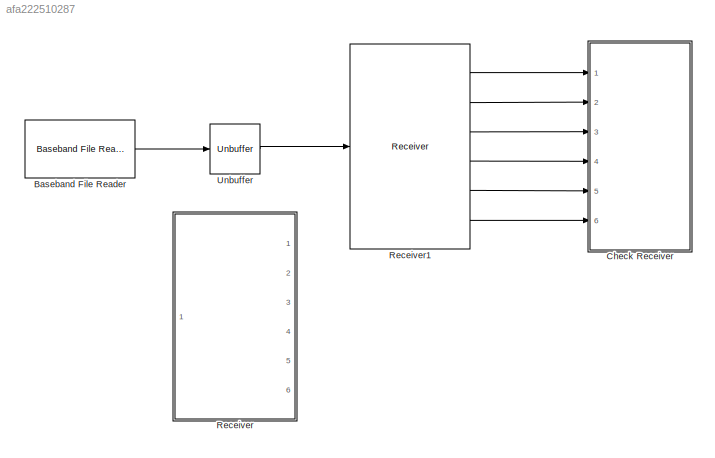
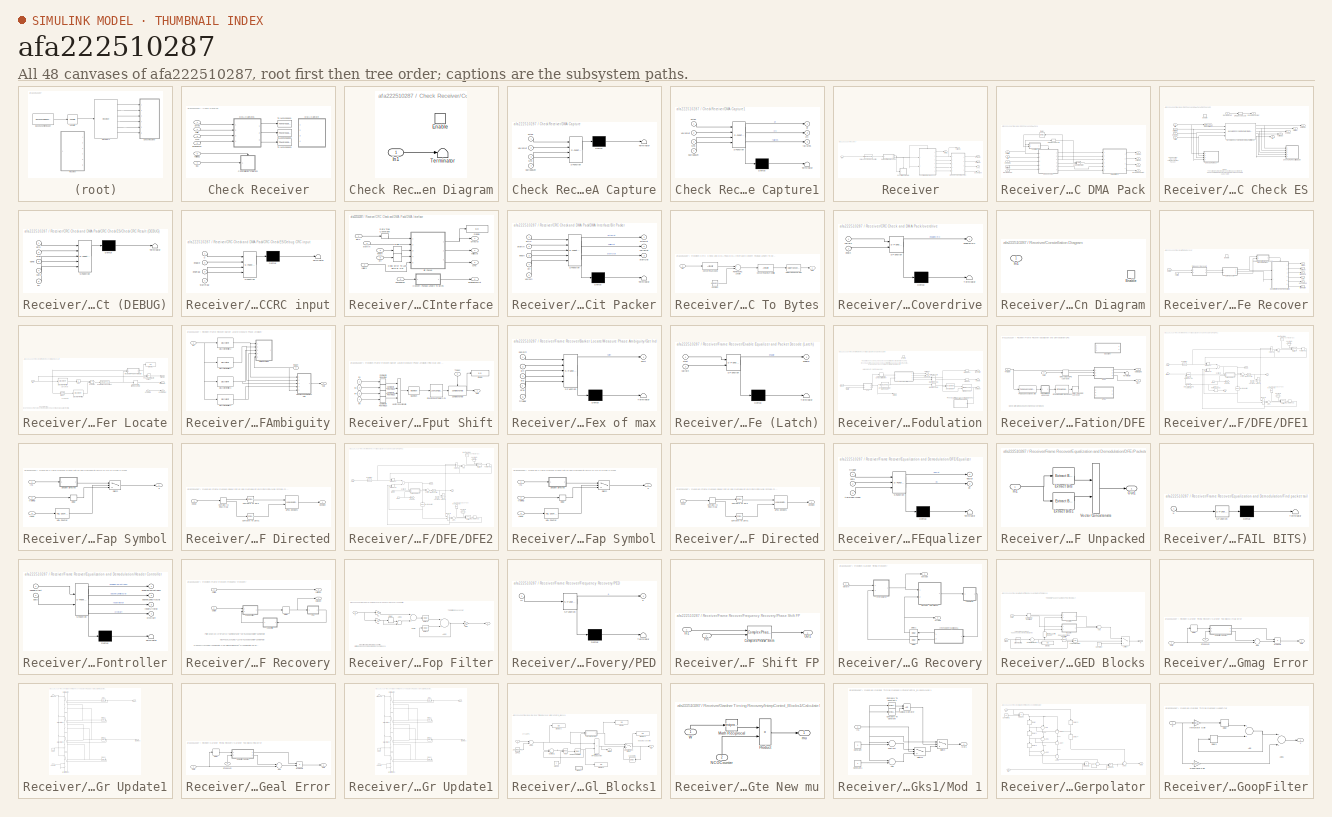
[diagram: thumbnail index - all 48 canvases of the model, root first then tree order]
MODEL slx_afa222510287
KIND model
CONFIG AbsTol = auto
CONFIG EnableMultiTasking = off
CONFIG FixedStep = auto
CONFIG InitFcn = modelSettingsFloat
CONFIG MaxStep = auto
CONFIG MinStep = auto
CONFIG RelTol = 1e-3
CONFIG SampleTimeConstraint = Unconstrained
CONFIG Solver = FixedStepDiscrete
CONFIG SolverName = FixedStepDiscrete
CONFIG StartTime = 0.0
CONFIG StopTime = 0.052263
BLOCK [Reference] Baseband File Reader  REF=commsource2/Baseband File Reader
  Ports = [0, 1]
  SourceBlock = commsource2/Baseband File Reader
  SourceProductBaseCode = CM
  SourceProductName = Communications System Toolbox
  SourceType = Baseband File Reader
BLOCK [SubSystem] Check Receiver
  Ports = [6]
  RequestExecContextInheritance = off
  Variant = off
BLOCK [SubSystem] Check Receiver/Constellation Diagram
  Ports = [1, 0, 1]
  RequestExecContextInheritance = off
  Variant = off
BLOCK [EnablePort] Check Receiver/Constellation Diagram/Enable
  Ports = []
BLOCK [Inport] Check Receiver/Constellation Diagram/In1
  IconDisplay = Port number
BLOCK [Terminator] Check Receiver/Constellation Diagram/Terminator
BLOCK [SubSystem] Check Receiver/DMA Capture
  Commented = on
  ErrorFcn = Stateflow.Translate.translate
  PermitHierarchicalResolution = ExplicitOnly
  Ports = [4]
  RequestExecContextInheritance = off
  SFBlockType = MATLAB Function
  TreatAsAtomicUnit = on
  Variant = off
BLOCK [Demux] Check Receiver/DMA Capture/ Demux 
  Outputs = 1
  Ports = [1, 1]
BLOCK [S-Function] Check Receiver/DMA Capture/ SFunction 
  EnableBusSupport = on
  FunctionName = sf_sfun
  PortCounts = [4 1]
  Ports = [4, 1]
  SFcnIsStateOwnerBlock = off
  SFunctionDeploymentMode = off
  Tag = Stateflow S-Function Receiver_UnderTest_Float 3
BLOCK [Terminator] Check Receiver/DMA Capture/ Terminator 
BLOCK [Inport] Check Receiver/DMA Capture/bytes
  IconDisplay = Port number
BLOCK [Inport] Check Receiver/DMA Capture/payloadLen
  IconDisplay = Port number
  Port = 4
BLOCK [Inport] Check Receiver/DMA Capture/sync
  IconDisplay = Port number
  Port = 3
BLOCK [Inport] Check Receiver/DMA Capture/validOut
  IconDisplay = Port number
  Port = 2
BLOCK [SubSystem] Check Receiver/DMA Capture1
  ErrorFcn = Stateflow.Translate.translate
  PermitHierarchicalResolution = ExplicitOnly
  Ports = [4, 3]
  RequestExecContextInheritance = off
  SFBlockType = MATLAB Function
  TreatAsAtomicUnit = on
  Variant = off
BLOCK [Demux] Check Receiver/DMA Capture1/ Demux 
  Outputs = 1
  Ports = [1, 1]
BLOCK [S-Function] Check Receiver/DMA Capture1/ SFunction 
  EnableBusSupport = on
  FunctionName = sf_sfun
  PortCounts = [4 4]
  Ports = [4, 4]
  SFcnIsStateOwnerBlock = off
  SFunctionDeploymentMode = off
  Tag = Stateflow S-Function Receiver_UnderTest_Float 7
BLOCK [Terminator] Check Receiver/DMA Capture1/ Terminator 
BLOCK [Inport] Check Receiver/DMA Capture1/bytes
  IconDisplay = Port number
BLOCK [Outport] Check Receiver/DMA Capture1/crc
  IconDisplay = Port number
  Port = 2
BLOCK [Outport] Check Receiver/DMA Capture1/failures
  IconDisplay = Port number
  Port = 3
BLOCK [Inport] Check Receiver/DMA Capture1/payloadLen
  IconDisplay = Port number
  Port = 4
BLOCK [Outport] Check Receiver/DMA Capture1/pf
  IconDisplay = Port number
BLOCK [Inport] Check Receiver/DMA Capture1/sync
  IconDisplay = Port number
  Port = 3
BLOCK [Inport] Check Receiver/DMA Capture1/validOut
  IconDisplay = Port number
  Port = 2
BLOCK [Inport] Check Receiver/EQ
  IconDisplay = Port number
BLOCK [ToWorkspace] Check Receiver/To Workspace1
  FixptAsFi = on
  MaxDataPoints = inf
  Ports = [1]
  SampleTime = -1
  Save2DSignal = 3-D array (concatenate along third dimension)
  SaveFormat = Timeseries
  VariableName = packetsFound
BLOCK [ToWorkspace] Check Receiver/To Workspace2
  FixptAsFi = on
  MaxDataPoints = inf
  Ports = [1]
  SampleTime = -1
  Save2DSignal = 3-D array (concatenate along third dimension)
  SaveFormat = Timeseries
  VariableName = crcChecks
BLOCK [ToWorkspace] Check Receiver/To Workspace3
  FixptAsFi = on
  MaxDataPoints = inf
  Ports = [1]
  SampleTime = -1
  Save2DSignal = 3-D array (concatenate along third dimension)
  SaveFormat = Timeseries
  VariableName = failures
BLOCK [Inport] Check Receiver/bytes
  IconDisplay = Port number
  Port = 4
BLOCK [Inport] Check Receiver/payloadLen
  IconDisplay = Port number
  Port = 5
BLOCK [Inport] Check Receiver/sync
  IconDisplay = Port number
  Port = 3
BLOCK [Inport] Check Receiver/valid
  IconDisplay = Port number
  Port = 2
BLOCK [Inport] Check Receiver/validEQ
  IconDisplay = Port number
  Port = 6
BLOCK [SubSystem] Receiver
  Commented = on
  Ports = [1, 6]
  RequestExecContextInheritance = off
  Variant = off
BLOCK [Outport] Receiver/AfterEQ
  IconDisplay = Port number
BLOCK [SubSystem] Receiver/CRC Check and DMA Pack
  Ports = [5, 4]
  RequestExecContextInheritance = off
  Variant = off
BLOCK [SubSystem] Receiver/CRC Check and DMA Pack/CRC Check ES
  Ports = [5, 6, 1]
  RequestExecContextInheritance = off
  Variant = off
BLOCK [Inport] Receiver/CRC Check and DMA Pack/CRC Check ES/Bits
  IconDisplay = Port number
  Port = 2
BLOCK [Delay] Receiver/CRC Check and DMA Pack/CRC Check ES/CRC Decode Lag
  DelayLength = crcDecodeLag
  InputPortMap = u0
  Ports = [1, 1]
BLOCK [SubSystem] Receiver/CRC Check and DMA Pack/CRC Check ES/Check CRC Result (DEBUG)
  Commented = on
  ErrorFcn = Stateflow.Translate.translate
  PermitHierarchicalResolution = ExplicitOnly
  Ports = [5]
  RequestExecContextInheritance = off
  SFBlockType = MATLAB Function
  TreatAsAtomicUnit = on
  Variant = off
BLOCK [Demux] Receiver/CRC Check and DMA Pack/CRC Check ES/Check CRC Result (DEBUG)/ Demux 
  Outputs = 1
  Ports = [1, 1]
BLOCK [S-Function] Receiver/CRC Check and DMA Pack/CRC Check ES/Check CRC Result (DEBUG)/ SFunction 
  EnableBusSupport = on
  FunctionName = sf_sfun
  PortCounts = [5 1]
  Ports = [5, 1]
  SFcnIsStateOwnerBlock = off
  SFunctionDeploymentMode = off
  Tag = Stateflow S-Function Receiver_UnderTest_Float 4
BLOCK [Terminator] Receiver/CRC Check and DMA Pack/CRC Check ES/Check CRC Result (DEBUG)/ Terminator 
BLOCK [Inport] Receiver/CRC Check and DMA Pack/CRC Check ES/Check CRC Result (DEBUG)/bits
  IconDisplay = Port number
BLOCK [Inport] Receiver/CRC Check and DMA Pack/CRC Check ES/Check CRC Result (DEBUG)/done
  IconDisplay = Port number
  Port = 3
BLOCK [Inport] Receiver/CRC Check and DMA Pack/CRC Check ES/Check CRC Result (DEBUG)/err
  IconDisplay = Port number
  Port = 5
BLOCK [Inport] Receiver/CRC Check and DMA Pack/CRC Check ES/Check CRC Result (DEBUG)/start
  IconDisplay = Port number
  Port = 2
BLOCK [Inport] Receiver/CRC Check and DMA Pack/CRC Check ES/Check CRC Result (DEBUG)/valid
  IconDisplay = Port number
  Port = 4
BLOCK [DataTypeConversion] Receiver/CRC Check and DMA Pack/CRC Check ES/Convert To fi
  OutDataTypeStr = fixdt(0,1,0)
  RndMeth = Floor
BLOCK [SubSystem] Receiver/CRC Check and DMA Pack/CRC Check ES/Debug CRC input
  Commented = on
  ErrorFcn = Stateflow.Translate.translate
  PermitHierarchicalResolution = ExplicitOnly
  Ports = [4]
  RequestExecContextInheritance = off
  SFBlockType = MATLAB Function
  TreatAsAtomicUnit = on
  Variant = off
BLOCK [Demux] Receiver/CRC Check and DMA Pack/CRC Check ES/Debug CRC input/ Demux 
  Outputs = 1
  Ports = [1, 1]
BLOCK [S-Function] Receiver/CRC Check and DMA Pack/CRC Check ES/Debug CRC input/ SFunction 
  EnableBusSupport = on
  FunctionName = sf_sfun
  PortCounts = [4 1]
  Ports = [4, 1]
  SFcnIsStateOwnerBlock = off
  SFunctionDeploymentMode = off
  Tag = Stateflow S-Function Receiver_UnderTest_Float 1
BLOCK [Terminator] Receiver/CRC Check and DMA Pack/CRC Check ES/Debug CRC input/ Terminator 
BLOCK [Inport] Receiver/CRC Check and DMA Pack/CRC Check ES/Debug CRC input/enable
  IconDisplay = Port number
  Port = 2
BLOCK [Inport] Receiver/CRC Check and DMA Pack/CRC Check ES/Debug CRC input/endFlag
  IconDisplay = Port number
  Port = 3
BLOCK [Inport] Receiver/CRC Check and DMA Pack/CRC Check ES/Debug CRC input/startFlag
  IconDisplay = Port number
  Port = 4
BLOCK [Inport] Receiver/CRC Check and DMA Pack/CRC Check ES/Debug CRC input/u
  IconDisplay = Port number
BLOCK [EnablePort] Receiver/CRC Check and DMA Pack/CRC Check ES/Enable
  Ports = []
BLOCK [Reference] Receiver/CRC Check and DMA Pack/CRC Check ES/General CRC Syndrom Detector HDL Optimized  REF=commcrc2/General CRC
Syndrome
Detector
HDL Optimized
  Ports = [4, 5]
  SourceBlock = commcrc2/General CRC\nSyndrome\nDetector\nHDL Optimized
  SourceProductBaseCode = CM
  SourceProductName = Communications System Toolbox
  SourceType = General CRC Syndrome Detector HDL Optimized
BLOCK [Inport] Receiver/CRC Check and DMA Pack/CRC Check ES/StartData
  IconDisplay = Port number
  Port = 4
BLOCK [Inport] Receiver/CRC Check and DMA Pack/CRC Check ES/Valid
  IconDisplay = Port number
BLOCK [Outport] Receiver/CRC Check and DMA Pack/CRC Check ES/dataOut
  IconDisplay = Port number
  InitialOutput = 0
BLOCK [Inport] Receiver/CRC Check and DMA Pack/CRC Check ES/endCRC
  IconDisplay = Port number
  Port = 3
BLOCK [Outport] Receiver/CRC Check and DMA Pack/CRC Check ES/endOut
  IconDisplay = Port number
  InitialOutput = 0
  Port = 3
BLOCK [Outport] Receiver/CRC Check and DMA Pack/CRC Check ES/err
  IconDisplay = Port number
  InitialOutput = 0
  Port = 5
BLOCK [Inport] Receiver/CRC Check and DMA Pack/CRC Check ES/payloadLen
  IconDisplay = Port number
  Port = 5
BLOCK [Outport] Receiver/CRC Check and DMA Pack/CRC Check ES/payloadLenOut
  IconDisplay = Port number
  InitialOutput = 0
  Port = 6
BLOCK [Outport] Receiver/CRC Check and DMA Pack/CRC Check ES/startOut
  IconDisplay = Port number
  InitialOutput = 0
  Port = 2
BLOCK [Outport] Receiver/CRC Check and DMA Pack/CRC Check ES/validOut
  IconDisplay = Port number
  InitialOutput = 0
  Port = 4
BLOCK [Delay] Receiver/CRC Check and DMA Pack/CRC Decode Lag
  DelayLength = crcDecodeLag+2
  InputPortMap = u0
  Ports = [1, 1]
BLOCK [SubSystem] Receiver/CRC Check and DMA Pack/DMA Interface
  Ports = [6, 4]
  RequestExecContextInheritance = off
  Variant = off
BLOCK [SubSystem] Receiver/CRC Check and DMA Pack/DMA Interface/Bit Packer
  ErrorFcn = Stateflow.Translate.translate
  PermitHierarchicalResolution = ExplicitOnly
  Ports = [5, 3]
  RequestExecContextInheritance = off
  SFBlockType = MATLAB Function
  TreatAsAtomicUnit = on
  Variant = off
BLOCK [Demux] Receiver/CRC Check and DMA Pack/DMA Interface/Bit Packer/ Demux 
  Outputs = 1
  Ports = [1, 1]
BLOCK [S-Function] Receiver/CRC Check and DMA Pack/DMA Interface/Bit Packer/ SFunction 
  EnableBusSupport = on
  FunctionName = sf_sfun
  PortCounts = [5 4]
  Ports = [5, 4]
  SFcnIsStateOwnerBlock = off
  SFunctionDeploymentMode = off
  Tag = Stateflow S-Function Receiver_UnderTest_Float 10
BLOCK [Terminator] Receiver/CRC Check and DMA Pack/DMA Interface/Bit Packer/ Terminator 
BLOCK [Inport] Receiver/CRC Check and DMA Pack/DMA Interface/Bit Packer/bitIn
  IconDisplay = Port number
BLOCK [Outport] Receiver/CRC Check and DMA Pack/DMA Interface/Bit Packer/byteOut
  IconDisplay = Port number
BLOCK [Inport] Receiver/CRC Check and DMA Pack/DMA Interface/Bit Packer/endIn
  IconDisplay = Port number
  Port = 3
BLOCK [Inport] Receiver/CRC Check and DMA Pack/DMA Interface/Bit Packer/err
  IconDisplay = Port number
  Port = 4
BLOCK [Inport] Receiver/CRC Check and DMA Pack/DMA Interface/Bit Packer/startIn
  IconDisplay = Port number
  Port = 2
BLOCK [Outport] Receiver/CRC Check and DMA Pack/DMA Interface/Bit Packer/startOut
  IconDisplay = Port number
  Port = 3
BLOCK [Inport] Receiver/CRC Check and DMA Pack/DMA Interface/Bit Packer/validIn
  IconDisplay = Port number
  Port = 5
BLOCK [Outport] Receiver/CRC Check and DMA Pack/DMA Interface/Bit Packer/validOut
  IconDisplay = Port number
  Port = 2
BLOCK [SubSystem] Receiver/CRC Check and DMA Pack/DMA Interface/Convert Payload Length To Bytes
  Ports = [1, 1]
  RequestExecContextInheritance = off
  Variant = off
BLOCK [Constant] Receiver/CRC Check and DMA Pack/DMA Interface/Convert Payload Length To Bytes/Constant
  SampleTime = -1
  Value = uint16(32-1)
BLOCK [ArithShift] Receiver/CRC Check and DMA Pack/DMA Interface/Convert Payload Length To Bytes/Convert To Bytes From Bits
  BitShiftDirection = Right
  BitShiftNumber = 3
  InputPortMap = u0
  Ports = [1, 1]
BLOCK [ArithShift] Receiver/CRC Check and DMA Pack/DMA Interface/Convert Payload Length To Bytes/Convert To Uncoded
  BitShiftDirection = Right
  BitShiftNumber = 1
  InputPortMap = u0
  Ports = [1, 1]
BLOCK [DataTypeConversion] Receiver/CRC Check and DMA Pack/DMA Interface/Convert Payload Length To Bytes/Data Type Conversion
  OutDataTypeStr = int16
  RndMeth = Floor
  SaturateOnIntegerOverflow = off
BLOCK [Inport] Receiver/CRC Check and DMA Pack/DMA Interface/Convert Payload Length To Bytes/In1
  IconDisplay = Port number
BLOCK [Outport] Receiver/CRC Check and DMA Pack/DMA Interface/Convert Payload Length To Bytes/Out1
  IconDisplay = Port number
BLOCK [Sum] Receiver/CRC Check and DMA Pack/DMA Interface/Convert Payload Length To Bytes/Remove CRC Length
  AccumDataTypeStr = uint16
  InputSameDT = off
  Inputs = +-
  OutDataTypeStr = Inherit: Inherit via internal rule
  Ports = [2, 1]
  SaturateOnIntegerOverflow = off
BLOCK [DataTypeConversion] Receiver/CRC Check and DMA Pack/DMA Interface/Data Type Conversion
  OutDataTypeStr = boolean
  RndMeth = Floor
  SaturateOnIntegerOverflow = off
BLOCK [Delay] Receiver/CRC Check and DMA Pack/DMA Interface/Delay
  DelayLength = 1
  InputPortMap = u0
  Ports = [1, 1]
BLOCK [Delay] Receiver/CRC Check and DMA Pack/DMA Interface/Delay Error To Last Byte of Out
  DelayLength = 1
  InputPortMap = u0
  Ports = [1, 1]
BLOCK [Display] Receiver/CRC Check and DMA Pack/DMA Interface/Display
  Decimation = 1
  Ports = [1]
BLOCK [Inport] Receiver/CRC Check and DMA Pack/DMA Interface/bitIn
  IconDisplay = Port number
BLOCK [Outport] Receiver/CRC Check and DMA Pack/DMA Interface/byteOut
  IconDisplay = Port number
BLOCK [Inport] Receiver/CRC Check and DMA Pack/DMA Interface/endIn
  IconDisplay = Port number
  Port = 3
BLOCK [Inport] Receiver/CRC Check and DMA Pack/DMA Interface/err
  IconDisplay = Port number
  Port = 5
BLOCK [Inport] Receiver/CRC Check and DMA Pack/DMA Interface/payloadLen
  IconDisplay = Port number
  Port = 6
BLOCK [Outport] Receiver/CRC Check and DMA Pack/DMA Interface/payloadLenOut
  IconDisplay = Port number
  Port = 4
BLOCK [Inport] Receiver/CRC Check and DMA Pack/DMA Interface/startIn
  IconDisplay = Port number
  Port = 2
BLOCK [Outport] Receiver/CRC Check and DMA Pack/DMA Interface/sync
  IconDisplay = Port number
  Port = 3
BLOCK [Inport] Receiver/CRC Check and DMA Pack/DMA Interface/validIn
  IconDisplay = Port number
  Port = 4
BLOCK [Outport] Receiver/CRC Check and DMA Pack/DMA Interface/validOut
  IconDisplay = Port number
  Port = 2
BLOCK [Delay] Receiver/CRC Check and DMA Pack/Delay
  DelayLength = 1
  InputPortMap = u0
  Ports = [1, 1]
BLOCK [Logic] Receiver/CRC Check and DMA Pack/Logical Operator
  AllPortsSameDT = off
  OutDataTypeStr = boolean
  Ports = [2, 1]
BLOCK [Inport] Receiver/CRC Check and DMA Pack/bits
  IconDisplay = Port number
  Port = 2
BLOCK [Outport] Receiver/CRC Check and DMA Pack/byteOut
  IconDisplay = Port number
BLOCK [Inport] Receiver/CRC Check and DMA Pack/endCRC
  IconDisplay = Port number
  Port = 4
BLOCK [SubSystem] Receiver/CRC Check and DMA Pack/overdrive
  ErrorFcn = Stateflow.Translate.translate
  PermitHierarchicalResolution = ExplicitOnly
  Ports = [2, 1]
  RequestExecContextInheritance = off
  SFBlockType = MATLAB Function
  TreatAsAtomicUnit = on
  Variant = off
BLOCK [Demux] Receiver/CRC Check and DMA Pack/overdrive/ Demux 
  Outputs = 1
  Ports = [1, 1]
BLOCK [S-Function] Receiver/CRC Check and DMA Pack/overdrive/ SFunction 
  EnableBusSupport = on
  FunctionName = sf_sfun
  PortCounts = [2 2]
  Ports = [2, 2]
  SFcnIsStateOwnerBlock = off
  SFunctionDeploymentMode = off
  Tag = Stateflow S-Function Receiver_UnderTest_Float 14
BLOCK [Terminator] Receiver/CRC Check and DMA Pack/overdrive/ Terminator 
BLOCK [Outport] Receiver/CRC Check and DMA Pack/overdrive/enableCRC
  IconDisplay = Port number
BLOCK [Inport] Receiver/CRC Check and DMA Pack/overdrive/endIn
  IconDisplay = Port number
  Port = 2
BLOCK [Inport] Receiver/CRC Check and DMA Pack/overdrive/validIn
  IconDisplay = Port number
BLOCK [Inport] Receiver/CRC Check and DMA Pack/payloadLen
  IconDisplay = Port number
  Port = 5
BLOCK [Outport] Receiver/CRC Check and DMA Pack/payloadLenOut
  IconDisplay = Port number
  Port = 4
BLOCK [Inport] Receiver/CRC Check and DMA Pack/startData
  IconDisplay = Port number
  Port = 3
BLOCK [Outport] Receiver/CRC Check and DMA Pack/sync
  IconDisplay = Port number
  Port = 3
BLOCK [Inport] Receiver/CRC Check and DMA Pack/validIn
  IconDisplay = Port number
BLOCK [Outport] Receiver/CRC Check and DMA Pack/validOut
  IconDisplay = Port number
  Port = 2
BLOCK [SubSystem] Receiver/Constellation Diagram
  Ports = [1, 0, 1]
  RequestExecContextInheritance = off
  Variant = off
BLOCK [EnablePort] Receiver/Constellation Diagram/Enable
  Ports = []
BLOCK [Inport] Receiver/Constellation Diagram/In1
  IconDisplay = Port number
BLOCK [SubSystem] Receiver/Frame Recover
  Ports = [2, 6, 1]
  RequestExecContextInheritance = off
  Variant = off
BLOCK [Outport] Receiver/Frame Recover/AfterEQ
  IconDisplay = Port number
BLOCK [SubSystem] Receiver/Frame Recover/Barker Locate
  Ports = [2, 3]
  RequestExecContextInheritance = off
  Variant = off
BLOCK [Abs] Receiver/Frame Recover/Barker Locate/Abs
  SaturateOnIntegerOverflow = off
BLOCK [Reference] Receiver/Frame Recover/Barker Locate/Compare To Constant  REF=simulink/Logic and Bit
Operations/Compare
To Constant
  Ports = [1, 1]
  SourceBlock = simulink/Logic and Bit\nOperations/Compare\nTo Constant
  SourceProductBaseCode = SL
  SourceProductName = Simulink
  SourceType = Compare To Constant
BLOCK [Delay] Receiver/Frame Recover/Barker Locate/Delay to start training sample 
  DelayLength = 1
  InputPortMap = u0
  Ports = [1, 1]
BLOCK [Outport] Receiver/Frame Recover/Barker Locate/Detector
  IconDisplay = Port number
BLOCK [DiscreteFir] Receiver/Frame Recover/Barker Locate/Discrete FIR Filter
  AccumDataTypeStr = Inherit: Same as product output
  Coefficients = xPreambleSeq(end:-1:1).'
  InputPortMap = u0
  OutDataTypeStr = Inherit: Same as input
  OutputPortMap = o0
  Ports = [1, 1]
BLOCK [DiscreteFir] Receiver/Frame Recover/Barker Locate/Discrete FIR Filter1
  AccumDataTypeStr = Inherit: Same as product output
  Coefficients = ones(1,length(xPreambleSeq)*1)/1
  InitialStates = 1
  InputPortMap = u0
  OutDataTypeStr = Inherit: Same as input
  OutputPortMap = o0
  Ports = [1, 1]
BLOCK [Display] Receiver/Frame Recover/Barker Locate/Display
  Decimation = 1
  Ports = [1]
BLOCK [Inport] Receiver/Frame Recover/Barker Locate/In1
  IconDisplay = Port number
BLOCK [Math] Receiver/Frame Recover/Barker Locate/Mag2
  Operator = magnitude^2
  Ports = [1, 1]
BLOCK [SubSystem] Receiver/Frame Recover/Barker Locate/Measure Phase Ambiguity
  Ports = [2, 1]
  RequestExecContextInheritance = off
  Variant = off
BLOCK [DiscreteFir] Receiver/Frame Recover/Barker Locate/Measure Phase Ambiguity/Discrete FIR Filter1
  AccumDataTypeStr = Inherit: Same as product output
  Coefficients = exp(-j*pi/2).*xPreambleSeq(end:-1:1).'
  InputPortMap = u0
  InputProcessing = Columns as channels (frame based)
  OutDataTypeStr = Inherit: Same as input
  OutputPortMap = o0
  Ports = [1, 1]
BLOCK [DiscreteFir] Receiver/Frame Recover/Barker Locate/Measure Phase Ambiguity/Discrete FIR Filter2
  AccumDataTypeStr = Inherit: Same as product output
  Coefficients = xPreambleSeq(end:-1:1).'
  InputPortMap = u0
  InputProcessing = Columns as channels (frame based)
  OutDataTypeStr = Inherit: Same as input
  OutputPortMap = o0
  Ports = [1, 1]
BLOCK [DiscreteFir] Receiver/Frame Recover/Barker Locate/Measure Phase Ambiguity/Discrete FIR Filter3
  AccumDataTypeStr = Inherit: Same as product output
  Coefficients = exp(-j*pi).*xPreambleSeq(end:-1:1).'
  InputPortMap = u0
  InputProcessing = Columns as channels (frame based)
  OutDataTypeStr = Inherit: Same as input
  OutputPortMap = o0
  Ports = [1, 1]
BLOCK [DiscreteFir] Receiver/Frame Recover/Barker Locate/Measure Phase Ambiguity/Discrete FIR Filter4
  AccumDataTypeStr = Inherit: Same as product output
  Coefficients = exp(-j*pi*3/2).*xPreambleSeq(end:-1:1).'
  InputPortMap = u0
  InputProcessing = Columns as channels (frame based)
  OutDataTypeStr = Inherit: Same as input
  OutputPortMap = o0
  Ports = [1, 1]
BLOCK [SubSystem] Receiver/Frame Recover/Barker Locate/Measure Phase Ambiguity/Find Max and Set Output Shift
  Ports = [5, 1]
  RequestExecContextInheritance = off
  Variant = off
BLOCK [ComplexToRealImag] Receiver/Frame Recover/Barker Locate/Measure Phase Ambiguity/Find Max and Set Output Shift/Complex to Real-Imag
  Output = Imag
  Ports = [1, 1]
BLOCK [ComplexToRealImag] Receiver/Frame Recover/Barker Locate/Measure Phase Ambiguity/Find Max and Set Output Shift/Complex to Real-Imag1
  Output = Imag
  Ports = [1, 1]
BLOCK [ComplexToRealImag] Receiver/Frame Recover/Barker Locate/Measure Phase Ambiguity/Find Max and Set Output Shift/Complex to Real-Imag2
  Output = Imag
  Ports = [1, 1]
BLOCK [ComplexToRealImag] Receiver/Frame Recover/Barker Locate/Measure Phase Ambiguity/Find Max and Set Output Shift/Complex to Real-Imag3
  Output = Imag
  Ports = [1, 1]
BLOCK [LookupNDDirect] Receiver/Frame Recover/Barker Locate/Measure Phase Ambiguity/Find Max and Set Output Shift/Direct Lookup Table (n-D)
  DiagnosticForOutOfRangeInput = Error
  NumberOfTableDimensions = 1
  Ports = [1, 1]
  Table = exp(-(0:pi/2:(pi*3/2)) .* 1i).'
BLOCK [Display] Receiver/Frame Recover/Barker Locate/Measure Phase Ambiguity/Find Max and Set Output Shift/Display
  Decimation = 1
  Ports = [1]
BLOCK [Inport] Receiver/Frame Recover/Barker Locate/Measure Phase Ambiguity/Find Max and Set Output Shift/In1
  IconDisplay = Port number
BLOCK [Inport] Receiver/Frame Recover/Barker Locate/Measure Phase Ambiguity/Find Max and Set Output Shift/In2
  IconDisplay = Port number
  Port = 2
BLOCK [Inport] Receiver/Frame Recover/Barker Locate/Measure Phase Ambiguity/Find Max and Set Output Shift/In4
  IconDisplay = Port number
  Port = 3
BLOCK [Inport] Receiver/Frame Recover/Barker Locate/Measure Phase Ambiguity/Find Max and Set Output Shift/In5
  IconDisplay = Port number
  Port = 4
BLOCK [Reference] Receiver/Frame Recover/Barker Locate/Measure Phase Ambiguity/Find Max and Set Output Shift/Maximum  REF=dspstat3/Maximum
  Ports = [1, 1]
  SourceBlock = dspstat3/Maximum
  SourceProductBaseCode = DS
  SourceProductName = DSP System Toolbox
  SourceType = Maximum
  UserDataPersistent = on
BLOCK [Outport] Receiver/Frame Recover/Barker Locate/Measure Phase Ambiguity/Find Max and Set Output Shift/Out1
  IconDisplay = Port number
BLOCK [Reference] Receiver/Frame Recover/Barker Locate/Measure Phase Ambiguity/Find Max and Set Output Shift/Sample and Hold  REF=dspsigops/Sample
and Hold
  Ports = [1, 1, 0, 1]
  SourceBlock = dspsigops/Sample\nand Hold
  SourceProductBaseCode = DS
  SourceProductName = DSP System Toolbox
  SourceType = Sample and Hold
BLOCK [Inport] Receiver/Frame Recover/Barker Locate/Measure Phase Ambiguity/Find Max and Set Output Shift/Trigger
  IconDisplay = Port number
  Port = 5
BLOCK [Concatenate] Receiver/Frame Recover/Barker Locate/Measure Phase Ambiguity/Find Max and Set Output Shift/Vector Concatenate
  NumInputs = 4
  Ports = [4, 1]
BLOCK [SubSystem] Receiver/Frame Recover/Barker Locate/Measure Phase Ambiguity/Get Index of max
  Commented = on
  ErrorFcn = Stateflow.Translate.translate
  PermitHierarchicalResolution = ExplicitOnly
  Ports = [5, 1]
  RequestExecContextInheritance = off
  SFBlockType = MATLAB Function
  TreatAsAtomicUnit = on
  Variant = off
BLOCK [Demux] Receiver/Frame Recover/Barker Locate/Measure Phase Ambiguity/Get Index of max/ Demux 
  Outputs = 1
  Ports = [1, 1]
BLOCK [S-Function] Receiver/Frame Recover/Barker Locate/Measure Phase Ambiguity/Get Index of max/ SFunction 
  EnableBusSupport = on
  FunctionName = sf_sfun
  PortCounts = [5 2]
  Ports = [5, 2]
  SFcnIsStateOwnerBlock = off
  SFunctionDeploymentMode = off
  Tag = Stateflow S-Function Receiver_UnderTest_Float 8
BLOCK [Terminator] Receiver/Frame Recover/Barker Locate/Measure Phase Ambiguity/Get Index of max/ Terminator 
BLOCK [Inport] Receiver/Frame Recover/Barker Locate/Measure Phase Ambiguity/Get Index of max/noShift
  IconDisplay = Port number
BLOCK [Inport] Receiver/Frame Recover/Barker Locate/Measure Phase Ambiguity/Get Index of max/pi2
  IconDisplay = Port number
  Port = 3
BLOCK [Inport] Receiver/Frame Recover/Barker Locate/Measure Phase Ambiguity/Get Index of max/pi34
  IconDisplay = Port number
  Port = 4
BLOCK [Inport] Receiver/Frame Recover/Barker Locate/Measure Phase Ambiguity/Get Index of max/pi4
  IconDisplay = Port number
  Port = 2
BLOCK [Outport] Receiver/Frame Recover/Barker Locate/Measure Phase Ambiguity/Get Index of max/shift
  IconDisplay = Port number
BLOCK [Inport] Receiver/Frame Recover/Barker Locate/Measure Phase Ambiguity/Get Index of max/trigger
  IconDisplay = Port number
  Port = 5
BLOCK [Inport] Receiver/Frame Recover/Barker Locate/Measure Phase Ambiguity/In1
  IconDisplay = Port number
BLOCK [Outport] Receiver/Frame Recover/Barker Locate/Measure Phase Ambiguity/Out1
  IconDisplay = Port number
BLOCK [Inport] Receiver/Frame Recover/Barker Locate/Measure Phase Ambiguity/trigger
  IconDisplay = Port number
  Port = 2
BLOCK [Product] Receiver/Frame Recover/Barker Locate/Normalize
  InputSameDT = off
  Inputs = */
  OutDataTypeStr = Inherit: Inherit via internal rule
  Ports = [2, 1]
  RndMeth = Floor
  SaturateOnIntegerOverflow = off
BLOCK [Product] Receiver/Frame Recover/Barker Locate/Phase Ambiguity Correct
  InputSameDT = off
  OutDataTypeStr = Inherit: Inherit via internal rule
  Ports = [2, 1]
  RndMeth = Floor
  SaturateOnIntegerOverflow = off
BLOCK [Outport] Receiver/Frame Recover/Barker Locate/Signal
  IconDisplay = Port number
  Port = 2
BLOCK [Inport] Receiver/Frame Recover/Barker Locate/enableIn
  IconDisplay = Port number
  Port = 2
BLOCK [Outport] Receiver/Frame Recover/Barker Locate/enableOut
  IconDisplay = Port number
  Port = 3
BLOCK [EnablePort] Receiver/Frame Recover/Enable
  Ports = []
BLOCK [SubSystem] Receiver/Frame Recover/Enable Equalizer and Packet Decode (Latch)
  ErrorFcn = Stateflow.Translate.translate
  PermitHierarchicalResolution = ExplicitOnly
  Ports = [2, 1]
  RequestExecContextInheritance = off
  SFBlockType = MATLAB Function
  TreatAsAtomicUnit = on
  Variant = off
BLOCK [Demux] Receiver/Frame Recover/Enable Equalizer and Packet Decode (Latch)/ Demux 
  Outputs = 1
  Ports = [1, 1]
BLOCK [S-Function] Receiver/Frame Recover/Enable Equalizer and Packet Decode (Latch)/ SFunction 
  EnableBusSupport = on
  FunctionName = sf_sfun
  PortCounts = [2 2]
  Ports = [2, 2]
  SFcnIsStateOwnerBlock = off
  SFunctionDeploymentMode = off
  Tag = Stateflow S-Function Receiver_UnderTest_Float 2
BLOCK [Terminator] Receiver/Frame Recover/Enable Equalizer and Packet Decode (Latch)/ Terminator 
BLOCK [Outport] Receiver/Frame Recover/Enable Equalizer and Packet Decode (Latch)/enable
  IconDisplay = Port number
BLOCK [Inport] Receiver/Frame Recover/Enable Equalizer and Packet Decode (Latch)/start
  IconDisplay = Port number
BLOCK [Inport] Receiver/Frame Recover/Enable Equalizer and Packet Decode (Latch)/validIn
  IconDisplay = Port number
  Port = 2
BLOCK [SubSystem] Receiver/Frame Recover/Equalization and Demodulation
  Ports = [2, 6, 1]
  RequestExecContextInheritance = off
  Variant = off
BLOCK [Outport] Receiver/Frame Recover/Equalization and Demodulation/AfterEQ
  IconDisplay = Port number
  InitialOutput = 0
BLOCK [SubSystem] Receiver/Frame Recover/Equalization and Demodulation/DFE
  Ports = [2, 2]
  RequestExecContextInheritance = off
  Variant = off
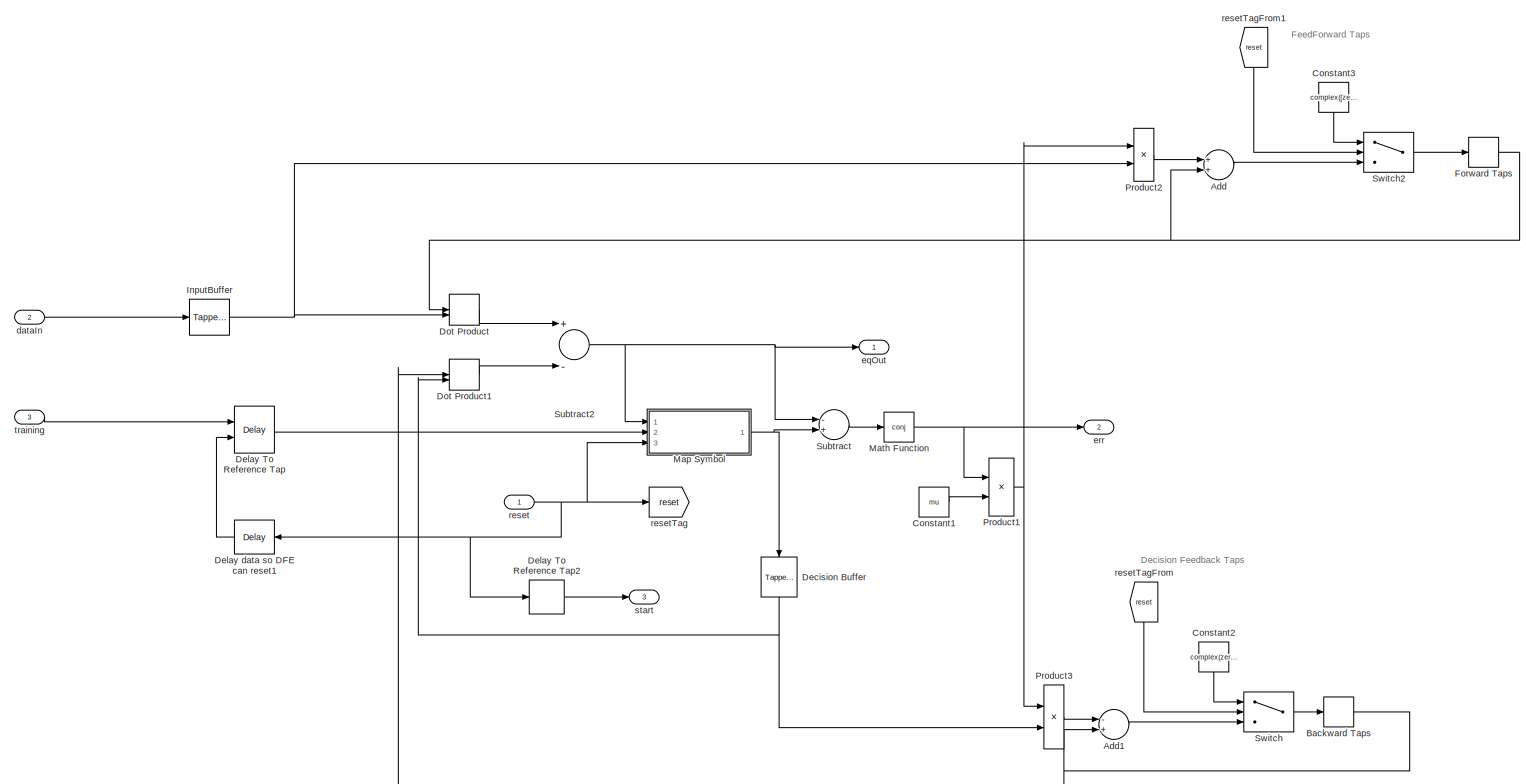
[diagram: Receiver/Frame Recover/Equalization and Demodulation/DFE/DFE1 - part 1/1, most of the canvas]
BLOCK [SubSystem] Receiver/Frame Recover/Equalization and Demodulation/DFE/DFE1
  Ports = [3, 3]
  RequestExecContextInheritance = off
  Variant = off
BLOCK [Sum] Receiver/Frame Recover/Equalization and Demodulation/DFE/DFE1/Add
  InputSameDT = off
  OutDataTypeStr = Inherit: Inherit via internal rule
  Ports = [2, 1]
  SaturateOnIntegerOverflow = off
BLOCK [Sum] Receiver/Frame Recover/Equalization and Demodulation/DFE/DFE1/Add1
  InputSameDT = off
  Inputs = -+
  OutDataTypeStr = Inherit: Inherit via internal rule
  Ports = [2, 1]
  SaturateOnIntegerOverflow = off
BLOCK [Memory] Receiver/Frame Recover/Equalization and Demodulation/DFE/DFE1/Backward Taps
  InheritSampleTime = on
  InitialCondition = complex(zeros(numBTaps,1))
BLOCK [Constant] Receiver/Frame Recover/Equalization and Demodulation/DFE/DFE1/Constant1
  SampleTime = -1
  Value = mu
BLOCK [Constant] Receiver/Frame Recover/Equalization and Demodulation/DFE/DFE1/Constant2
  SampleTime = -1
  Value = complex(zeros(numBTaps,1))
BLOCK [Constant] Receiver/Frame Recover/Equalization and Demodulation/DFE/DFE1/Constant3
  SampleTime = -1
  Value = complex([zeros(numFTaps-1,1);1])
BLOCK [Reference] Receiver/Frame Recover/Equalization and Demodulation/DFE/DFE1/Decision Buffer  REF=simulink/Discrete/Tapped Delay
  Ports = [1, 1]
  SourceBlock = simulink/Discrete/Tapped Delay
  SourceProductBaseCode = SL
  SourceProductName = Simulink
  SourceType = Tapped Delay Line
BLOCK [Delay] Receiver/Frame Recover/Equalization and Demodulation/DFE/DFE1/Delay To Reference Tap
  DelayLength = refTap
  ExternalReset = Level
  InputPortMap = u0,r5
  Ports = [2, 1]
BLOCK [Delay] Receiver/Frame Recover/Equalization and Demodulation/DFE/DFE1/Delay To Reference Tap2
  DelayLength = refTap+1
  InputPortMap = u0
  Ports = [1, 1]
BLOCK [Delay] Receiver/Frame Recover/Equalization and Demodulation/DFE/DFE1/Delay data so DFE can reset1
  DelayLength = 1
  InputPortMap = u0
  Ports = [1, 1]
BLOCK [DotProduct] Receiver/Frame Recover/Equalization and Demodulation/DFE/DFE1/Dot Product
  OutDataTypeStr = Inherit: Inherit via internal rule
  SaturateOnIntegerOverflow = on
BLOCK [DotProduct] Receiver/Frame Recover/Equalization and Demodulation/DFE/DFE1/Dot Product1
  OutDataTypeStr = Inherit: Inherit via internal rule
  SaturateOnIntegerOverflow = on
BLOCK [Memory] Receiver/Frame Recover/Equalization and Demodulation/DFE/DFE1/Forward Taps
  InheritSampleTime = on
  InitialCondition = [complex(zeros(numFTaps-1,1));1]
BLOCK [Reference] Receiver/Frame Recover/Equalization and Demodulation/DFE/DFE1/InputBuffer  REF=simulink/Discrete/Tapped Delay
  Ports = [1, 1]
  SourceBlock = simulink/Discrete/Tapped Delay
  SourceProductBaseCode = SL
  SourceProductName = Simulink
  SourceType = Tapped Delay Line
BLOCK [SubSystem] Receiver/Frame Recover/Equalization and Demodulation/DFE/DFE1/Map Symbol
  Ports = [3, 1]
  RequestExecContextInheritance = off
  Variant = off
BLOCK [SubSystem] Receiver/Frame Recover/Equalization and Demodulation/DFE/DFE1/Map Symbol/Decision Directed
  Ports = [1, 1]
  RequestExecContextInheritance = off
  Variant = off
BLOCK [Reference] Receiver/Frame Recover/Equalization and Demodulation/DFE/DFE1/Map Symbol/Decision Directed/Compare To Zero  REF=simulink/Logic and Bit
Operations/Compare
To Zero
  Ports = [1, 1]
  SourceBlock = simulink/Logic and Bit\nOperations/Compare\nTo Zero
  SourceProductBaseCode = SL
  SourceProductName = Simulink
  SourceType = Compare To Zero
BLOCK [Reference] Receiver/Frame Recover/Equalization and Demodulation/DFE/DFE1/Map Symbol/Decision Directed/Compare To Zero1  REF=simulink/Logic and Bit
Operations/Compare
To Zero
  Ports = [1, 1]
  SourceBlock = simulink/Logic and Bit\nOperations/Compare\nTo Zero
  SourceProductBaseCode = SL
  SourceProductName = Simulink
  SourceType = Compare To Zero
BLOCK [ComplexToRealImag] Receiver/Frame Recover/Equalization and Demodulation/DFE/DFE1/Map Symbol/Decision Directed/Complex to Real-Imag
  Ports = [1, 2]
BLOCK [LookupNDDirect] Receiver/Frame Recover/Equalization and Demodulation/DFE/DFE1/Map Symbol/Decision Directed/QPSK Decisions
  DiagnosticForOutOfRangeInput = Error
  Ports = [2, 1]
  Table = [-0.7071 - 0.7071i, -0.7071 + 0.7071i; 0.7071 - 0.7071i, 0.7071 + 0.7071i]
BLOCK [Outport] Receiver/Frame Recover/Equalization and Demodulation/DFE/DFE1/Map Symbol/Decision Directed/decision
  IconDisplay = Port number
BLOCK [Inport] Receiver/Frame Recover/Equalization and Demodulation/DFE/DFE1/Map Symbol/Decision Directed/eqOut
  IconDisplay = Port number
BLOCK [Delay] Receiver/Frame Recover/Equalization and Demodulation/DFE/DFE1/Map Symbol/Delay
  DelayLength = 1
  InputPortMap = u0
  Ports = [1, 1]
BLOCK [Reference] Receiver/Frame Recover/Equalization and Demodulation/DFE/DFE1/Map Symbol/HDL Counter  REF=hdlsllib/Sources/HDL Counter
  Ports = [1, 1]
  SourceBlock = hdlsllib/Sources/HDL Counter
  SourceProductBaseCode = HD
  SourceProductName = HDL Coder
  SourceType = HDL Counter
BLOCK [Inport] Receiver/Frame Recover/Equalization and Demodulation/DFE/DFE1/Map Symbol/In1
  IconDisplay = Port number
BLOCK [Switch] Receiver/Frame Recover/Equalization and Demodulation/DFE/DFE1/Map Symbol/Switch
  Criteria = u2 > Threshold
  InputSameDT = off
  SaturateOnIntegerOverflow = off
  Threshold = numTrainingSamples
BLOCK [Outport] Receiver/Frame Recover/Equalization and Demodulation/DFE/DFE1/Map Symbol/d
  IconDisplay = Port number
BLOCK [Inport] Receiver/Frame Recover/Equalization and Demodulation/DFE/DFE1/Map Symbol/reset
  IconDisplay = Port number
  Port = 3
BLOCK [Inport] Receiver/Frame Recover/Equalization and Demodulation/DFE/DFE1/Map Symbol/training
  IconDisplay = Port number
  Port = 2
BLOCK [Math] Receiver/Frame Recover/Equalization and Demodulation/DFE/DFE1/Math Function
  Operator = conj
  Ports = [1, 1]
  RndMeth = Zero
BLOCK [Product] Receiver/Frame Recover/Equalization and Demodulation/DFE/DFE1/Product1
  InputSameDT = off
  OutDataTypeStr = Inherit: Inherit via internal rule
  Ports = [2, 1]
  RndMeth = Floor
  SaturateOnIntegerOverflow = off
BLOCK [Product] Receiver/Frame Recover/Equalization and Demodulation/DFE/DFE1/Product2
  InputSameDT = off
  OutDataTypeStr = Inherit: Inherit via internal rule
  Ports = [2, 1]
  RndMeth = Floor
  SaturateOnIntegerOverflow = off
BLOCK [Product] Receiver/Frame Recover/Equalization and Demodulation/DFE/DFE1/Product3
  InputSameDT = off
  OutDataTypeStr = Inherit: Inherit via internal rule
  Ports = [2, 1]
  RndMeth = Floor
  SaturateOnIntegerOverflow = off
BLOCK [Sum] Receiver/Frame Recover/Equalization and Demodulation/DFE/DFE1/Subtract
  InputSameDT = off
  Inputs = -+
  OutDataTypeStr = Inherit: Inherit via internal rule
  Ports = [2, 1]
  SaturateOnIntegerOverflow = off
BLOCK [Sum] Receiver/Frame Recover/Equalization and Demodulation/DFE/DFE1/Subtract2
  InputSameDT = off
  Inputs = +-
  OutDataTypeStr = Inherit: Inherit via internal rule
  Ports = [2, 1]
  SaturateOnIntegerOverflow = off
BLOCK [Switch] Receiver/Frame Recover/Equalization and Demodulation/DFE/DFE1/Switch
  Criteria = u2 > Threshold
  InputSameDT = off
  SaturateOnIntegerOverflow = off
BLOCK [Switch] Receiver/Frame Recover/Equalization and Demodulation/DFE/DFE1/Switch2
  Criteria = u2 > Threshold
  InputSameDT = off
  SaturateOnIntegerOverflow = off
BLOCK [Inport] Receiver/Frame Recover/Equalization and Demodulation/DFE/DFE1/dataIn
  IconDisplay = Port number
  Port = 2
BLOCK [Outport] Receiver/Frame Recover/Equalization and Demodulation/DFE/DFE1/eqOut
  IconDisplay = Port number
BLOCK [Outport] Receiver/Frame Recover/Equalization and Demodulation/DFE/DFE1/err
  IconDisplay = Port number
  Port = 2
BLOCK [Inport] Receiver/Frame Recover/Equalization and Demodulation/DFE/DFE1/reset
  IconDisplay = Port number
BLOCK [Goto] Receiver/Frame Recover/Equalization and Demodulation/DFE/DFE1/resetTag
  GotoTag = reset
BLOCK [From] Receiver/Frame Recover/Equalization and Demodulation/DFE/DFE1/resetTagFrom
  GotoTag = reset
BLOCK [From] Receiver/Frame Recover/Equalization and Demodulation/DFE/DFE1/resetTagFrom1
  GotoTag = reset
BLOCK [Outport] Receiver/Frame Recover/Equalization and Demodulation/DFE/DFE1/start
  IconDisplay = Port number
  Port = 3
BLOCK [Inport] Receiver/Frame Recover/Equalization and Demodulation/DFE/DFE1/training
  IconDisplay = Port number
  Port = 3
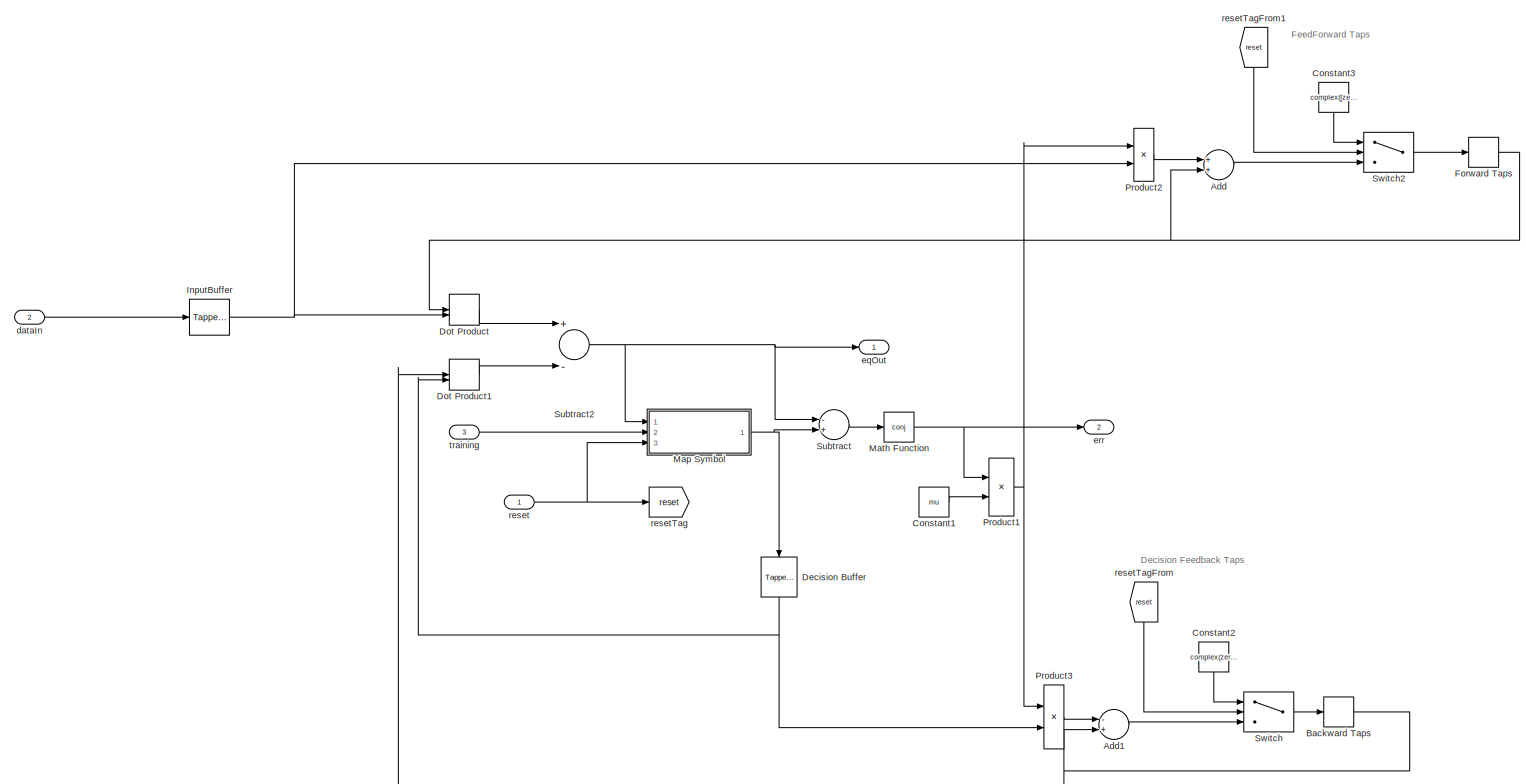
[diagram: Receiver/Frame Recover/Equalization and Demodulation/DFE/DFE2 - part 1/1, most of the canvas]
BLOCK [SubSystem] Receiver/Frame Recover/Equalization and Demodulation/DFE/DFE2
  Commented = on
  Ports = [3, 2]
  RequestExecContextInheritance = off
  Variant = off
BLOCK [Sum] Receiver/Frame Recover/Equalization and Demodulation/DFE/DFE2/Add
  InputSameDT = off
  OutDataTypeStr = fixdt(1,16,14)
  Ports = [2, 1]
  SaturateOnIntegerOverflow = off
BLOCK [Sum] Receiver/Frame Recover/Equalization and Demodulation/DFE/DFE2/Add1
  InputSameDT = off
  Inputs = -+
  OutDataTypeStr = fixdt(1,16,16)
  Ports = [2, 1]
  SaturateOnIntegerOverflow = off
BLOCK [Memory] Receiver/Frame Recover/Equalization and Demodulation/DFE/DFE2/Backward Taps
  InheritSampleTime = on
  InitialCondition = complex(zeros(numBTaps,1))
BLOCK [Constant] Receiver/Frame Recover/Equalization and Demodulation/DFE/DFE2/Constant1
  OutDataTypeStr = fixdt(0,16,22)
  SampleTime = -1
  Value = mu
BLOCK [Constant] Receiver/Frame Recover/Equalization and Demodulation/DFE/DFE2/Constant2
  OutDataTypeStr = fixdt(1,16,4)
  SampleTime = -1
  Value = complex(zeros(numBTaps,1))
BLOCK [Constant] Receiver/Frame Recover/Equalization and Demodulation/DFE/DFE2/Constant3
  OutDataTypeStr = fixdt(1,16,4)
  SampleTime = -1
  Value = complex([zeros(numFTaps-1,1);0])
BLOCK [Reference] Receiver/Frame Recover/Equalization and Demodulation/DFE/DFE2/Decision Buffer  REF=simulink/Discrete/Tapped Delay
  Ports = [1, 1]
  SourceBlock = simulink/Discrete/Tapped Delay
  SourceProductBaseCode = SL
  SourceProductName = Simulink
  SourceType = Tapped Delay Line
BLOCK [DotProduct] Receiver/Frame Recover/Equalization and Demodulation/DFE/DFE2/Dot Product
  OutDataTypeStr = fixdt(1,16,16)
  SaturateOnIntegerOverflow = on
BLOCK [DotProduct] Receiver/Frame Recover/Equalization and Demodulation/DFE/DFE2/Dot Product1
  OutDataTypeStr = fixdt(1,16,15)
  SaturateOnIntegerOverflow = on
BLOCK [Memory] Receiver/Frame Recover/Equalization and Demodulation/DFE/DFE2/Forward Taps
  InheritSampleTime = on
  InitialCondition = [complex(zeros(numFTaps-1,1));1]
BLOCK [Reference] Receiver/Frame Recover/Equalization and Demodulation/DFE/DFE2/InputBuffer  REF=simulink/Discrete/Tapped Delay
  Ports = [1, 1]
  SourceBlock = simulink/Discrete/Tapped Delay
  SourceProductBaseCode = SL
  SourceProductName = Simulink
  SourceType = Tapped Delay Line
BLOCK [SubSystem] Receiver/Frame Recover/Equalization and Demodulation/DFE/DFE2/Map Symbol
  Ports = [3, 1]
  RequestExecContextInheritance = off
  Variant = off
BLOCK [SubSystem] Receiver/Frame Recover/Equalization and Demodulation/DFE/DFE2/Map Symbol/Decision Directed
  Ports = [1, 1]
  RequestExecContextInheritance = off
  Variant = off
BLOCK [Reference] Receiver/Frame Recover/Equalization and Demodulation/DFE/DFE2/Map Symbol/Decision Directed/Compare To Zero  REF=simulink/Logic and Bit
Operations/Compare
To Zero
  Ports = [1, 1]
  SourceBlock = simulink/Logic and Bit\nOperations/Compare\nTo Zero
  SourceProductBaseCode = SL
  SourceProductName = Simulink
  SourceType = Compare To Zero
BLOCK [Reference] Receiver/Frame Recover/Equalization and Demodulation/DFE/DFE2/Map Symbol/Decision Directed/Compare To Zero1  REF=simulink/Logic and Bit
Operations/Compare
To Zero
  Ports = [1, 1]
  SourceBlock = simulink/Logic and Bit\nOperations/Compare\nTo Zero
  SourceProductBaseCode = SL
  SourceProductName = Simulink
  SourceType = Compare To Zero
BLOCK [ComplexToRealImag] Receiver/Frame Recover/Equalization and Demodulation/DFE/DFE2/Map Symbol/Decision Directed/Complex to Real-Imag
  Ports = [1, 2]
BLOCK [LookupNDDirect] Receiver/Frame Recover/Equalization and Demodulation/DFE/DFE2/Map Symbol/Decision Directed/QPSK Decisions
  DiagnosticForOutOfRangeInput = Error
  Ports = [2, 1]
  Table = [-0.7071 - 0.7071i, -0.7071 + 0.7071i; 0.7071 - 0.7071i, 0.7071 + 0.7071i]
BLOCK [Outport] Receiver/Frame Recover/Equalization and Demodulation/DFE/DFE2/Map Symbol/Decision Directed/decision
  IconDisplay = Port number
BLOCK [Inport] Receiver/Frame Recover/Equalization and Demodulation/DFE/DFE2/Map Symbol/Decision Directed/eqOut
  IconDisplay = Port number
  OutDataTypeStr = fixdt(1,16,15)
BLOCK [Delay] Receiver/Frame Recover/Equalization and Demodulation/DFE/DFE2/Map Symbol/Delay
  DelayLength = 1
  InputPortMap = u0
  Ports = [1, 1]
BLOCK [Reference] Receiver/Frame Recover/Equalization and Demodulation/DFE/DFE2/Map Symbol/HDL Counter  REF=hdlsllib/HDL Operations/HDL Counter
  Ports = [1, 1]
  SourceBlock = hdlsllib/HDL Operations/HDL Counter
  SourceProductBaseCode = HD
  SourceProductName = HDL Coder
  SourceType = HDL Counter
BLOCK [Inport] Receiver/Frame Recover/Equalization and Demodulation/DFE/DFE2/Map Symbol/In1
  IconDisplay = Port number
  OutDataTypeStr = fixdt(1,16,15)
BLOCK [Switch] Receiver/Frame Recover/Equalization and Demodulation/DFE/DFE2/Map Symbol/Switch
  Criteria = u2 > Threshold
  InputSameDT = off
  OutDataTypeStr = fixdt(1,16,15)
  SaturateOnIntegerOverflow = off
  Threshold = numTrainingSamples
BLOCK [Outport] Receiver/Frame Recover/Equalization and Demodulation/DFE/DFE2/Map Symbol/d
  IconDisplay = Port number
BLOCK [Inport] Receiver/Frame Recover/Equalization and Demodulation/DFE/DFE2/Map Symbol/reset
  IconDisplay = Port number
  Port = 3
BLOCK [Inport] Receiver/Frame Recover/Equalization and Demodulation/DFE/DFE2/Map Symbol/training
  IconDisplay = Port number
  OutDataTypeStr = fixdt(1,16,15)
  Port = 2
BLOCK [Math] Receiver/Frame Recover/Equalization and Demodulation/DFE/DFE2/Math Function
  Operator = conj
  Ports = [1, 1]
  RndMeth = Zero
BLOCK [Product] Receiver/Frame Recover/Equalization and Demodulation/DFE/DFE2/Product1
  InputSameDT = off
  OutDataTypeStr = fixdt(1,16,22)
  Ports = [2, 1]
  RndMeth = Floor
  SaturateOnIntegerOverflow = off
BLOCK [Product] Receiver/Frame Recover/Equalization and Demodulation/DFE/DFE2/Product2
  InputSameDT = off
  OutDataTypeStr = fixdt(1,16,23)
  Ports = [2, 1]
  RndMeth = Floor
  SaturateOnIntegerOverflow = off
BLOCK [Product] Receiver/Frame Recover/Equalization and Demodulation/DFE/DFE2/Product3
  InputSameDT = off
  OutDataTypeStr = fixdt(1,16,21)
  Ports = [2, 1]
  RndMeth = Floor
  SaturateOnIntegerOverflow = off
BLOCK [Sum] Receiver/Frame Recover/Equalization and Demodulation/DFE/DFE2/Subtract
  InputSameDT = off
  Inputs = -+
  OutDataTypeStr = fixdt(1,16,15)
  Ports = [2, 1]
  SaturateOnIntegerOverflow = off
BLOCK [Sum] Receiver/Frame Recover/Equalization and Demodulation/DFE/DFE2/Subtract2
  InputSameDT = off
  Inputs = +-
  OutDataTypeStr = fixdt(1,16,15)
  Ports = [2, 1]
  SaturateOnIntegerOverflow = off
BLOCK [Switch] Receiver/Frame Recover/Equalization and Demodulation/DFE/DFE2/Switch
  Criteria = u2 > Threshold
  InputSameDT = off
  OutDataTypeStr = fixdt(1,16,15)
  SaturateOnIntegerOverflow = off
BLOCK [Switch] Receiver/Frame Recover/Equalization and Demodulation/DFE/DFE2/Switch2
  Criteria = u2 > Threshold
  InputSameDT = off
  OutDataTypeStr = fixdt(1,16,15)
  SaturateOnIntegerOverflow = off
BLOCK [Inport] Receiver/Frame Recover/Equalization and Demodulation/DFE/DFE2/dataIn
  IconDisplay = Port number
  OutDataTypeStr = fixdt(1,16,15)
  Port = 2
  PortDimensions = 1
BLOCK [Outport] Receiver/Frame Recover/Equalization and Demodulation/DFE/DFE2/eqOut
  IconDisplay = Port number
BLOCK [Outport] Receiver/Frame Recover/Equalization and Demodulation/DFE/DFE2/err
  IconDisplay = Port number
  Port = 2
BLOCK [Inport] Receiver/Frame Recover/Equalization and Demodulation/DFE/DFE2/reset
  IconDisplay = Port number
BLOCK [Goto] Receiver/Frame Recover/Equalization and Demodulation/DFE/DFE2/resetTag
  GotoTag = reset
BLOCK [From] Receiver/Frame Recover/Equalization and Demodulation/DFE/DFE2/resetTagFrom
  GotoTag = reset
BLOCK [From] Receiver/Frame Recover/Equalization and Demodulation/DFE/DFE2/resetTagFrom1
  GotoTag = reset
BLOCK [Inport] Receiver/Frame Recover/Equalization and Demodulation/DFE/DFE2/training
  IconDisplay = Port number
  OutDataTypeStr = fixdt(1,16,15)
  Port = 3
BLOCK [Delay] Receiver/Frame Recover/Equalization and Demodulation/DFE/Delay data so DFE can reset
  DelayLength = 1
  InputPortMap = u0
  Ports = [1, 1]
BLOCK [Delay] Receiver/Frame Recover/Equalization and Demodulation/DFE/Delay ref so DFE can reset
  DelayLength = 1
  InputPortMap = u0
  Ports = [1, 1]
BLOCK [SubSystem] Receiver/Frame Recover/Equalization and Demodulation/DFE/Equalizer
  Commented = on
  ErrorFcn = Stateflow.Translate.translate
  PermitHierarchicalResolution = ExplicitOnly
  Ports = [3, 2]
  RequestExecContextInheritance = off
  SFBlockType = MATLAB Function
  TreatAsAtomicUnit = on
  Variant = off
BLOCK [Demux] Receiver/Frame Recover/Equalization and Demodulation/DFE/Equalizer/ Demux 
  Outputs = 1
  Ports = [1, 1]
BLOCK [S-Function] Receiver/Frame Recover/Equalization and Demodulation/DFE/Equalizer/ SFunction 
  EnableBusSupport = on
  FunctionName = sf_sfun
  PortCounts = [3 3]
  Ports = [3, 3]
  SFcnIsStateOwnerBlock = off
  SFunctionDeploymentMode = off
  Tag = Stateflow S-Function Receiver_UnderTest_Float 5
BLOCK [Terminator] Receiver/Frame Recover/Equalization and Demodulation/DFE/Equalizer/ Terminator 
BLOCK [Inport] Receiver/Frame Recover/Equalization and Demodulation/DFE/Equalizer/data
  IconDisplay = Port number
  Port = 2
BLOCK [Outport] Receiver/Frame Recover/Equalization and Demodulation/DFE/Equalizer/ec
  IconDisplay = Port number
  Port = 2
BLOCK [Outport] Receiver/Frame Recover/Equalization and Demodulation/DFE/Equalizer/eqOut
  IconDisplay = Port number
BLOCK [Inport] Receiver/Frame Recover/Equalization and Demodulation/DFE/Equalizer/trainingSymbol
  IconDisplay = Port number
  Port = 3
BLOCK [Inport] Receiver/Frame Recover/Equalization and Demodulation/DFE/Equalizer/trigger
  IconDisplay = Port number
BLOCK [Reference] Receiver/Frame Recover/Equalization and Demodulation/DFE/PN Sequence Generator  REF=commseqgen3/PN Sequence
Generator
  Ports = [1, 1]
  SourceBlock = commseqgen3/PN Sequence\nGenerator
  SourceProductBaseCode = CM
  SourceProductName = Communications System Toolbox
  SourceType = PN Sequence Generator
BLOCK [SubSystem] Receiver/Frame Recover/Equalization and Demodulation/DFE/Packeted To Unpacked
  Ports = [1, 1]
  RequestExecContextInheritance = off
  Variant = off
BLOCK [Reference] Receiver/Frame Recover/Equalization and Demodulation/DFE/Packeted To Unpacked/Extract Bits  REF=simulink/Logic and Bit
Operations/Extract Bits
  Ports = [1, 1]
  SourceBlock = simulink/Logic and Bit\nOperations/Extract Bits
  SourceProductBaseCode = SL
  SourceProductName = Simulink
  SourceType = Extract Bits
BLOCK [Reference] Receiver/Frame Recover/Equalization and Demodulation/DFE/Packeted To Unpacked/Extract Bits1  REF=simulink/Logic and Bit
Operations/Extract Bits
  Ports = [1, 1]
  SourceBlock = simulink/Logic and Bit\nOperations/Extract Bits
  SourceProductBaseCode = SL
  SourceProductName = Simulink
  SourceType = Extract Bits
BLOCK [Inport] Receiver/Frame Recover/Equalization and Demodulation/DFE/Packeted To Unpacked/In1
  IconDisplay = Port number
BLOCK [Outport] Receiver/Frame Recover/Equalization and Demodulation/DFE/Packeted To Unpacked/Out1
  IconDisplay = Port number
BLOCK [Concatenate] Receiver/Frame Recover/Equalization and Demodulation/DFE/Packeted To Unpacked/Vector Concatenate
  Ports = [2, 1]
BLOCK [Reference] Receiver/Frame Recover/Equalization and Demodulation/DFE/QPSK Modulator Baseband  REF=commdigbbndpm3/QPSK
Modulator
Baseband
  Ports = [1, 1]
  SourceBlock = commdigbbndpm3/QPSK\nModulator\nBaseband
  SourceProductBaseCode = CM
  SourceProductName = Communications System Toolbox
  SourceType = QPSK Modulator Baseband
BLOCK [Terminator] Receiver/Frame Recover/Equalization and Demodulation/DFE/Terminator
BLOCK [Inport] Receiver/Frame Recover/Equalization and Demodulation/DFE/Trigger
  IconDisplay = Port number
BLOCK [Inport] Receiver/Frame Recover/Equalization and Demodulation/DFE/data
  IconDisplay = Port number
  Port = 2
  PortDimensions = 1
BLOCK [Outport] Receiver/Frame Recover/Equalization and Demodulation/DFE/dataEQed
  IconDisplay = Port number
BLOCK [Outport] Receiver/Frame Recover/Equalization and Demodulation/DFE/start
  IconDisplay = Port number
  Port = 2
BLOCK [Inport] Receiver/Frame Recover/Equalization and Demodulation/Data
  IconDisplay = Port number
  Port = 2
BLOCK [Reference] Receiver/Frame Recover/Equalization and Demodulation/Descrambler  REF=commsequence2/Descrambler
  Ports = [2, 1]
  SourceBlock = commsequence2/Descrambler
  SourceProductBaseCode = CM
  SourceProductName = Communications System Toolbox
  SourceType = Descrambler
BLOCK [EnablePort] Receiver/Frame Recover/Equalization and Demodulation/Enable
  Ports = []
BLOCK [SubSystem] Receiver/Frame Recover/Equalization and Demodulation/Find packet tail and check CRC (DEBUG ONLY AND REQUIRES TAIL BITS)
  Commented = on
  ErrorFcn = Stateflow.Translate.translate
  PermitHierarchicalResolution = ExplicitOnly
  Ports = [1]
  RequestExecContextInheritance = off
  SFBlockType = MATLAB Function
  TreatAsAtomicUnit = on
  Variant = off
BLOCK [Demux] Receiver/Frame Recover/Equalization and Demodulation/Find packet tail and check CRC (DEBUG ONLY AND REQUIRES TAIL BITS)/ Demux 
  Outputs = 1
  Ports = [1, 1]
BLOCK [S-Function] Receiver/Frame Recover/Equalization and Demodulation/Find packet tail and check CRC (DEBUG ONLY AND REQUIRES TAIL BITS)/ SFunction 
  EnableBusSupport = on
  FunctionName = sf_sfun
  PortCounts = [1 1]
  Ports = [1, 1]
  SFcnIsStateOwnerBlock = off
  SFunctionDeploymentMode = off
  Tag = Stateflow S-Function Receiver_UnderTest_Float 15
BLOCK [Terminator] Receiver/Frame Recover/Equalization and Demodulation/Find packet tail and check CRC (DEBUG ONLY AND REQUIRES TAIL BITS)/ Terminator 
BLOCK [Inport] Receiver/Frame Recover/Equalization and Demodulation/Find packet tail and check CRC (DEBUG ONLY AND REQUIRES TAIL BITS)/u
  IconDisplay = Port number
BLOCK [SubSystem] Receiver/Frame Recover/Equalization and Demodulation/Header Controller
  ErrorFcn = Stateflow.Translate.translate
  PermitHierarchicalResolution = ExplicitOnly
  Ports = [2, 4]
  RequestExecContextInheritance = off
  SFBlockType = MATLAB Function
  TreatAsAtomicUnit = on
  Variant = off
BLOCK [Demux] Receiver/Frame Recover/Equalization and Demodulation/Header Controller/ Demux 
  Outputs = 1
  Ports = [1, 1]
BLOCK [S-Function] Receiver/Frame Recover/Equalization and Demodulation/Header Controller/ SFunction 
  EnableBusSupport = on
  FunctionName = sf_sfun
  PortCounts = [2 5]
  Ports = [2, 5]
  SFcnIsStateOwnerBlock = off
  SFunctionDeploymentMode = off
  Tag = Stateflow S-Function Receiver_UnderTest_Float 16
BLOCK [Terminator] Receiver/Frame Recover/Equalization and Demodulation/Header Controller/ Terminator 
BLOCK [Outport] Receiver/Frame Recover/Equalization and Demodulation/Header Controller/crcStart
  IconDisplay = Port number
  Port = 4
BLOCK [Inport] Receiver/Frame Recover/Equalization and Demodulation/Header Controller/data
  IconDisplay = Port number
  Port = 2
BLOCK [Outport] Receiver/Frame Recover/Equalization and Demodulation/Header Controller/enableDownstream
  IconDisplay = Port number
BLOCK [Inport] Receiver/Frame Recover/Equalization and Demodulation/Header Controller/headerStart
  IconDisplay = Port number
BLOCK [Outport] Receiver/Frame Recover/Equalization and Demodulation/Header Controller/packetLenBitsOut
  IconDisplay = Port number
  Port = 2
BLOCK [Outport] Receiver/Frame Recover/Equalization and Demodulation/Header Controller/resetViterbi
  IconDisplay = Port number
  Port = 3
BLOCK [Reference] Receiver/Frame Recover/Equalization and Demodulation/QPSK Demodulator Baseband  REF=commdigbbndpm3/QPSK
Demodulator
Baseband
  Ports = [1, 1]
  SourceBlock = commdigbbndpm3/QPSK\nDemodulator\nBaseband
  SourceProductBaseCode = CM
  SourceProductName = Communications System Toolbox
  SourceType = QPSK Demodulator Baseband
BLOCK [Delay] Receiver/Frame Recover/Equalization and Demodulation/Skip EQ Training Symbols After Barker
  DelayLength = numTrainingSamples-1
  InputPortMap = u0
  Ports = [1, 1]
BLOCK [Inport] Receiver/Frame Recover/Equalization and Demodulation/Trigger
  IconDisplay = Port number
BLOCK [Reference] Receiver/Frame Recover/Equalization and Demodulation/Viterbi Decoder  REF=commcnvcod2/Viterbi Decoder
  Ports = [2, 1]
  SourceBlock = commcnvcod2/Viterbi Decoder
  SourceProductBaseCode = CM
  SourceProductName = Communications System Toolbox
  SourceType = Viterbi Decoder
BLOCK [Delay] Receiver/Frame Recover/Equalization and Demodulation/Viterbi Lag
  DelayLength = VibertiTracebackLength
  InputPortMap = u0
  Ports = [1, 1]
BLOCK [Delay] Receiver/Frame Recover/Equalization and Demodulation/Viterbi Lag1
  DelayLength = VibertiTracebackLength
  InputPortMap = u0
  Ports = [1, 1]
BLOCK [Delay] Receiver/Frame Recover/Equalization and Demodulation/Wait For Enable
  DelayLength = 1
  InputPortMap = u0
  Ports = [1, 1]
BLOCK [Delay] Receiver/Frame Recover/Equalization and Demodulation/Wait For Enable1
  DelayLength = 1
  InputPortMap = u0
  Ports = [1, 1]
BLOCK [Delay] Receiver/Frame Recover/Equalization and Demodulation/Wait For Enable2
  DelayLength = 1
  InputPortMap = u0
  Ports = [1, 1]
BLOCK [Outport] Receiver/Frame Recover/Equalization and Demodulation/crcEnd
  IconDisplay = Port number
  InitialOutput = 0
  Port = 3
BLOCK [Outport] Receiver/Frame Recover/Equalization and Demodulation/dataOut
  IconDisplay = Port number
  InitialOutput = 0
  Port = 4
BLOCK [Outport] Receiver/Frame Recover/Equalization and Demodulation/frameStart
  IconDisplay = Port number
  InitialOutput = 0
  Port = 6
BLOCK [Outport] Receiver/Frame Recover/Equalization and Demodulation/packLen
  IconDisplay = Port number
  InitialOutput = 0
  Port = 5
BLOCK [Outport] Receiver/Frame Recover/Equalization and Demodulation/validOut
  IconDisplay = Port number
  InitialOutput = 0
  Port = 2
BLOCK [SubSystem] Receiver/Frame Recover/Frequency Recovery
  Ports = [2, 2]
  RequestExecContextInheritance = off
  Variant = off
BLOCK [Delay] Receiver/Frame Recover/Frequency Recovery/Delay
  DelayLength = 1
  InputPortMap = u0
  Ports = [1, 1]
BLOCK [SubSystem] Receiver/Frame Recover/Frequency Recovery/Loop Filter
  Ports = [1, 1]
  RequestExecContextInheritance = off
  Variant = off
BLOCK [Sum] Receiver/Frame Recover/Frequency Recovery/Loop Filter/Add1
  InputSameDT = off
  Ports = [2, 1]
  RndMeth = Nearest
  SaturateOnIntegerOverflow = off
BLOCK [Sum] Receiver/Frame Recover/Frequency Recovery/Loop Filter/Add2
  InputSameDT = off
  Ports = [2, 1]
  SaturateOnIntegerOverflow = off
BLOCK [Delay] Receiver/Frame Recover/Frequency Recovery/Loop Filter/Delay
  DelayLength = 1
  InputPortMap = u0
  Ports = [1, 1]
BLOCK [Delay] Receiver/Frame Recover/Frequency Recovery/Loop Filter/Delay3
  DelayLength = 1
  InputPortMap = u0
  Ports = [1, 1]
BLOCK [Delay] Receiver/Frame Recover/Frequency Recovery/Loop Filter/Delay4
  DelayLength = 1
  InputPortMap = u0
  Ports = [1, 1]
BLOCK [Gain] Receiver/Frame Recover/Frequency Recovery/Loop Filter/Gain
  Gain = -1.0
  OutDataTypeStr = Inherit: Inherit via internal rule
  ParamDataTypeStr = Inherit: Inherit via internal rule
  SaturateOnIntegerOverflow = off
BLOCK [Gain] Receiver/Frame Recover/Frequency Recovery/Loop Filter/K1
  Gain = K2
  ParamDataTypeStr = Inherit: Inherit via internal rule
  SaturateOnIntegerOverflow = off
BLOCK [Gain] Receiver/Frame Recover/Frequency Recovery/Loop Filter/K2
  Gain = K1
  ParamDataTypeStr = Inherit: Inherit via internal rule
  SaturateOnIntegerOverflow = off
BLOCK [Sum] Receiver/Frame Recover/Frequency Recovery/Loop Filter/Sum2
  InputSameDT = off
  Ports = [2, 1]
  SaturateOnIntegerOverflow = off
BLOCK [Inport] Receiver/Frame Recover/Frequency Recovery/Loop Filter/e
  IconDisplay = Port number
BLOCK [Outport] Receiver/Frame Recover/Frequency Recovery/Loop Filter/v
  IconDisplay = Port number
BLOCK [SubSystem] Receiver/Frame Recover/Frequency Recovery/PED
  ErrorFcn = Stateflow.Translate.translate
  PermitHierarchicalResolution = ExplicitOnly
  Ports = [1, 1]
  RequestExecContextInheritance = off
  SFBlockType = MATLAB Function
  TreatAsAtomicUnit = on
  Variant = off
BLOCK [Demux] Receiver/Frame Recover/Frequency Recovery/PED/ Demux 
  Outputs = 1
  Ports = [1, 1]
BLOCK [S-Function] Receiver/Frame Recover/Frequency Recovery/PED/ SFunction 
  EnableBusSupport = on
  FunctionName = sf_sfun
  PortCounts = [1 2]
  Ports = [1, 2]
  SFcnIsStateOwnerBlock = off
  SFunctionDeploymentMode = off
  Tag = Stateflow S-Function Receiver_UnderTest_Float 6
BLOCK [Terminator] Receiver/Frame Recover/Frequency Recovery/PED/ Terminator 
BLOCK [Inport] Receiver/Frame Recover/Frequency Recovery/PED/In
  IconDisplay = Port number
BLOCK [Outport] Receiver/Frame Recover/Frequency Recovery/PED/e
  IconDisplay = Port number
BLOCK [SubSystem] Receiver/Frame Recover/Frequency Recovery/Phase Shift FP
  Ports = [2, 1]
  RequestExecContextInheritance = off
  Variant = off
BLOCK [Reference] Receiver/Frame Recover/Frequency Recovery/Phase Shift FP/Complex Phase Shift  REF=commutil2/Complex Phase
Shift
  Ports = [2, 1]
  SourceBlock = commutil2/Complex Phase\nShift
  SourceProductBaseCode = CM
  SourceProductName = Communications System Toolbox
  SourceType = Complex Phase Shift
BLOCK [Inport] Receiver/Frame Recover/Frequency Recovery/Phase Shift FP/In1
  IconDisplay = Port number
BLOCK [Outport] Receiver/Frame Recover/Frequency Recovery/Phase Shift FP/Out1
  IconDisplay = Port number
BLOCK [Inport] Receiver/Frame Recover/Frequency Recovery/Phase Shift FP/Phi
  IconDisplay = Port number
  Port = 2
BLOCK [Inport] Receiver/Frame Recover/Frequency Recovery/dataIn
  IconDisplay = Port number
BLOCK [Outport] Receiver/Frame Recover/Frequency Recovery/dataOut
  IconDisplay = Port number
BLOCK [Inport] Receiver/Frame Recover/Frequency Recovery/validIn
  IconDisplay = Port number
  Port = 2
BLOCK [Outport] Receiver/Frame Recover/Frequency Recovery/validOut
  IconDisplay = Port number
  Port = 2
BLOCK [Outport] Receiver/Frame Recover/data
  IconDisplay = Port number
  Port = 3
BLOCK [Inport] Receiver/Frame Recover/dataIn
  IconDisplay = Port number
BLOCK [Outport] Receiver/Frame Recover/frameEnd
  IconDisplay = Port number
  Port = 5
BLOCK [Outport] Receiver/Frame Recover/frameStart
  IconDisplay = Port number
  Port = 4
BLOCK [Outport] Receiver/Frame Recover/packetLen
  IconDisplay = Port number
  Port = 6
BLOCK [Inport] Receiver/Frame Recover/validIn
  IconDisplay = Port number
  Port = 2
BLOCK [Outport] Receiver/Frame Recover/validOut
  IconDisplay = Port number
  InitialOutput = 0
  OutputWhenDisabled = reset
  Port = 2
BLOCK [SubSystem] Receiver/Gardner Timing Recovery
  Ports = [1, 2]
  RequestExecContextInheritance = off
  Variant = off
BLOCK [Delay] Receiver/Gardner Timing Recovery/Delay
  DelayLength = 1
  InputPortMap = u0
  Ports = [1, 1]
BLOCK [Delay] Receiver/Gardner Timing Recovery/Delay1
  DelayLength = 1
  InputPortMap = u0
  Ports = [1, 1]
BLOCK [SubSystem] Receiver/Gardner Timing Recovery/Gardner TED Blocks
  Ports = [2, 1]
  RequestExecContextInheritance = off
  Variant = off
BLOCK [Sum] Receiver/Gardner Timing Recovery/Gardner TED Blocks/Add
  InputSameDT = off
  OutDataTypeStr = Inherit: Inherit via back propagation
  Ports = [2, 1]
  SaturateOnIntegerOverflow = off
BLOCK [Reference] Receiver/Gardner Timing Recovery/Gardner TED Blocks/Check Only Strobe Condition  REF=simulink/Logic and Bit
Operations/Compare
To Constant
  Ports = [1, 1]
  SourceBlock = simulink/Logic and Bit\nOperations/Compare\nTo Constant
  SourceProductBaseCode = SL
  SourceProductName = Simulink
  SourceType = Compare To Constant
BLOCK [ComplexToRealImag] Receiver/Gardner Timing Recovery/Gardner TED Blocks/Complex to Real-Imag
  Ports = [1, 2]
BLOCK [Constant] Receiver/Gardner Timing Recovery/Gardner TED Blocks/Constant
  SampleTime = -1
  Value = 0
BLOCK [Display] Receiver/Gardner Timing Recovery/Gardner TED Blocks/Display
  Decimation = 1
  Ports = [1]
BLOCK [SubSystem] Receiver/Gardner Timing Recovery/Gardner TED Blocks/Imag Error
  Ports = [2, 1]
  RequestExecContextInheritance = off
  Variant = off
BLOCK [Delay] Receiver/Gardner Timing Recovery/Gardner TED Blocks/Imag Error/Delay
  DelayLength = 1
  InputPortMap = u0
  Ports = [1, 1]
BLOCK [Outport] Receiver/Gardner Timing Recovery/Gardner TED Blocks/Imag Error/Out1
  IconDisplay = Port number
BLOCK [Product] Receiver/Gardner Timing Recovery/Gardner TED Blocks/Imag Error/Product1
  InputSameDT = off
  OutDataTypeStr = Inherit: Inherit via internal rule
  Ports = [2, 1]
  RndMeth = Floor
  SaturateOnIntegerOverflow = off
BLOCK [Sum] Receiver/Gardner Timing Recovery/Gardner TED Blocks/Imag Error/Sub
  AccumDataTypeStr = Inherit: Same as first input
  InputSameDT = off
  Inputs = +-
  OutDataTypeStr = Inherit: Inherit via internal rule
  Ports = [2, 1]
  SaturateOnIntegerOverflow = off
BLOCK [SubSystem] Receiver/Gardner Timing Recovery/Gardner TED Blocks/Imag Error/TED Buffer Update1
  Ports = [2, 2]
  RequestExecContextInheritance = off
  Variant = off
BLOCK [Delay] Receiver/Gardner Timing Recovery/Gardner TED Blocks/Imag Error/TED Buffer Update1/Delay
  DelayLength = 1
  InputPortMap = u0
  Ports = [1, 1]
BLOCK [Delay] Receiver/Gardner Timing Recovery/Gardner TED Blocks/Imag Error/TED Buffer Update1/Delay1
  DelayLength = 1
  InputPortMap = u0
  Ports = [1, 1]
BLOCK [Delay] Receiver/Gardner Timing Recovery/Gardner TED Blocks/Imag Error/TED Buffer Update1/Delay2
  DelayLength = 1
  InputPortMap = u0
  Ports = [1, 1]
BLOCK [Delay] Receiver/Gardner Timing Recovery/Gardner TED Blocks/Imag Error/TED Buffer Update1/Delay3
  DelayLength = 1
  InputPortMap = u0
  Ports = [1, 1]
BLOCK [Outport] Receiver/Gardner Timing Recovery/Gardner TED Blocks/Imag Error/TED Buffer Update1/Middle Indx
  IconDisplay = Port number
BLOCK [MultiPortSwitch] Receiver/Gardner Timing Recovery/Gardner TED Blocks/Imag Error/TED Buffer Update1/Multiport Switch
  DataPortIndices = {0,1,[2,3]}
  DataPortOrder = Zero-based contiguous
  InputSameDT = off
  Ports = [4, 1]
  SaturateOnIntegerOverflow = off
BLOCK [MultiPortSwitch] Receiver/Gardner Timing Recovery/Gardner TED Blocks/Imag Error/TED Buffer Update1/Multiport Switch1
  DataPortIndices = {0,1,[2,3]}
  DataPortOrder = Zero-based contiguous
  InputSameDT = off
  Ports = [4, 1]
  SaturateOnIntegerOverflow = off
BLOCK [MultiPortSwitch] Receiver/Gardner Timing Recovery/Gardner TED Blocks/Imag Error/TED Buffer Update1/Multiport Switch2
  DataPortIndices = {0,1,[2,3]}
  DataPortOrder = Zero-based contiguous
  InputSameDT = off
  Ports = [4, 1]
  SaturateOnIntegerOverflow = off
BLOCK [MultiPortSwitch] Receiver/Gardner Timing Recovery/Gardner TED Blocks/Imag Error/TED Buffer Update1/Multiport Switch3
  DataPortIndices = {0,1,[2,3]}
  DataPortOrder = Zero-based contiguous
  InputSameDT = off
  Ports = [4, 1]
  SaturateOnIntegerOverflow = off
BLOCK [Constant] Receiver/Gardner Timing Recovery/Gardner TED Blocks/Imag Error/TED Buffer Update1/Zero bit
  SampleTime = 1/RadioSampleRate
  Value = 0
BLOCK [Inport] Receiver/Gardner Timing Recovery/Gardner TED Blocks/Imag Error/TED Buffer Update1/new data
  IconDisplay = Port number
BLOCK [Outport] Receiver/Gardner Timing Recovery/Gardner TED Blocks/Imag Error/TED Buffer Update1/oldest
  IconDisplay = Port number
  Port = 2
BLOCK [Inport] Receiver/Gardner Timing Recovery/Gardner TED Blocks/Imag Error/TED Buffer Update1/strobe sum
  IconDisplay = Port number
  Port = 2
BLOCK [Inport] Receiver/Gardner Timing Recovery/Gardner TED Blocks/Imag Error/data
  IconDisplay = Port number
BLOCK [Inport] Receiver/Gardner Timing Recovery/Gardner TED Blocks/Imag Error/strobe sum
  IconDisplay = Port number
  Port = 2
BLOCK [Logic] Receiver/Gardner Timing Recovery/Gardner TED Blocks/Logical Operator
  AllPortsSameDT = off
  OutDataTypeStr = boolean
  Ports = [2, 1]
BLOCK [LookupNDDirect] Receiver/Gardner Timing Recovery/Gardner TED Blocks/Map [0,1,2,3,4] to [0,1,2,2,2]
  DiagnosticForOutOfRangeInput = Error
  NumberOfTableDimensions = 1
  Ports = [1, 1]
  Table = [0 1 2 2 2]
  TableDataTypeStr = uint8
BLOCK [SubSystem] Receiver/Gardner Timing Recovery/Gardner TED Blocks/Real Error
  Ports = [2, 1]
  RequestExecContextInheritance = off
  Variant = off
BLOCK [Delay] Receiver/Gardner Timing Recovery/Gardner TED Blocks/Real Error/Delay
  DelayLength = 1
  InputPortMap = u0
  Ports = [1, 1]
BLOCK [Outport] Receiver/Gardner Timing Recovery/Gardner TED Blocks/Real Error/Out1
  IconDisplay = Port number
BLOCK [Product] Receiver/Gardner Timing Recovery/Gardner TED Blocks/Real Error/Product1
  InputSameDT = off
  OutDataTypeStr = Inherit: Inherit via internal rule
  Ports = [2, 1]
  RndMeth = Floor
  SaturateOnIntegerOverflow = off
BLOCK [Sum] Receiver/Gardner Timing Recovery/Gardner TED Blocks/Real Error/Sub
  AccumDataTypeStr = Inherit: Same as first input
  InputSameDT = off
  Inputs = +-
  OutDataTypeStr = Inherit: Inherit via internal rule
  Ports = [2, 1]
  SaturateOnIntegerOverflow = off
BLOCK [SubSystem] Receiver/Gardner Timing Recovery/Gardner TED Blocks/Real Error/TED Buffer Update1
  Ports = [2, 2]
  RequestExecContextInheritance = off
  Variant = off
BLOCK [Delay] Receiver/Gardner Timing Recovery/Gardner TED Blocks/Real Error/TED Buffer Update1/Delay
  DelayLength = 1
  InputPortMap = u0
  Ports = [1, 1]
BLOCK [Delay] Receiver/Gardner Timing Recovery/Gardner TED Blocks/Real Error/TED Buffer Update1/Delay1
  DelayLength = 1
  InputPortMap = u0
  Ports = [1, 1]
BLOCK [Delay] Receiver/Gardner Timing Recovery/Gardner TED Blocks/Real Error/TED Buffer Update1/Delay2
  DelayLength = 1
  InputPortMap = u0
  Ports = [1, 1]
BLOCK [Delay] Receiver/Gardner Timing Recovery/Gardner TED Blocks/Real Error/TED Buffer Update1/Delay3
  DelayLength = 1
  InputPortMap = u0
  Ports = [1, 1]
BLOCK [Outport] Receiver/Gardner Timing Recovery/Gardner TED Blocks/Real Error/TED Buffer Update1/Middle Indx
  IconDisplay = Port number
BLOCK [MultiPortSwitch] Receiver/Gardner Timing Recovery/Gardner TED Blocks/Real Error/TED Buffer Update1/Multiport Switch
  DataPortIndices = {0,1,[2,3]}
  DataPortOrder = Zero-based contiguous
  InputSameDT = off
  Ports = [4, 1]
  SaturateOnIntegerOverflow = off
BLOCK [MultiPortSwitch] Receiver/Gardner Timing Recovery/Gardner TED Blocks/Real Error/TED Buffer Update1/Multiport Switch1
  DataPortIndices = {0,1,[2,3]}
  DataPortOrder = Zero-based contiguous
  InputSameDT = off
  Ports = [4, 1]
  SaturateOnIntegerOverflow = off
BLOCK [MultiPortSwitch] Receiver/Gardner Timing Recovery/Gardner TED Blocks/Real Error/TED Buffer Update1/Multiport Switch2
  DataPortIndices = {0,1,[2,3]}
  DataPortOrder = Zero-based contiguous
  InputSameDT = off
  Ports = [4, 1]
  SaturateOnIntegerOverflow = off
BLOCK [MultiPortSwitch] Receiver/Gardner Timing Recovery/Gardner TED Blocks/Real Error/TED Buffer Update1/Multiport Switch3
  DataPortIndices = {0,1,[2,3]}
  DataPortOrder = Zero-based contiguous
  InputSameDT = off
  Ports = [4, 1]
  SaturateOnIntegerOverflow = off
BLOCK [Constant] Receiver/Gardner Timing Recovery/Gardner TED Blocks/Real Error/TED Buffer Update1/Zero bit
  SampleTime = 1/RadioSampleRate
  Value = 0
BLOCK [Inport] Receiver/Gardner Timing Recovery/Gardner TED Blocks/Real Error/TED Buffer Update1/new data
  IconDisplay = Port number
BLOCK [Outport] Receiver/Gardner Timing Recovery/Gardner TED Blocks/Real Error/TED Buffer Update1/oldest
  IconDisplay = Port number
  Port = 2
BLOCK [Inport] Receiver/Gardner Timing Recovery/Gardner TED Blocks/Real Error/TED Buffer Update1/strobe sum
  IconDisplay = Port number
  Port = 2
BLOCK [Inport] Receiver/Gardner Timing Recovery/Gardner TED Blocks/Real Error/data
  IconDisplay = Port number
BLOCK [Inport] Receiver/Gardner Timing Recovery/Gardner TED Blocks/Real Error/strobe sum
  IconDisplay = Port number
  Port = 2
BLOCK [Reference] Receiver/Gardner Timing Recovery/Gardner TED Blocks/Strobe Buffer1  REF=simulink/Discrete/Tapped Delay
  Ports = [1, 1]
  SourceBlock = simulink/Discrete/Tapped Delay
  SourceProductBaseCode = SL
  SourceProductName = Simulink
  SourceType = Tapped Delay Line
BLOCK [Sum] Receiver/Gardner Timing Recovery/Gardner TED Blocks/Sum of Elements1
  InputSameDT = off
  Inputs = +
  OutDataTypeStr = int8
  Ports = [1, 1]
  SaturateOnIntegerOverflow = off
BLOCK [Switch] Receiver/Gardner Timing Recovery/Gardner TED Blocks/Switch
  Criteria = u2 ~= 0
  InputSameDT = off
  OutDataTypeStr = Inherit: Inherit via back propagation
BLOCK [Inport] Receiver/Gardner Timing Recovery/Gardner TED Blocks/data
  IconDisplay = Port number
BLOCK [Outport] Receiver/Gardner Timing Recovery/Gardner TED Blocks/e
  IconDisplay = Port number
BLOCK [Inport] Receiver/Gardner Timing Recovery/Gardner TED Blocks/strobe
  IconDisplay = Port number
  Port = 2
BLOCK [SubSystem] Receiver/Gardner Timing Recovery/InterpControl_Blocks1
  Ports = [1, 2]
  RequestExecContextInheritance = off
  Variant = off
BLOCK [Constant] Receiver/Gardner Timing Recovery/InterpControl_Blocks1/1//SPS1
  SampleTime = -1
  Value = 1/samplesPerSymbol
BLOCK [Constant] Receiver/Gardner Timing Recovery/InterpControl_Blocks1/1//SPS2
  SampleTime = -1
BLOCK [Sum] Receiver/Gardner Timing Recovery/InterpControl_Blocks1/Add1
  InputSameDT = off
  OutDataTypeStr = Inherit: Inherit via back propagation
  Ports = [2, 1]
  SaturateOnIntegerOverflow = off
BLOCK [SubSystem] Receiver/Gardner Timing Recovery/InterpControl_Blocks1/Calculate New mu
  Ports = [2, 1]
  RequestExecContextInheritance = off
  Variant = off
BLOCK [Math] Receiver/Gardner Timing Recovery/InterpControl_Blocks1/Calculate New mu/Math Reciprocal
  Operator = reciprocal
  OutDataTypeStr = Inherit: Inherit via back propagation
  Ports = [1, 1]
  RndMeth = Zero
BLOCK [Inport] Receiver/Gardner Timing Recovery/InterpControl_Blocks1/Calculate New mu/NCOCounter
  IconDisplay = Port number
  Port = 2
BLOCK [Product] Receiver/Gardner Timing Recovery/InterpControl_Blocks1/Calculate New mu/Product
  InputSameDT = off
  OutDataTypeStr = Inherit: Inherit via back propagation
  Ports = [2, 1]
  RndMeth = Floor
  SaturateOnIntegerOverflow = off
BLOCK [Inport] Receiver/Gardner Timing Recovery/InterpControl_Blocks1/Calculate New mu/W
  IconDisplay = Port number
BLOCK [Outport] Receiver/Gardner Timing Recovery/InterpControl_Blocks1/Calculate New mu/mu
  IconDisplay = Port number
BLOCK [Display] Receiver/Gardner Timing Recovery/InterpControl_Blocks1/Display
  Decimation = 1
  Ports = [1]
BLOCK [Display] Receiver/Gardner Timing Recovery/InterpControl_Blocks1/Display1
  Decimation = 1
  Ports = [1]
BLOCK [Display] Receiver/Gardner Timing Recovery/InterpControl_Blocks1/Display2
  Decimation = 1
  Format = long
  Ports = [1]
BLOCK [Display] Receiver/Gardner Timing Recovery/InterpControl_Blocks1/Display3
  Decimation = 1
  Ports = [1]
BLOCK [Math] Receiver/Gardner Timing Recovery/InterpControl_Blocks1/Mod
  Operator = mod
  Ports = [2, 1]
BLOCK [SubSystem] Receiver/Gardner Timing Recovery/InterpControl_Blocks1/Mod 1
  Commented = on
  Ports = [1, 1]
  RequestExecContextInheritance = off
  Variant = off
BLOCK [Sum] Receiver/Gardner Timing Recovery/InterpControl_Blocks1/Mod 1/Add
  AccumDataTypeStr = Inherit: Same as first input
  InputSameDT = off
  OutDataTypeStr = Inherit: Inherit via internal rule
  Ports = [2, 1]
  SaturateOnIntegerOverflow = off
BLOCK [Reference] Receiver/Gardner Timing Recovery/InterpControl_Blocks1/Mod 1/Compare To Constant  REF=simulink/Logic and Bit
Operations/Compare
To Constant
  Ports = [1, 1]
  SourceBlock = simulink/Logic and Bit\nOperations/Compare\nTo Constant
  SourceProductBaseCode = SL
  SourceProductName = Simulink
  SourceType = Compare To Constant
BLOCK [Reference] Receiver/Gardner Timing Recovery/InterpControl_Blocks1/Mod 1/Compare To Constant1  REF=simulink/Logic and Bit
Operations/Compare
To Constant
  Ports = [1, 1]
  SourceBlock = simulink/Logic and Bit\nOperations/Compare\nTo Constant
  SourceProductBaseCode = SL
  SourceProductName = Simulink
  SourceType = Compare To Constant
BLOCK [Constant] Receiver/Gardner Timing Recovery/InterpControl_Blocks1/Mod 1/Constant
  OutDataTypeStr = fixdt(0,1,0)
  SampleTime = -1
BLOCK [Constant] Receiver/Gardner Timing Recovery/InterpControl_Blocks1/Mod 1/Constant1
  OutDataTypeStr = fixdt(0,1,0)
  SampleTime = -1
BLOCK [Inport] Receiver/Gardner Timing Recovery/InterpControl_Blocks1/Mod 1/In1
  IconDisplay = Port number
BLOCK [Logic] Receiver/Gardner Timing Recovery/InterpControl_Blocks1/Mod 1/Logical Operator
  AllPortsSameDT = off
  OutDataTypeStr = boolean
  Ports = [2, 1]
BLOCK [Outport] Receiver/Gardner Timing Recovery/InterpControl_Blocks1/Mod 1/Out1
  IconDisplay = Port number
BLOCK [Sum] Receiver/Gardner Timing Recovery/InterpControl_Blocks1/Mod 1/Subtract
  AccumDataTypeStr = Inherit: Same as first input
  InputSameDT = off
  Inputs = +-
  OutDataTypeStr = Inherit: Inherit via internal rule
  Ports = [2, 1]
  SaturateOnIntegerOverflow = off
BLOCK [Switch] Receiver/Gardner Timing Recovery/InterpControl_Blocks1/Mod 1/Switch
  Criteria = u2 > Threshold
  InputSameDT = off
  SaturateOnIntegerOverflow = off
BLOCK [Switch] Receiver/Gardner Timing Recovery/InterpControl_Blocks1/Mod 1/Switch1
  InputSameDT = off
  SaturateOnIntegerOverflow = off
BLOCK [Delay] Receiver/Gardner Timing Recovery/InterpControl_Blocks1/NCOCounter State
  DelayLength = 1
  InitialCondition = 0
  InputPortMap = u0
  Ports = [1, 1]
BLOCK [Sum] Receiver/Gardner Timing Recovery/InterpControl_Blocks1/Subtract1
  InputSameDT = off
  Inputs = -+
  Ports = [2, 1]
  SaturateOnIntegerOverflow = off
BLOCK [Switch] Receiver/Gardner Timing Recovery/InterpControl_Blocks1/Update mu on strobe
  Criteria = u2 > Threshold
  InputSameDT = off
  SaturateOnIntegerOverflow = off
BLOCK [Inport] Receiver/Gardner Timing Recovery/InterpControl_Blocks1/e
  IconDisplay = Port number
BLOCK [Outport] Receiver/Gardner Timing Recovery/InterpControl_Blocks1/mu
  IconDisplay = Port number
  Port = 2
BLOCK [Delay] Receiver/Gardner Timing Recovery/InterpControl_Blocks1/saved mu
  DelayLength = 1
  InputPortMap = u0
  Ports = [1, 1]
BLOCK [Outport] Receiver/Gardner Timing Recovery/InterpControl_Blocks1/strobe
  IconDisplay = Port number
BLOCK [RelationalOperator] Receiver/Gardner Timing Recovery/InterpControl_Blocks1/strobe == W>NCOCounter
  InputSameDT = off
  Operator = >
  OutDataTypeStr = boolean
  Ports = [2, 1]
BLOCK [SubSystem] Receiver/Gardner Timing Recovery/Interpolator
  Ports = [2, 1]
  RequestExecContextInheritance = off
  Variant = off
BLOCK [Sum] Receiver/Gardner Timing Recovery/Interpolator/Add
  IconShape = round
  InputSameDT = off
  Inputs = +-
  Ports = [2, 1]
  SaturateOnIntegerOverflow = off
BLOCK [Sum] Receiver/Gardner Timing Recovery/Interpolator/Add1
  IconShape = round
  InputSameDT = off
  OutDataTypeStr = Inherit: Inherit via internal rule
  Ports = [2, 1]
  SaturateOnIntegerOverflow = off
BLOCK [Sum] Receiver/Gardner Timing Recovery/Interpolator/Add2
  IconShape = round
  InputSameDT = off
  Inputs = -+
  OutDataTypeStr = Inherit: Inherit via internal rule
  Ports = [2, 1]
  SaturateOnIntegerOverflow = off
BLOCK [Sum] Receiver/Gardner Timing Recovery/Interpolator/Add3
  IconShape = round
  InputSameDT = off
  Inputs = -++
  OutDataTypeStr = Inherit: Inherit via internal rule
  Ports = [3, 1]
  SaturateOnIntegerOverflow = off
BLOCK [Sum] Receiver/Gardner Timing Recovery/Interpolator/Add4
  IconShape = round
  InputSameDT = off
  OutDataTypeStr = Inherit: Inherit via internal rule
  Ports = [2, 1]
  SaturateOnIntegerOverflow = off
BLOCK [Sum] Receiver/Gardner Timing Recovery/Interpolator/Add5
  IconShape = round
  InputSameDT = off
  OutDataTypeStr = Inherit: Inherit via internal rule
  Ports = [2, 1]
  SaturateOnIntegerOverflow = off
BLOCK [Sum] Receiver/Gardner Timing Recovery/Interpolator/Add7
  IconShape = round
  InputSameDT = off
  OutDataTypeStr = Inherit: Inherit via internal rule
  Ports = [2, 1]
  SaturateOnIntegerOverflow = off
BLOCK [Sum] Receiver/Gardner Timing Recovery/Interpolator/Add9
  IconShape = round
  InputSameDT = off
  OutDataTypeStr = Inherit: Inherit via internal rule
  Ports = [2, 1]
  SaturateOnIntegerOverflow = off
BLOCK [Constant] Receiver/Gardner Timing Recovery/Interpolator/Constant1
  OutDataTypeStr = double
  SampleTime = -1
  Value = -0.5
BLOCK [Delay] Receiver/Gardner Timing Recovery/Interpolator/Delay
  DelayLength = 1
  InputPortMap = u0
  Ports = [1, 1]
BLOCK [Delay] Receiver/Gardner Timing Recovery/Interpolator/Delay1
  DelayLength = 1
  InputPortMap = u0
  Ports = [1, 1]
BLOCK [Delay] Receiver/Gardner Timing Recovery/Interpolator/Delay2
  DelayLength = 1
  InputPortMap = u0
  Ports = [1, 1]
BLOCK [Delay] Receiver/Gardner Timing Recovery/Interpolator/Delay3
  DelayLength = 1
  InputPortMap = u0
  Ports = [1, 1]
BLOCK [Delay] Receiver/Gardner Timing Recovery/Interpolator/Delay4
  DelayLength = 1
  InputPortMap = u0
  Ports = [1, 1]
BLOCK [Inport] Receiver/Gardner Timing Recovery/Interpolator/In1
  IconDisplay = Port number
BLOCK [Outport] Receiver/Gardner Timing Recovery/Interpolator/Out1
  IconDisplay = Port number
BLOCK [Product] Receiver/Gardner Timing Recovery/Interpolator/Product
  InputSameDT = off
  OutDataTypeStr = double
  Ports = [2, 1]
  RndMeth = Floor
  SaturateOnIntegerOverflow = off
BLOCK [Product] Receiver/Gardner Timing Recovery/Interpolator/Product1
  InputSameDT = off
  OutDataTypeStr = Inherit: Inherit via internal rule
  Ports = [2, 1]
  RndMeth = Floor
  SaturateOnIntegerOverflow = off
BLOCK [Product] Receiver/Gardner Timing Recovery/Interpolator/Product2
  InputSameDT = off
  OutDataTypeStr = Inherit: Inherit via internal rule
  Ports = [2, 1]
  RndMeth = Floor
  SaturateOnIntegerOverflow = off
BLOCK [Inport] Receiver/Gardner Timing Recovery/Interpolator/mu
  IconDisplay = Port number
  Port = 2
BLOCK [SubSystem] Receiver/Gardner Timing Recovery/LoopFilter
  Ports = [1, 1]
  RequestExecContextInheritance = off
  Variant = off
BLOCK [Sum] Receiver/Gardner Timing Recovery/LoopFilter/Add
  InputSameDT = off
  OutDataTypeStr = Inherit: Inherit via internal rule
  Ports = [2, 1]
  SaturateOnIntegerOverflow = off
BLOCK [Sum] Receiver/Gardner Timing Recovery/LoopFilter/Add1
  InputSameDT = off
  OutDataTypeStr = Inherit: Inherit via internal rule
  Ports = [2, 1]
  SaturateOnIntegerOverflow = off
BLOCK [Delay] Receiver/Gardner Timing Recovery/LoopFilter/Delay
  DelayLength = 1
  InputPortMap = u0
  Ports = [1, 1]
BLOCK [Delay] Receiver/Gardner Timing Recovery/LoopFilter/Delay1
  DelayLength = 1
  InputPortMap = u0
  Ports = [1, 1]
BLOCK [Gain] Receiver/Gardner Timing Recovery/LoopFilter/Intergrator Gain
  Gain = IntegratorGain
  OutDataTypeStr = Inherit: Inherit via internal rule
  ParamDataTypeStr = Inherit: Inherit via internal rule
  SaturateOnIntegerOverflow = off
BLOCK [Gain] Receiver/Gardner Timing Recovery/LoopFilter/Proportional Gain
  Gain = ProportionalGain
  OutDataTypeStr = Inherit: Inherit via internal rule
  ParamDataTypeStr = Inherit: Inherit via internal rule
  SaturateOnIntegerOverflow = off
BLOCK [Inport] Receiver/Gardner Timing Recovery/LoopFilter/e
  IconDisplay = Port number
BLOCK [Outport] Receiver/Gardner Timing Recovery/LoopFilter/v
  IconDisplay = Port number
BLOCK [Inport] Receiver/Gardner Timing Recovery/dataIn
  IconDisplay = Port number
BLOCK [Outport] Receiver/Gardner Timing Recovery/dataOut
  IconDisplay = Port number
  InitialOutput = 0
BLOCK [Outport] Receiver/Gardner Timing Recovery/strobe
  IconDisplay = Port number
  InitialOutput = false
  Port = 2
BLOCK [Reference] Receiver/Raised Cosine Receive Filter  REF=commfilt2/Raised Cosine
Receive Filter
  Ports = [1, 1]
  SourceBlock = commfilt2/Raised Cosine\nReceive Filter
  SourceProductBaseCode = CM
  SourceProductName = Communications System Toolbox
  SourceType = Raised Cosine Receive Filter
BLOCK [Outport] Receiver/byteOut
  IconDisplay = Port number
  Port = 4
BLOCK [Inport] Receiver/iqIn
  IconDisplay = Port number
BLOCK [Outport] Receiver/packetLen
  IconDisplay = Port number
  Port = 5
BLOCK [Outport] Receiver/sync
  IconDisplay = Port number
  Port = 3
BLOCK [Outport] Receiver/validEQ
  IconDisplay = Port number
  Port = 6
BLOCK [Outport] Receiver/validOut
  IconDisplay = Port number
  Port = 2
BLOCK [Reference] Receiver1  REF=RxFloatingPointLibrary/Receiver
  Ports = [1, 6]
  SourceBlock = RxFloatingPointLibrary/Receiver
  SourceType = SubSystem
BLOCK [Unbuffer] Unbuffer
  Ports = [1, 1]
ANNOTATION Receiver/CRC Check and DMA Pack/CRC Check ES: CRC Requires Always High Valid Signal During Packet
ANNOTATION Receiver/CRC Check and DMA Pack/CRC Check ES: NOTE: The Valid signal must be latched during a packet, which is a bug. Therefore we must use the CRC block in an enabled subsystem
ANNOTATION Receiver/Frame Recover/Barker Locate: General Notes: This block needs some noise on the input since packet gaps (aka all zeros) will cause false peaks
ANNOTATION Receiver/Frame Recover/Barker Locate: Power Path
ANNOTATION Receiver/Frame Recover/Barker Locate: Signal Path
ANNOTATION Receiver/Frame Recover/Equalization and Demodulation: -1 allows reset cycle in EvalHeader
ANNOTATION Receiver/Frame Recover/Equalization and Demodulation: Header is an uncoded 16 sequence and all bits are duplicated for checking Once header is found and decoded, controller will manage packet length and field aspects, including CRC check control and viterbi/scramber resets
ANNOTATION Receiver/Frame Recover/Equalization and Demodulation/DFE: Generate training sequence when barker is found
ANNOTATION Receiver/Frame Recover/Equalization and Demodulation/DFE/DFE1: Decision Feedback Taps
ANNOTATION Receiver/Frame Recover/Equalization and Demodulation/DFE/DFE1: FeedForward Taps
ANNOTATION Receiver/Frame Recover/Equalization and Demodulation/DFE/DFE2: Decision Feedback Taps
ANNOTATION Receiver/Frame Recover/Equalization and Demodulation/DFE/DFE2: FeedForward Taps
ANNOTATION Receiver/Frame Recover/Frequency Recovery: Frequency Lock Delay = SampleRate*4*NormalizedPullInRange^2)/ (SampleRate*NormLoopBandwidth)^3;
ANNOTATION Receiver/Frame Recover/Frequency Recovery: Max Phase Lock Delay= 1.3/(NormLoopBandwidth*SampleRate)
ANNOTATION Receiver/Frame Recover/Frequency Recovery: Pull in range (Hz) = 2*pi*sqrt(2)*DampingFactor*NormLoopBandwidth*SampleRate
ANNOTATION Receiver/Frame Recover/Frequency Recovery/Loop Filter: Proportional-plus-Integrator Loop Filter, Infinite DC Response to guarantee convergence
ANNOTATION Receiver/Frame Recover/Frequency Recovery/Loop Filter: This inflation is necessary
ANNOTATION Receiver/Gardner Timing Recovery/Gardner TED Blocks: An input of 4 should not happen unless the input is all zeros
ANNOTATION Receiver/Gardner Timing Recovery/Gardner TED Blocks: This is for QPSK and 4 SamplesPerSymbol ONLY
ANNOTATION Receiver/Gardner Timing Recovery/InterpControl_Blocks1: Mu is always positive
ANNOTATION Receiver/Gardner Timing Recovery/InterpControl_Blocks1: e<<1/SPS
LINE Baseband File Reader:1 -> Unbuffer:1
LINE Check Receiver/Constellation Diagram/In1:1 -> Check Receiver/Constellation Diagram/Terminator:1
LINE Check Receiver/DMA Capture1:1 -> Check Receiver/To Workspace1:1
LINE Check Receiver/DMA Capture1:2 -> Check Receiver/To Workspace2:1
LINE Check Receiver/DMA Capture1:3 -> Check Receiver/To Workspace3:1
LINE Check Receiver/EQ:1 -> Check Receiver/Constellation Diagram:1
LINE Check Receiver/bytes:1 -> Check Receiver/DMA Capture1:1
LINE Check Receiver/payloadLen:1 -> Check Receiver/DMA Capture1:4
LINE Check Receiver/sync:1 -> Check Receiver/DMA Capture1:3
LINE Check Receiver/valid:1 -> Check Receiver/DMA Capture1:2
LINE Check Receiver/validEQ:1 -> Check Receiver/Constellation Diagram:enable
NET Receiver/CRC Check and DMA Pack/CRC Check ES/Bits:1 -> Receiver/CRC Check and DMA Pack/CRC Check ES/Convert To fi:1, Receiver/CRC Check and DMA Pack/CRC Check ES/Debug CRC input:1
LINE Receiver/CRC Check and DMA Pack/CRC Check ES/CRC Decode Lag:1 -> Receiver/CRC Check and DMA Pack/CRC Check ES/payloadLenOut:1
LINE Receiver/CRC Check and DMA Pack/CRC Check ES/Convert To fi:1 -> Receiver/CRC Check and DMA Pack/CRC Check ES/General CRC Syndrom Detector HDL Optimized:1
NET Receiver/CRC Check and DMA Pack/CRC Check ES/General CRC Syndrom Detector HDL Optimized:1 -> Receiver/CRC Check and DMA Pack/CRC Check ES/Check CRC Result (DEBUG):1, Receiver/CRC Check and DMA Pack/CRC Check ES/dataOut:1
NET Receiver/CRC Check and DMA Pack/CRC Check ES/General CRC Syndrom Detector HDL Optimized:2 -> Receiver/CRC Check and DMA Pack/CRC Check ES/Check CRC Result (DEBUG):2, Receiver/CRC Check and DMA Pack/CRC Check ES/startOut:1
NET Receiver/CRC Check and DMA Pack/CRC Check ES/General CRC Syndrom Detector HDL Optimized:3 -> Receiver/CRC Check and DMA Pack/CRC Check ES/Check CRC Result (DEBUG):3, Receiver/CRC Check and DMA Pack/CRC Check ES/endOut:1
NET Receiver/CRC Check and DMA Pack/CRC Check ES/General CRC Syndrom Detector HDL Optimized:4 -> Receiver/CRC Check and DMA Pack/CRC Check ES/Check CRC Result (DEBUG):4, Receiver/CRC Check and DMA Pack/CRC Check ES/validOut:1
NET Receiver/CRC Check and DMA Pack/CRC Check ES/General CRC Syndrom Detector HDL Optimized:5 -> Receiver/CRC Check and DMA Pack/CRC Check ES/Check CRC Result (DEBUG):5, Receiver/CRC Check and DMA Pack/CRC Check ES/err:1
NET Receiver/CRC Check and DMA Pack/CRC Check ES/StartData:1 -> Receiver/CRC Check and DMA Pack/CRC Check ES/Debug CRC input:4, Receiver/CRC Check and DMA Pack/CRC Check ES/General CRC Syndrom Detector HDL Optimized:2
NET Receiver/CRC Check and DMA Pack/CRC Check ES/Valid:1 -> Receiver/CRC Check and DMA Pack/CRC Check ES/Debug CRC input:2, Receiver/CRC Check and DMA Pack/CRC Check ES/General CRC Syndrom Detector HDL Optimized:4
NET Receiver/CRC Check and DMA Pack/CRC Check ES/endCRC:1 -> Receiver/CRC Check and DMA Pack/CRC Check ES/Debug CRC input:3, Receiver/CRC Check and DMA Pack/CRC Check ES/General CRC Syndrom Detector HDL Optimized:3
LINE Receiver/CRC Check and DMA Pack/CRC Check ES/payloadLen:1 -> Receiver/CRC Check and DMA Pack/CRC Check ES/CRC Decode Lag:1
LINE Receiver/CRC Check and DMA Pack/CRC Check ES:1 -> Receiver/CRC Check and DMA Pack/DMA Interface:1
LINE Receiver/CRC Check and DMA Pack/CRC Check ES:2 -> Receiver/CRC Check and DMA Pack/DMA Interface:2
NET Receiver/CRC Check and DMA Pack/CRC Check ES:3 -> Receiver/CRC Check and DMA Pack/DMA Interface:3, Receiver/CRC Check and DMA Pack/Delay:1
LINE Receiver/CRC Check and DMA Pack/CRC Check ES:4 -> Receiver/CRC Check and DMA Pack/Logical Operator:2
LINE Receiver/CRC Check and DMA Pack/CRC Check ES:5 -> Receiver/CRC Check and DMA Pack/DMA Interface:5
LINE Receiver/CRC Check and DMA Pack/CRC Check ES:6 -> Receiver/CRC Check and DMA Pack/DMA Interface:6
LINE Receiver/CRC Check and DMA Pack/CRC Decode Lag:1 -> Receiver/CRC Check and DMA Pack/Logical Operator:1
NET Receiver/CRC Check and DMA Pack/DMA Interface/Bit Packer:1 -> Receiver/CRC Check and DMA Pack/DMA Interface/Display:1, Receiver/CRC Check and DMA Pack/DMA Interface/byteOut:1
LINE Receiver/CRC Check and DMA Pack/DMA Interface/Bit Packer:2 -> Receiver/CRC Check and DMA Pack/DMA Interface/validOut:1
LINE Receiver/CRC Check and DMA Pack/DMA Interface/Bit Packer:3 -> Receiver/CRC Check and DMA Pack/DMA Interface/sync:1
LINE Receiver/CRC Check and DMA Pack/DMA Interface/Convert Payload Length To Bytes/Constant:1 -> Receiver/CRC Check and DMA Pack/DMA Interface/Convert Payload Length To Bytes/Remove CRC Length:2
LINE Receiver/CRC Check and DMA Pack/DMA Interface/Convert Payload Length To Bytes/Convert To Bytes From Bits:1 -> Receiver/CRC Check and DMA Pack/DMA Interface/Convert Payload Length To Bytes/Data Type Conversion:1
LINE Receiver/CRC Check and DMA Pack/DMA Interface/Convert Payload Length To Bytes/Convert To Uncoded:1 -> Receiver/CRC Check and DMA Pack/DMA Interface/Convert Payload Length To Bytes/Remove CRC Length:1
LINE Receiver/CRC Check and DMA Pack/DMA Interface/Convert Payload Length To Bytes/Data Type Conversion:1 -> Receiver/CRC Check and DMA Pack/DMA Interface/Convert Payload Length To Bytes/Out1:1
LINE Receiver/CRC Check and DMA Pack/DMA Interface/Convert Payload Length To Bytes/In1:1 -> Receiver/CRC Check and DMA Pack/DMA Interface/Convert Payload Length To Bytes/Convert To Uncoded:1
LINE Receiver/CRC Check and DMA Pack/DMA Interface/Convert Payload Length To Bytes/Remove CRC Length:1 -> Receiver/CRC Check and DMA Pack/DMA Interface/Convert Payload Length To Bytes/Convert To Bytes From Bits:1
LINE Receiver/CRC Check and DMA Pack/DMA Interface/Convert Payload Length To Bytes:1 -> Receiver/CRC Check and DMA Pack/DMA Interface/payloadLenOut:1
LINE Receiver/CRC Check and DMA Pack/DMA Interface/Data Type Conversion:1 -> Receiver/CRC Check and DMA Pack/DMA Interface/Bit Packer:1
LINE Receiver/CRC Check and DMA Pack/DMA Interface/Delay Error To Last Byte of Out:1 -> Receiver/CRC Check and DMA Pack/DMA Interface/Bit Packer:4
LINE Receiver/CRC Check and DMA Pack/DMA Interface/Delay:1 -> Receiver/CRC Check and DMA Pack/DMA Interface/Bit Packer:3
LINE Receiver/CRC Check and DMA Pack/DMA Interface/bitIn:1 -> Receiver/CRC Check and DMA Pack/DMA Interface/Data Type Conversion:1
LINE Receiver/CRC Check and DMA Pack/DMA Interface/endIn:1 -> Receiver/CRC Check and DMA Pack/DMA Interface/Delay:1
LINE Receiver/CRC Check and DMA Pack/DMA Interface/err:1 -> Receiver/CRC Check and DMA Pack/DMA Interface/Delay Error To Last Byte of Out:1
LINE Receiver/CRC Check and DMA Pack/DMA Interface/payloadLen:1 -> Receiver/CRC Check and DMA Pack/DMA Interface/Convert Payload Length To Bytes:1
LINE Receiver/CRC Check and DMA Pack/DMA Interface/startIn:1 -> Receiver/CRC Check and DMA Pack/DMA Interface/Bit Packer:2
LINE Receiver/CRC Check and DMA Pack/DMA Interface/validIn:1 -> Receiver/CRC Check and DMA Pack/DMA Interface/Bit Packer:5
LINE Receiver/CRC Check and DMA Pack/DMA Interface:1 -> Receiver/CRC Check and DMA Pack/byteOut:1
LINE Receiver/CRC Check and DMA Pack/DMA Interface:2 -> Receiver/CRC Check and DMA Pack/validOut:1
LINE Receiver/CRC Check and DMA Pack/DMA Interface:3 -> Receiver/CRC Check and DMA Pack/sync:1
LINE Receiver/CRC Check and DMA Pack/DMA Interface:4 -> Receiver/CRC Check and DMA Pack/payloadLenOut:1
LINE Receiver/CRC Check and DMA Pack/Delay:1 -> Receiver/CRC Check and DMA Pack/overdrive:2
LINE Receiver/CRC Check and DMA Pack/Logical Operator:1 -> Receiver/CRC Check and DMA Pack/DMA Interface:4
LINE Receiver/CRC Check and DMA Pack/bits:1 -> Receiver/CRC Check and DMA Pack/CRC Check ES:2
LINE Receiver/CRC Check and DMA Pack/endCRC:1 -> Receiver/CRC Check and DMA Pack/CRC Check ES:3
LINE Receiver/CRC Check and DMA Pack/overdrive:1 -> Receiver/CRC Check and DMA Pack/CRC Check ES:enable
LINE Receiver/CRC Check and DMA Pack/payloadLen:1 -> Receiver/CRC Check and DMA Pack/CRC Check ES:5
LINE Receiver/CRC Check and DMA Pack/startData:1 -> Receiver/CRC Check and DMA Pack/CRC Check ES:4
NET Receiver/CRC Check and DMA Pack/validIn:1 -> Receiver/CRC Check and DMA Pack/CRC Check ES:1, Receiver/CRC Check and DMA Pack/CRC Decode Lag:1, Receiver/CRC Check and DMA Pack/overdrive:1
LINE Receiver/CRC Check and DMA Pack:1 -> Receiver/byteOut:1
LINE Receiver/CRC Check and DMA Pack:2 -> Receiver/validOut:1
LINE Receiver/CRC Check and DMA Pack:3 -> Receiver/sync:1
LINE Receiver/CRC Check and DMA Pack:4 -> Receiver/packetLen:1
LINE Receiver/Frame Recover/Barker Locate/Abs:1 -> Receiver/Frame Recover/Barker Locate/Normalize:1
NET Receiver/Frame Recover/Barker Locate/Compare To Constant:1 -> Receiver/Frame Recover/Barker Locate/Delay to start training sample :1, Receiver/Frame Recover/Barker Locate/Measure Phase Ambiguity:2
LINE Receiver/Frame Recover/Barker Locate/Delay to start training sample :1 -> Receiver/Frame Recover/Barker Locate/Detector:1
LINE Receiver/Frame Recover/Barker Locate/Discrete FIR Filter1:1 -> Receiver/Frame Recover/Barker Locate/Normalize:2
LINE Receiver/Frame Recover/Barker Locate/Discrete FIR Filter:1 -> Receiver/Frame Recover/Barker Locate/Abs:1
NET Receiver/Frame Recover/Barker Locate/In1:1 -> Receiver/Frame Recover/Barker Locate/Discrete FIR Filter:1, Receiver/Frame Recover/Barker Locate/Mag2:1, Receiver/Frame Recover/Barker Locate/Measure Phase Ambiguity:1, Receiver/Frame Recover/Barker Locate/Phase Ambiguity Correct:2
LINE Receiver/Frame Recover/Barker Locate/Mag2:1 -> Receiver/Frame Recover/Barker Locate/Discrete FIR Filter1:1
NET Receiver/Frame Recover/Barker Locate/Measure Phase Ambiguity/Discrete FIR Filter1:1 -> Receiver/Frame Recover/Barker Locate/Measure Phase Ambiguity/Find Max and Set Output Shift:2, Receiver/Frame Recover/Barker Locate/Measure Phase Ambiguity/Get Index of max:2
NET Receiver/Frame Recover/Barker Locate/Measure Phase Ambiguity/Discrete FIR Filter2:1 -> Receiver/Frame Recover/Barker Locate/Measure Phase Ambiguity/Find Max and Set Output Shift:1, Receiver/Frame Recover/Barker Locate/Measure Phase Ambiguity/Get Index of max:1
NET Receiver/Frame Recover/Barker Locate/Measure Phase Ambiguity/Discrete FIR Filter3:1 -> Receiver/Frame Recover/Barker Locate/Measure Phase Ambiguity/Find Max and Set Output Shift:3, Receiver/Frame Recover/Barker Locate/Measure Phase Ambiguity/Get Index of max:3
NET Receiver/Frame Recover/Barker Locate/Measure Phase Ambiguity/Discrete FIR Filter4:1 -> Receiver/Frame Recover/Barker Locate/Measure Phase Ambiguity/Find Max and Set Output Shift:4, Receiver/Frame Recover/Barker Locate/Measure Phase Ambiguity/Get Index of max:4
LINE Receiver/Frame Recover/Barker Locate/Measure Phase Ambiguity/Find Max and Set Output Shift/Complex to Real-Imag1:1 -> Receiver/Frame Recover/Barker Locate/Measure Phase Ambiguity/Find Max and Set Output Shift/Vector Concatenate:2
LINE Receiver/Frame Recover/Barker Locate/Measure Phase Ambiguity/Find Max and Set Output Shift/Complex to Real-Imag2:1 -> Receiver/Frame Recover/Barker Locate/Measure Phase Ambiguity/Find Max and Set Output Shift/Vector Concatenate:3
LINE Receiver/Frame Recover/Barker Locate/Measure Phase Ambiguity/Find Max and Set Output Shift/Complex to Real-Imag3:1 -> Receiver/Frame Recover/Barker Locate/Measure Phase Ambiguity/Find Max and Set Output Shift/Vector Concatenate:4
LINE Receiver/Frame Recover/Barker Locate/Measure Phase Ambiguity/Find Max and Set Output Shift/Complex to Real-Imag:1 -> Receiver/Frame Recover/Barker Locate/Measure Phase Ambiguity/Find Max and Set Output Shift/Vector Concatenate:1
LINE Receiver/Frame Recover/Barker Locate/Measure Phase Ambiguity/Find Max and Set Output Shift/Direct Lookup Table (n-D):1 -> Receiver/Frame Recover/Barker Locate/Measure Phase Ambiguity/Find Max and Set Output Shift/Sample and Hold:1
LINE Receiver/Frame Recover/Barker Locate/Measure Phase Ambiguity/Find Max and Set Output Shift/In1:1 -> Receiver/Frame Recover/Barker Locate/Measure Phase Ambiguity/Find Max and Set Output Shift/Complex to Real-Imag:1
LINE Receiver/Frame Recover/Barker Locate/Measure Phase Ambiguity/Find Max and Set Output Shift/In2:1 -> Receiver/Frame Recover/Barker Locate/Measure Phase Ambiguity/Find Max and Set Output Shift/Complex to Real-Imag1:1
LINE Receiver/Frame Recover/Barker Locate/Measure Phase Ambiguity/Find Max and Set Output Shift/In4:1 -> Receiver/Frame Recover/Barker Locate/Measure Phase Ambiguity/Find Max and Set Output Shift/Complex to Real-Imag2:1
LINE Receiver/Frame Recover/Barker Locate/Measure Phase Ambiguity/Find Max and Set Output Shift/In5:1 -> Receiver/Frame Recover/Barker Locate/Measure Phase Ambiguity/Find Max and Set Output Shift/Complex to Real-Imag3:1
LINE Receiver/Frame Recover/Barker Locate/Measure Phase Ambiguity/Find Max and Set Output Shift/Maximum:1 -> Receiver/Frame Recover/Barker Locate/Measure Phase Ambiguity/Find Max and Set Output Shift/Direct Lookup Table (n-D):1
NET Receiver/Frame Recover/Barker Locate/Measure Phase Ambiguity/Find Max and Set Output Shift/Sample and Hold:1 -> Receiver/Frame Recover/Barker Locate/Measure Phase Ambiguity/Find Max and Set Output Shift/Display:1, Receiver/Frame Recover/Barker Locate/Measure Phase Ambiguity/Find Max and Set Output Shift/Out1:1
LINE Receiver/Frame Recover/Barker Locate/Measure Phase Ambiguity/Find Max and Set Output Shift/Trigger:1 -> Receiver/Frame Recover/Barker Locate/Measure Phase Ambiguity/Find Max and Set Output Shift/Sample and Hold:trigger
LINE Receiver/Frame Recover/Barker Locate/Measure Phase Ambiguity/Find Max and Set Output Shift/Vector Concatenate:1 -> Receiver/Frame Recover/Barker Locate/Measure Phase Ambiguity/Find Max and Set Output Shift/Maximum:1
LINE Receiver/Frame Recover/Barker Locate/Measure Phase Ambiguity/Find Max and Set Output Shift:1 -> Receiver/Frame Recover/Barker Locate/Measure Phase Ambiguity/Out1:1
NET Receiver/Frame Recover/Barker Locate/Measure Phase Ambiguity/In1:1 -> Receiver/Frame Recover/Barker Locate/Measure Phase Ambiguity/Discrete FIR Filter1:1, Receiver/Frame Recover/Barker Locate/Measure Phase Ambiguity/Discrete FIR Filter2:1, Receiver/Frame Recover/Barker Locate/Measure Phase Ambiguity/Discrete FIR Filter3:1, Receiver/Frame Recover/Barker Locate/Measure Phase Ambiguity/Discrete FIR Filter4:1
NET Receiver/Frame Recover/Barker Locate/Measure Phase Ambiguity/trigger:1 -> Receiver/Frame Recover/Barker Locate/Measure Phase Ambiguity/Find Max and Set Output Shift:5, Receiver/Frame Recover/Barker Locate/Measure Phase Ambiguity/Get Index of max:5
NET Receiver/Frame Recover/Barker Locate/Measure Phase Ambiguity:1 -> Receiver/Frame Recover/Barker Locate/Display:1, Receiver/Frame Recover/Barker Locate/Phase Ambiguity Correct:1
LINE Receiver/Frame Recover/Barker Locate/Normalize:1 -> Receiver/Frame Recover/Barker Locate/Compare To Constant:1
LINE Receiver/Frame Recover/Barker Locate/Phase Ambiguity Correct:1 -> Receiver/Frame Recover/Barker Locate/Signal:1
LINE Receiver/Frame Recover/Barker Locate/enableIn:1 -> Receiver/Frame Recover/Barker Locate/enableOut:1
NET Receiver/Frame Recover/Barker Locate:1 -> Receiver/Frame Recover/Enable Equalizer and Packet Decode (Latch):1, Receiver/Frame Recover/Equalization and Demodulation:1
LINE Receiver/Frame Recover/Barker Locate:2 -> Receiver/Frame Recover/Equalization and Demodulation:2
LINE Receiver/Frame Recover/Barker Locate:3 -> Receiver/Frame Recover/Enable Equalizer and Packet Decode (Latch):2
LINE Receiver/Frame Recover/Enable Equalizer and Packet Decode (Latch):1 -> Receiver/Frame Recover/Equalization and Demodulation:enable
LINE Receiver/Frame Recover/Equalization and Demodulation/DFE/DFE1/Add1:1 -> Receiver/Frame Recover/Equalization and Demodulation/DFE/DFE1/Switch:3
LINE Receiver/Frame Recover/Equalization and Demodulation/DFE/DFE1/Add:1 -> Receiver/Frame Recover/Equalization and Demodulation/DFE/DFE1/Switch2:3
NET Receiver/Frame Recover/Equalization and Demodulation/DFE/DFE1/Backward Taps:1 -> Receiver/Frame Recover/Equalization and Demodulation/DFE/DFE1/Add1:2, Receiver/Frame Recover/Equalization and Demodulation/DFE/DFE1/Dot Product1:1
LINE Receiver/Frame Recover/Equalization and Demodulation/DFE/DFE1/Constant1:1 -> Receiver/Frame Recover/Equalization and Demodulation/DFE/DFE1/Product1:2
LINE Receiver/Frame Recover/Equalization and Demodulation/DFE/DFE1/Constant2:1 -> Receiver/Frame Recover/Equalization and Demodulation/DFE/DFE1/Switch:1
LINE Receiver/Frame Recover/Equalization and Demodulation/DFE/DFE1/Constant3:1 -> Receiver/Frame Recover/Equalization and Demodulation/DFE/DFE1/Switch2:1
NET Receiver/Frame Recover/Equalization and Demodulation/DFE/DFE1/Decision Buffer:1 -> Receiver/Frame Recover/Equalization and Demodulation/DFE/DFE1/Dot Product1:2, Receiver/Frame Recover/Equalization and Demodulation/DFE/DFE1/Product3:2
LINE Receiver/Frame Recover/Equalization and Demodulation/DFE/DFE1/Delay To Reference Tap2:1 -> Receiver/Frame Recover/Equalization and Demodulation/DFE/DFE1/start:1
LINE Receiver/Frame Recover/Equalization and Demodulation/DFE/DFE1/Delay To Reference Tap:1 -> Receiver/Frame Recover/Equalization and Demodulation/DFE/DFE1/Map Symbol:2
LINE Receiver/Frame Recover/Equalization and Demodulation/DFE/DFE1/Delay data so DFE can reset1:1 -> Receiver/Frame Recover/Equalization and Demodulation/DFE/DFE1/Delay To Reference Tap:2
LINE Receiver/Frame Recover/Equalization and Demodulation/DFE/DFE1/Dot Product1:1 -> Receiver/Frame Recover/Equalization and Demodulation/DFE/DFE1/Subtract2:2
LINE Receiver/Frame Recover/Equalization and Demodulation/DFE/DFE1/Dot Product:1 -> Receiver/Frame Recover/Equalization and Demodulation/DFE/DFE1/Subtract2:1
NET Receiver/Frame Recover/Equalization and Demodulation/DFE/DFE1/Forward Taps:1 -> Receiver/Frame Recover/Equalization and Demodulation/DFE/DFE1/Add:2, Receiver/Frame Recover/Equalization and Demodulation/DFE/DFE1/Dot Product:1
NET Receiver/Frame Recover/Equalization and Demodulation/DFE/DFE1/InputBuffer:1 -> Receiver/Frame Recover/Equalization and Demodulation/DFE/DFE1/Dot Product:2, Receiver/Frame Recover/Equalization and Demodulation/DFE/DFE1/Product2:2
LINE Receiver/Frame Recover/Equalization and Demodulation/DFE/DFE1/Map Symbol/Decision Directed/Compare To Zero1:1 -> Receiver/Frame Recover/Equalization and Demodulation/DFE/DFE1/Map Symbol/Decision Directed/QPSK Decisions:2
LINE Receiver/Frame Recover/Equalization and Demodulation/DFE/DFE1/Map Symbol/Decision Directed/Compare To Zero:1 -> Receiver/Frame Recover/Equalization and Demodulation/DFE/DFE1/Map Symbol/Decision Directed/QPSK Decisions:1
LINE Receiver/Frame Recover/Equalization and Demodulation/DFE/DFE1/Map Symbol/Decision Directed/Complex to Real-Imag:1 -> Receiver/Frame Recover/Equalization and Demodulation/DFE/DFE1/Map Symbol/Decision Directed/Compare To Zero:1
LINE Receiver/Frame Recover/Equalization and Demodulation/DFE/DFE1/Map Symbol/Decision Directed/Complex to Real-Imag:2 -> Receiver/Frame Recover/Equalization and Demodulation/DFE/DFE1/Map Symbol/Decision Directed/Compare To Zero1:1
LINE Receiver/Frame Recover/Equalization and Demodulation/DFE/DFE1/Map Symbol/Decision Directed/QPSK Decisions:1 -> Receiver/Frame Recover/Equalization and Demodulation/DFE/DFE1/Map Symbol/Decision Directed/decision:1
LINE Receiver/Frame Recover/Equalization and Demodulation/DFE/DFE1/Map Symbol/Decision Directed/eqOut:1 -> Receiver/Frame Recover/Equalization and Demodulation/DFE/DFE1/Map Symbol/Decision Directed/Complex to Real-Imag:1
LINE Receiver/Frame Recover/Equalization and Demodulation/DFE/DFE1/Map Symbol/Decision Directed:1 -> Receiver/Frame Recover/Equalization and Demodulation/DFE/DFE1/Map Symbol/Switch:1
LINE Receiver/Frame Recover/Equalization and Demodulation/DFE/DFE1/Map Symbol/Delay:1 -> Receiver/Frame Recover/Equalization and Demodulation/DFE/DFE1/Map Symbol/Switch:3
LINE Receiver/Frame Recover/Equalization and Demodulation/DFE/DFE1/Map Symbol/HDL Counter:1 -> Receiver/Frame Recover/Equalization and Demodulation/DFE/DFE1/Map Symbol/Switch:2
LINE Receiver/Frame Recover/Equalization and Demodulation/DFE/DFE1/Map Symbol/In1:1 -> Receiver/Frame Recover/Equalization and Demodulation/DFE/DFE1/Map Symbol/Decision Directed:1
LINE Receiver/Frame Recover/Equalization and Demodulation/DFE/DFE1/Map Symbol/Switch:1 -> Receiver/Frame Recover/Equalization and Demodulation/DFE/DFE1/Map Symbol/d:1
LINE Receiver/Frame Recover/Equalization and Demodulation/DFE/DFE1/Map Symbol/reset:1 -> Receiver/Frame Recover/Equalization and Demodulation/DFE/DFE1/Map Symbol/HDL Counter:1
LINE Receiver/Frame Recover/Equalization and Demodulation/DFE/DFE1/Map Symbol/training:1 -> Receiver/Frame Recover/Equalization and Demodulation/DFE/DFE1/Map Symbol/Delay:1
NET Receiver/Frame Recover/Equalization and Demodulation/DFE/DFE1/Map Symbol:1 -> Receiver/Frame Recover/Equalization and Demodulation/DFE/DFE1/Decision Buffer:1, Receiver/Frame Recover/Equalization and Demodulation/DFE/DFE1/Subtract:2
NET Receiver/Frame Recover/Equalization and Demodulation/DFE/DFE1/Math Function:1 -> Receiver/Frame Recover/Equalization and Demodulation/DFE/DFE1/Product1:1, Receiver/Frame Recover/Equalization and Demodulation/DFE/DFE1/err:1
NET Receiver/Frame Recover/Equalization and Demodulation/DFE/DFE1/Product1:1 -> Receiver/Frame Recover/Equalization and Demodulation/DFE/DFE1/Product2:1, Receiver/Frame Recover/Equalization and Demodulation/DFE/DFE1/Product3:1
LINE Receiver/Frame Recover/Equalization and Demodulation/DFE/DFE1/Product2:1 -> Receiver/Frame Recover/Equalization and Demodulation/DFE/DFE1/Add:1
LINE Receiver/Frame Recover/Equalization and Demodulation/DFE/DFE1/Product3:1 -> Receiver/Frame Recover/Equalization and Demodulation/DFE/DFE1/Add1:1
NET Receiver/Frame Recover/Equalization and Demodulation/DFE/DFE1/Subtract2:1 -> Receiver/Frame Recover/Equalization and Demodulation/DFE/DFE1/Map Symbol:1, Receiver/Frame Recover/Equalization and Demodulation/DFE/DFE1/Subtract:1, Receiver/Frame Recover/Equalization and Demodulation/DFE/DFE1/eqOut:1
LINE Receiver/Frame Recover/Equalization and Demodulation/DFE/DFE1/Subtract:1 -> Receiver/Frame Recover/Equalization and Demodulation/DFE/DFE1/Math Function:1
LINE Receiver/Frame Recover/Equalization and Demodulation/DFE/DFE1/Switch2:1 -> Receiver/Frame Recover/Equalization and Demodulation/DFE/DFE1/Forward Taps:1
LINE Receiver/Frame Recover/Equalization and Demodulation/DFE/DFE1/Switch:1 -> Receiver/Frame Recover/Equalization and Demodulation/DFE/DFE1/Backward Taps:1
LINE Receiver/Frame Recover/Equalization and Demodulation/DFE/DFE1/dataIn:1 -> Receiver/Frame Recover/Equalization and Demodulation/DFE/DFE1/InputBuffer:1
NET Receiver/Frame Recover/Equalization and Demodulation/DFE/DFE1/reset:1 -> Receiver/Frame Recover/Equalization and Demodulation/DFE/DFE1/Delay To Reference Tap2:1, Receiver/Frame Recover/Equalization and Demodulation/DFE/DFE1/Delay data so DFE can reset1:1, Receiver/Frame Recover/Equalization and Demodulation/DFE/DFE1/Map Symbol:3, Receiver/Frame Recover/Equalization and Demodulation/DFE/DFE1/resetTag:1
LINE Receiver/Frame Recover/Equalization and Demodulation/DFE/DFE1/resetTagFrom1:1 -> Receiver/Frame Recover/Equalization and Demodulation/DFE/DFE1/Switch2:2
LINE Receiver/Frame Recover/Equalization and Demodulation/DFE/DFE1/resetTagFrom:1 -> Receiver/Frame Recover/Equalization and Demodulation/DFE/DFE1/Switch:2
LINE Receiver/Frame Recover/Equalization and Demodulation/DFE/DFE1/training:1 -> Receiver/Frame Recover/Equalization and Demodulation/DFE/DFE1/Delay To Reference Tap:1
LINE Receiver/Frame Recover/Equalization and Demodulation/DFE/DFE1:1 -> Receiver/Frame Recover/Equalization and Demodulation/DFE/dataEQed:1
LINE Receiver/Frame Recover/Equalization and Demodulation/DFE/DFE1:2 -> Receiver/Frame Recover/Equalization and Demodulation/DFE/Terminator:1
LINE Receiver/Frame Recover/Equalization and Demodulation/DFE/DFE1:3 -> Receiver/Frame Recover/Equalization and Demodulation/DFE/start:1
LINE Receiver/Frame Recover/Equalization and Demodulation/DFE/DFE2/Add1:1 -> Receiver/Frame Recover/Equalization and Demodulation/DFE/DFE2/Switch:3
LINE Receiver/Frame Recover/Equalization and Demodulation/DFE/DFE2/Add:1 -> Receiver/Frame Recover/Equalization and Demodulation/DFE/DFE2/Switch2:3
NET Receiver/Frame Recover/Equalization and Demodulation/DFE/DFE2/Backward Taps:1 -> Receiver/Frame Recover/Equalization and Demodulation/DFE/DFE2/Add1:2, Receiver/Frame Recover/Equalization and Demodulation/DFE/DFE2/Dot Product1:1
LINE Receiver/Frame Recover/Equalization and Demodulation/DFE/DFE2/Constant1:1 -> Receiver/Frame Recover/Equalization and Demodulation/DFE/DFE2/Product1:2
LINE Receiver/Frame Recover/Equalization and Demodulation/DFE/DFE2/Constant2:1 -> Receiver/Frame Recover/Equalization and Demodulation/DFE/DFE2/Switch:1
LINE Receiver/Frame Recover/Equalization and Demodulation/DFE/DFE2/Constant3:1 -> Receiver/Frame Recover/Equalization and Demodulation/DFE/DFE2/Switch2:1
NET Receiver/Frame Recover/Equalization and Demodulation/DFE/DFE2/Decision Buffer:1 -> Receiver/Frame Recover/Equalization and Demodulation/DFE/DFE2/Dot Product1:2, Receiver/Frame Recover/Equalization and Demodulation/DFE/DFE2/Product3:2
LINE Receiver/Frame Recover/Equalization and Demodulation/DFE/DFE2/Dot Product1:1 -> Receiver/Frame Recover/Equalization and Demodulation/DFE/DFE2/Subtract2:2
LINE Receiver/Frame Recover/Equalization and Demodulation/DFE/DFE2/Dot Product:1 -> Receiver/Frame Recover/Equalization and Demodulation/DFE/DFE2/Subtract2:1
NET Receiver/Frame Recover/Equalization and Demodulation/DFE/DFE2/Forward Taps:1 -> Receiver/Frame Recover/Equalization and Demodulation/DFE/DFE2/Add:2, Receiver/Frame Recover/Equalization and Demodulation/DFE/DFE2/Dot Product:1
NET Receiver/Frame Recover/Equalization and Demodulation/DFE/DFE2/InputBuffer:1 -> Receiver/Frame Recover/Equalization and Demodulation/DFE/DFE2/Dot Product:2, Receiver/Frame Recover/Equalization and Demodulation/DFE/DFE2/Product2:2
LINE Receiver/Frame Recover/Equalization and Demodulation/DFE/DFE2/Map Symbol/Decision Directed/Compare To Zero1:1 -> Receiver/Frame Recover/Equalization and Demodulation/DFE/DFE2/Map Symbol/Decision Directed/QPSK Decisions:2
LINE Receiver/Frame Recover/Equalization and Demodulation/DFE/DFE2/Map Symbol/Decision Directed/Compare To Zero:1 -> Receiver/Frame Recover/Equalization and Demodulation/DFE/DFE2/Map Symbol/Decision Directed/QPSK Decisions:1
LINE Receiver/Frame Recover/Equalization and Demodulation/DFE/DFE2/Map Symbol/Decision Directed/Complex to Real-Imag:1 -> Receiver/Frame Recover/Equalization and Demodulation/DFE/DFE2/Map Symbol/Decision Directed/Compare To Zero:1
LINE Receiver/Frame Recover/Equalization and Demodulation/DFE/DFE2/Map Symbol/Decision Directed/Complex to Real-Imag:2 -> Receiver/Frame Recover/Equalization and Demodulation/DFE/DFE2/Map Symbol/Decision Directed/Compare To Zero1:1
LINE Receiver/Frame Recover/Equalization and Demodulation/DFE/DFE2/Map Symbol/Decision Directed/QPSK Decisions:1 -> Receiver/Frame Recover/Equalization and Demodulation/DFE/DFE2/Map Symbol/Decision Directed/decision:1
LINE Receiver/Frame Recover/Equalization and Demodulation/DFE/DFE2/Map Symbol/Decision Directed/eqOut:1 -> Receiver/Frame Recover/Equalization and Demodulation/DFE/DFE2/Map Symbol/Decision Directed/Complex to Real-Imag:1
LINE Receiver/Frame Recover/Equalization and Demodulation/DFE/DFE2/Map Symbol/Decision Directed:1 -> Receiver/Frame Recover/Equalization and Demodulation/DFE/DFE2/Map Symbol/Switch:1
LINE Receiver/Frame Recover/Equalization and Demodulation/DFE/DFE2/Map Symbol/Delay:1 -> Receiver/Frame Recover/Equalization and Demodulation/DFE/DFE2/Map Symbol/Switch:3
LINE Receiver/Frame Recover/Equalization and Demodulation/DFE/DFE2/Map Symbol/HDL Counter:1 -> Receiver/Frame Recover/Equalization and Demodulation/DFE/DFE2/Map Symbol/Switch:2
LINE Receiver/Frame Recover/Equalization and Demodulation/DFE/DFE2/Map Symbol/In1:1 -> Receiver/Frame Recover/Equalization and Demodulation/DFE/DFE2/Map Symbol/Decision Directed:1
LINE Receiver/Frame Recover/Equalization and Demodulation/DFE/DFE2/Map Symbol/Switch:1 -> Receiver/Frame Recover/Equalization and Demodulation/DFE/DFE2/Map Symbol/d:1
LINE Receiver/Frame Recover/Equalization and Demodulation/DFE/DFE2/Map Symbol/reset:1 -> Receiver/Frame Recover/Equalization and Demodulation/DFE/DFE2/Map Symbol/HDL Counter:1
LINE Receiver/Frame Recover/Equalization and Demodulation/DFE/DFE2/Map Symbol/training:1 -> Receiver/Frame Recover/Equalization and Demodulation/DFE/DFE2/Map Symbol/Delay:1
NET Receiver/Frame Recover/Equalization and Demodulation/DFE/DFE2/Map Symbol:1 -> Receiver/Frame Recover/Equalization and Demodulation/DFE/DFE2/Decision Buffer:1, Receiver/Frame Recover/Equalization and Demodulation/DFE/DFE2/Subtract:2
NET Receiver/Frame Recover/Equalization and Demodulation/DFE/DFE2/Math Function:1 -> Receiver/Frame Recover/Equalization and Demodulation/DFE/DFE2/Product1:1, Receiver/Frame Recover/Equalization and Demodulation/DFE/DFE2/err:1
NET Receiver/Frame Recover/Equalization and Demodulation/DFE/DFE2/Product1:1 -> Receiver/Frame Recover/Equalization and Demodulation/DFE/DFE2/Product2:1, Receiver/Frame Recover/Equalization and Demodulation/DFE/DFE2/Product3:1
LINE Receiver/Frame Recover/Equalization and Demodulation/DFE/DFE2/Product2:1 -> Receiver/Frame Recover/Equalization and Demodulation/DFE/DFE2/Add:1
LINE Receiver/Frame Recover/Equalization and Demodulation/DFE/DFE2/Product3:1 -> Receiver/Frame Recover/Equalization and Demodulation/DFE/DFE2/Add1:1
NET Receiver/Frame Recover/Equalization and Demodulation/DFE/DFE2/Subtract2:1 -> Receiver/Frame Recover/Equalization and Demodulation/DFE/DFE2/Map Symbol:1, Receiver/Frame Recover/Equalization and Demodulation/DFE/DFE2/Subtract:1, Receiver/Frame Recover/Equalization and Demodulation/DFE/DFE2/eqOut:1
LINE Receiver/Frame Recover/Equalization and Demodulation/DFE/DFE2/Subtract:1 -> Receiver/Frame Recover/Equalization and Demodulation/DFE/DFE2/Math Function:1
LINE Receiver/Frame Recover/Equalization and Demodulation/DFE/DFE2/Switch2:1 -> Receiver/Frame Recover/Equalization and Demodulation/DFE/DFE2/Forward Taps:1
LINE Receiver/Frame Recover/Equalization and Demodulation/DFE/DFE2/Switch:1 -> Receiver/Frame Recover/Equalization and Demodulation/DFE/DFE2/Backward Taps:1
LINE Receiver/Frame Recover/Equalization and Demodulation/DFE/DFE2/dataIn:1 -> Receiver/Frame Recover/Equalization and Demodulation/DFE/DFE2/InputBuffer:1
NET Receiver/Frame Recover/Equalization and Demodulation/DFE/DFE2/reset:1 -> Receiver/Frame Recover/Equalization and Demodulation/DFE/DFE2/Map Symbol:3, Receiver/Frame Recover/Equalization and Demodulation/DFE/DFE2/resetTag:1
LINE Receiver/Frame Recover/Equalization and Demodulation/DFE/DFE2/resetTagFrom1:1 -> Receiver/Frame Recover/Equalization and Demodulation/DFE/DFE2/Switch2:2
LINE Receiver/Frame Recover/Equalization and Demodulation/DFE/DFE2/resetTagFrom:1 -> Receiver/Frame Recover/Equalization and Demodulation/DFE/DFE2/Switch:2
LINE Receiver/Frame Recover/Equalization and Demodulation/DFE/DFE2/training:1 -> Receiver/Frame Recover/Equalization and Demodulation/DFE/DFE2/Map Symbol:2
LINE Receiver/Frame Recover/Equalization and Demodulation/DFE/Delay data so DFE can reset:1 -> Receiver/Frame Recover/Equalization and Demodulation/DFE/DFE1:2
LINE Receiver/Frame Recover/Equalization and Demodulation/DFE/Delay ref so DFE can reset:1 -> Receiver/Frame Recover/Equalization and Demodulation/DFE/DFE1:3
LINE Receiver/Frame Recover/Equalization and Demodulation/DFE/PN Sequence Generator:1 -> Receiver/Frame Recover/Equalization and Demodulation/DFE/Packeted To Unpacked:1
LINE Receiver/Frame Recover/Equalization and Demodulation/DFE/Packeted To Unpacked/Extract Bits1:1 -> Receiver/Frame Recover/Equalization and Demodulation/DFE/Packeted To Unpacked/Vector Concatenate:2
LINE Receiver/Frame Recover/Equalization and Demodulation/DFE/Packeted To Unpacked/Extract Bits:1 -> Receiver/Frame Recover/Equalization and Demodulation/DFE/Packeted To Unpacked/Vector Concatenate:1
NET Receiver/Frame Recover/Equalization and Demodulation/DFE/Packeted To Unpacked/In1:1 -> Receiver/Frame Recover/Equalization and Demodulation/DFE/Packeted To Unpacked/Extract Bits1:1, Receiver/Frame Recover/Equalization and Demodulation/DFE/Packeted To Unpacked/Extract Bits:1
LINE Receiver/Frame Recover/Equalization and Demodulation/DFE/Packeted To Unpacked/Vector Concatenate:1 -> Receiver/Frame Recover/Equalization and Demodulation/DFE/Packeted To Unpacked/Out1:1
LINE Receiver/Frame Recover/Equalization and Demodulation/DFE/Packeted To Unpacked:1 -> Receiver/Frame Recover/Equalization and Demodulation/DFE/QPSK Modulator Baseband:1
LINE Receiver/Frame Recover/Equalization and Demodulation/DFE/QPSK Modulator Baseband:1 -> Receiver/Frame Recover/Equalization and Demodulation/DFE/Delay ref so DFE can reset:1
NET Receiver/Frame Recover/Equalization and Demodulation/DFE/Trigger:1 -> Receiver/Frame Recover/Equalization and Demodulation/DFE/DFE1:1, Receiver/Frame Recover/Equalization and Demodulation/DFE/PN Sequence Generator:1
LINE Receiver/Frame Recover/Equalization and Demodulation/DFE/data:1 -> Receiver/Frame Recover/Equalization and Demodulation/DFE/Delay data so DFE can reset:1
NET Receiver/Frame Recover/Equalization and Demodulation/DFE:1 -> Receiver/Frame Recover/Equalization and Demodulation/AfterEQ:1, Receiver/Frame Recover/Equalization and Demodulation/QPSK Demodulator Baseband:1
LINE Receiver/Frame Recover/Equalization and Demodulation/DFE:2 -> Receiver/Frame Recover/Equalization and Demodulation/Skip EQ Training Symbols After Barker:1
LINE Receiver/Frame Recover/Equalization and Demodulation/Data:1 -> Receiver/Frame Recover/Equalization and Demodulation/DFE:2
LINE Receiver/Frame Recover/Equalization and Demodulation/Descrambler:1 -> Receiver/Frame Recover/Equalization and Demodulation/Viterbi Decoder:1
LINE Receiver/Frame Recover/Equalization and Demodulation/Header Controller:1 -> Receiver/Frame Recover/Equalization and Demodulation/validOut:1
LINE Receiver/Frame Recover/Equalization and Demodulation/Header Controller:2 -> Receiver/Frame Recover/Equalization and Demodulation/packLen:1
LINE Receiver/Frame Recover/Equalization and Demodulation/Header Controller:3 -> Receiver/Frame Recover/Equalization and Demodulation/Wait For Enable:1
LINE Receiver/Frame Recover/Equalization and Demodulation/Header Controller:4 -> Receiver/Frame Recover/Equalization and Demodulation/Wait For Enable1:1
NET Receiver/Frame Recover/Equalization and Demodulation/QPSK Demodulator Baseband:1 -> Receiver/Frame Recover/Equalization and Demodulation/Header Controller:2, Receiver/Frame Recover/Equalization and Demodulation/Wait For Enable2:1
LINE Receiver/Frame Recover/Equalization and Demodulation/Skip EQ Training Symbols After Barker:1 -> Receiver/Frame Recover/Equalization and Demodulation/Header Controller:1
LINE Receiver/Frame Recover/Equalization and Demodulation/Trigger:1 -> Receiver/Frame Recover/Equalization and Demodulation/DFE:1
NET Receiver/Frame Recover/Equalization and Demodulation/Viterbi Decoder:1 -> Receiver/Frame Recover/Equalization and Demodulation/Find packet tail and check CRC (DEBUG ONLY AND REQUIRES TAIL BITS):1, Receiver/Frame Recover/Equalization and Demodulation/dataOut:1
LINE Receiver/Frame Recover/Equalization and Demodulation/Viterbi Lag1:1 -> Receiver/Frame Recover/Equalization and Demodulation/frameStart:1
LINE Receiver/Frame Recover/Equalization and Demodulation/Viterbi Lag:1 -> Receiver/Frame Recover/Equalization and Demodulation/crcEnd:1
LINE Receiver/Frame Recover/Equalization and Demodulation/Wait For Enable1:1 -> Receiver/Frame Recover/Equalization and Demodulation/Viterbi Lag:1
LINE Receiver/Frame Recover/Equalization and Demodulation/Wait For Enable2:1 -> Receiver/Frame Recover/Equalization and Demodulation/Descrambler:1
NET Receiver/Frame Recover/Equalization and Demodulation/Wait For Enable:1 -> Receiver/Frame Recover/Equalization and Demodulation/Descrambler:2, Receiver/Frame Recover/Equalization and Demodulation/Viterbi Decoder:2, Receiver/Frame Recover/Equalization and Demodulation/Viterbi Lag1:1
LINE Receiver/Frame Recover/Equalization and Demodulation:1 -> Receiver/Frame Recover/AfterEQ:1
LINE Receiver/Frame Recover/Equalization and Demodulation:2 -> Receiver/Frame Recover/validOut:1
LINE Receiver/Frame Recover/Equalization and Demodulation:3 -> Receiver/Frame Recover/frameEnd:1
LINE Receiver/Frame Recover/Equalization and Demodulation:4 -> Receiver/Frame Recover/data:1
LINE Receiver/Frame Recover/Equalization and Demodulation:5 -> Receiver/Frame Recover/packetLen:1
LINE Receiver/Frame Recover/Equalization and Demodulation:6 -> Receiver/Frame Recover/frameStart:1
NET Receiver/Frame Recover/Frequency Recovery/Delay:1 -> Receiver/Frame Recover/Frequency Recovery/PED:1, Receiver/Frame Recover/Frequency Recovery/dataOut:1
LINE Receiver/Frame Recover/Frequency Recovery/Loop Filter/Add1:1 -> Receiver/Frame Recover/Frequency Recovery/Loop Filter/Sum2:2
NET Receiver/Frame Recover/Frequency Recovery/Loop Filter/Add2:1 -> Receiver/Frame Recover/Frequency Recovery/Loop Filter/Delay4:1, Receiver/Frame Recover/Frequency Recovery/Loop Filter/Gain:1
LINE Receiver/Frame Recover/Frequency Recovery/Loop Filter/Delay3:1 -> Receiver/Frame Recover/Frequency Recovery/Loop Filter/Add2:1
LINE Receiver/Frame Recover/Frequency Recovery/Loop Filter/Delay4:1 -> Receiver/Frame Recover/Frequency Recovery/Loop Filter/Add2:2
LINE Receiver/Frame Recover/Frequency Recovery/Loop Filter/Delay:1 -> Receiver/Frame Recover/Frequency Recovery/Loop Filter/Add1:1
LINE Receiver/Frame Recover/Frequency Recovery/Loop Filter/Gain:1 -> Receiver/Frame Recover/Frequency Recovery/Loop Filter/v:1
LINE Receiver/Frame Recover/Frequency Recovery/Loop Filter/K1:1 -> Receiver/Frame Recover/Frequency Recovery/Loop Filter/Sum2:1
NET Receiver/Frame Recover/Frequency Recovery/Loop Filter/K2:1 -> Receiver/Frame Recover/Frequency Recovery/Loop Filter/Add1:2, Receiver/Frame Recover/Frequency Recovery/Loop Filter/Delay:1
LINE Receiver/Frame Recover/Frequency Recovery/Loop Filter/Sum2:1 -> Receiver/Frame Recover/Frequency Recovery/Loop Filter/Delay3:1
NET Receiver/Frame Recover/Frequency Recovery/Loop Filter/e:1 -> Receiver/Frame Recover/Frequency Recovery/Loop Filter/K1:1, Receiver/Frame Recover/Frequency Recovery/Loop Filter/K2:1
LINE Receiver/Frame Recover/Frequency Recovery/Loop Filter:1 -> Receiver/Frame Recover/Frequency Recovery/Phase Shift FP:2
LINE Receiver/Frame Recover/Frequency Recovery/PED:1 -> Receiver/Frame Recover/Frequency Recovery/Loop Filter:1
LINE Receiver/Frame Recover/Frequency Recovery/Phase Shift FP/Complex Phase Shift:1 -> Receiver/Frame Recover/Frequency Recovery/Phase Shift FP/Out1:1
LINE Receiver/Frame Recover/Frequency Recovery/Phase Shift FP/In1:1 -> Receiver/Frame Recover/Frequency Recovery/Phase Shift FP/Complex Phase Shift:1
LINE Receiver/Frame Recover/Frequency Recovery/Phase Shift FP/Phi:1 -> Receiver/Frame Recover/Frequency Recovery/Phase Shift FP/Complex Phase Shift:2
LINE Receiver/Frame Recover/Frequency Recovery/Phase Shift FP:1 -> Receiver/Frame Recover/Frequency Recovery/Delay:1
LINE Receiver/Frame Recover/Frequency Recovery/dataIn:1 -> Receiver/Frame Recover/Frequency Recovery/Phase Shift FP:1
LINE Receiver/Frame Recover/Frequency Recovery/validIn:1 -> Receiver/Frame Recover/Frequency Recovery/validOut:1
LINE Receiver/Frame Recover/Frequency Recovery:1 -> Receiver/Frame Recover/Barker Locate:1
LINE Receiver/Frame Recover/Frequency Recovery:2 -> Receiver/Frame Recover/Barker Locate:2
LINE Receiver/Frame Recover/dataIn:1 -> Receiver/Frame Recover/Frequency Recovery:1
LINE Receiver/Frame Recover/validIn:1 -> Receiver/Frame Recover/Frequency Recovery:2
LINE Receiver/Frame Recover:1 -> Receiver/AfterEQ:1
NET Receiver/Frame Recover:2 -> Receiver/CRC Check and DMA Pack:1, Receiver/validEQ:1
LINE Receiver/Frame Recover:3 -> Receiver/CRC Check and DMA Pack:2
LINE Receiver/Frame Recover:4 -> Receiver/CRC Check and DMA Pack:3
LINE Receiver/Frame Recover:5 -> Receiver/CRC Check and DMA Pack:4
LINE Receiver/Frame Recover:6 -> Receiver/CRC Check and DMA Pack:5
NET Receiver/Gardner Timing Recovery/Delay1:1 -> Receiver/Gardner Timing Recovery/Gardner TED Blocks:2, Receiver/Gardner Timing Recovery/strobe:1
LINE Receiver/Gardner Timing Recovery/Delay:1 -> Receiver/Gardner Timing Recovery/Interpolator:2
LINE Receiver/Gardner Timing Recovery/Gardner TED Blocks/Add:1 -> Receiver/Gardner Timing Recovery/Gardner TED Blocks/Switch:1
LINE Receiver/Gardner Timing Recovery/Gardner TED Blocks/Check Only Strobe Condition:1 -> Receiver/Gardner Timing Recovery/Gardner TED Blocks/Logical Operator:1
LINE Receiver/Gardner Timing Recovery/Gardner TED Blocks/Complex to Real-Imag:1 -> Receiver/Gardner Timing Recovery/Gardner TED Blocks/Real Error:1
LINE Receiver/Gardner Timing Recovery/Gardner TED Blocks/Complex to Real-Imag:2 -> Receiver/Gardner Timing Recovery/Gardner TED Blocks/Imag Error:1
LINE Receiver/Gardner Timing Recovery/Gardner TED Blocks/Constant:1 -> Receiver/Gardner Timing Recovery/Gardner TED Blocks/Switch:3
LINE Receiver/Gardner Timing Recovery/Gardner TED Blocks/Imag Error/Delay:1 -> Receiver/Gardner Timing Recovery/Gardner TED Blocks/Imag Error/TED Buffer Update1:1
LINE Receiver/Gardner Timing Recovery/Gardner TED Blocks/Imag Error/Product1:1 -> Receiver/Gardner Timing Recovery/Gardner TED Blocks/Imag Error/Out1:1
LINE Receiver/Gardner Timing Recovery/Gardner TED Blocks/Imag Error/Sub:1 -> Receiver/Gardner Timing Recovery/Gardner TED Blocks/Imag Error/Product1:2
NET Receiver/Gardner Timing Recovery/Gardner TED Blocks/Imag Error/TED Buffer Update1/Delay1:1 -> Receiver/Gardner Timing Recovery/Gardner TED Blocks/Imag Error/TED Buffer Update1/Multiport Switch1:2, Receiver/Gardner Timing Recovery/Gardner TED Blocks/Imag Error/TED Buffer Update1/Multiport Switch:3
NET Receiver/Gardner Timing Recovery/Gardner TED Blocks/Imag Error/TED Buffer Update1/Delay2:1 -> Receiver/Gardner Timing Recovery/Gardner TED Blocks/Imag Error/TED Buffer Update1/Multiport Switch1:3, Receiver/Gardner Timing Recovery/Gardner TED Blocks/Imag Error/TED Buffer Update1/Multiport Switch2:2, Receiver/Gardner Timing Recovery/Gardner TED Blocks/Imag Error/TED Buffer Update1/Multiport Switch:4
NET Receiver/Gardner Timing Recovery/Gardner TED Blocks/Imag Error/TED Buffer Update1/Delay3:1 -> Receiver/Gardner Timing Recovery/Gardner TED Blocks/Imag Error/TED Buffer Update1/Multiport Switch1:4, Receiver/Gardner Timing Recovery/Gardner TED Blocks/Imag Error/TED Buffer Update1/Multiport Switch2:3, Receiver/Gardner Timing Recovery/Gardner TED Blocks/Imag Error/TED Buffer Update1/Multiport Switch3:2
LINE Receiver/Gardner Timing Recovery/Gardner TED Blocks/Imag Error/TED Buffer Update1/Delay:1 -> Receiver/Gardner Timing Recovery/Gardner TED Blocks/Imag Error/TED Buffer Update1/Multiport Switch:2
LINE Receiver/Gardner Timing Recovery/Gardner TED Blocks/Imag Error/TED Buffer Update1/Multiport Switch1:1 -> Receiver/Gardner Timing Recovery/Gardner TED Blocks/Imag Error/TED Buffer Update1/Delay1:1
NET Receiver/Gardner Timing Recovery/Gardner TED Blocks/Imag Error/TED Buffer Update1/Multiport Switch2:1 -> Receiver/Gardner Timing Recovery/Gardner TED Blocks/Imag Error/TED Buffer Update1/Delay2:1, Receiver/Gardner Timing Recovery/Gardner TED Blocks/Imag Error/TED Buffer Update1/Middle Indx:1
LINE Receiver/Gardner Timing Recovery/Gardner TED Blocks/Imag Error/TED Buffer Update1/Multiport Switch3:1 -> Receiver/Gardner Timing Recovery/Gardner TED Blocks/Imag Error/TED Buffer Update1/Delay3:1
NET Receiver/Gardner Timing Recovery/Gardner TED Blocks/Imag Error/TED Buffer Update1/Multiport Switch:1 -> Receiver/Gardner Timing Recovery/Gardner TED Blocks/Imag Error/TED Buffer Update1/Delay:1, Receiver/Gardner Timing Recovery/Gardner TED Blocks/Imag Error/TED Buffer Update1/oldest:1
LINE Receiver/Gardner Timing Recovery/Gardner TED Blocks/Imag Error/TED Buffer Update1/Zero bit:1 -> Receiver/Gardner Timing Recovery/Gardner TED Blocks/Imag Error/TED Buffer Update1/Multiport Switch2:4
NET Receiver/Gardner Timing Recovery/Gardner TED Blocks/Imag Error/TED Buffer Update1/new data:1 -> Receiver/Gardner Timing Recovery/Gardner TED Blocks/Imag Error/TED Buffer Update1/Multiport Switch3:3, Receiver/Gardner Timing Recovery/Gardner TED Blocks/Imag Error/TED Buffer Update1/Multiport Switch3:4
NET Receiver/Gardner Timing Recovery/Gardner TED Blocks/Imag Error/TED Buffer Update1/strobe sum:1 -> Receiver/Gardner Timing Recovery/Gardner TED Blocks/Imag Error/TED Buffer Update1/Multiport Switch1:1, Receiver/Gardner Timing Recovery/Gardner TED Blocks/Imag Error/TED Buffer Update1/Multiport Switch2:1, Receiver/Gardner Timing Recovery/Gardner TED Blocks/Imag Error/TED Buffer Update1/Multiport Switch3:1, Receiver/Gardner Timing Recovery/Gardner TED Blocks/Imag Error/TED Buffer Update1/Multiport Switch:1
LINE Receiver/Gardner Timing Recovery/Gardner TED Blocks/Imag Error/TED Buffer Update1:1 -> Receiver/Gardner Timing Recovery/Gardner TED Blocks/Imag Error/Product1:1
LINE Receiver/Gardner Timing Recovery/Gardner TED Blocks/Imag Error/TED Buffer Update1:2 -> Receiver/Gardner Timing Recovery/Gardner TED Blocks/Imag Error/Sub:1
NET Receiver/Gardner Timing Recovery/Gardner TED Blocks/Imag Error/data:1 -> Receiver/Gardner Timing Recovery/Gardner TED Blocks/Imag Error/Delay:1, Receiver/Gardner Timing Recovery/Gardner TED Blocks/Imag Error/Sub:2
LINE Receiver/Gardner Timing Recovery/Gardner TED Blocks/Imag Error/strobe sum:1 -> Receiver/Gardner Timing Recovery/Gardner TED Blocks/Imag Error/TED Buffer Update1:2
LINE Receiver/Gardner Timing Recovery/Gardner TED Blocks/Imag Error:1 -> Receiver/Gardner Timing Recovery/Gardner TED Blocks/Add:2
LINE Receiver/Gardner Timing Recovery/Gardner TED Blocks/Logical Operator:1 -> Receiver/Gardner Timing Recovery/Gardner TED Blocks/Switch:2
NET Receiver/Gardner Timing Recovery/Gardner TED Blocks/Map [0,1,2,3,4] to [0,1,2,2,2]:1 -> Receiver/Gardner Timing Recovery/Gardner TED Blocks/Imag Error:2, Receiver/Gardner Timing Recovery/Gardner TED Blocks/Real Error:2
LINE Receiver/Gardner Timing Recovery/Gardner TED Blocks/Real Error/Delay:1 -> Receiver/Gardner Timing Recovery/Gardner TED Blocks/Real Error/TED Buffer Update1:1
LINE Receiver/Gardner Timing Recovery/Gardner TED Blocks/Real Error/Product1:1 -> Receiver/Gardner Timing Recovery/Gardner TED Blocks/Real Error/Out1:1
LINE Receiver/Gardner Timing Recovery/Gardner TED Blocks/Real Error/Sub:1 -> Receiver/Gardner Timing Recovery/Gardner TED Blocks/Real Error/Product1:2
NET Receiver/Gardner Timing Recovery/Gardner TED Blocks/Real Error/TED Buffer Update1/Delay1:1 -> Receiver/Gardner Timing Recovery/Gardner TED Blocks/Real Error/TED Buffer Update1/Multiport Switch1:2, Receiver/Gardner Timing Recovery/Gardner TED Blocks/Real Error/TED Buffer Update1/Multiport Switch:3
NET Receiver/Gardner Timing Recovery/Gardner TED Blocks/Real Error/TED Buffer Update1/Delay2:1 -> Receiver/Gardner Timing Recovery/Gardner TED Blocks/Real Error/TED Buffer Update1/Multiport Switch1:3, Receiver/Gardner Timing Recovery/Gardner TED Blocks/Real Error/TED Buffer Update1/Multiport Switch2:2, Receiver/Gardner Timing Recovery/Gardner TED Blocks/Real Error/TED Buffer Update1/Multiport Switch:4
NET Receiver/Gardner Timing Recovery/Gardner TED Blocks/Real Error/TED Buffer Update1/Delay3:1 -> Receiver/Gardner Timing Recovery/Gardner TED Blocks/Real Error/TED Buffer Update1/Multiport Switch1:4, Receiver/Gardner Timing Recovery/Gardner TED Blocks/Real Error/TED Buffer Update1/Multiport Switch2:3, Receiver/Gardner Timing Recovery/Gardner TED Blocks/Real Error/TED Buffer Update1/Multiport Switch3:2
LINE Receiver/Gardner Timing Recovery/Gardner TED Blocks/Real Error/TED Buffer Update1/Delay:1 -> Receiver/Gardner Timing Recovery/Gardner TED Blocks/Real Error/TED Buffer Update1/Multiport Switch:2
LINE Receiver/Gardner Timing Recovery/Gardner TED Blocks/Real Error/TED Buffer Update1/Multiport Switch1:1 -> Receiver/Gardner Timing Recovery/Gardner TED Blocks/Real Error/TED Buffer Update1/Delay1:1
NET Receiver/Gardner Timing Recovery/Gardner TED Blocks/Real Error/TED Buffer Update1/Multiport Switch2:1 -> Receiver/Gardner Timing Recovery/Gardner TED Blocks/Real Error/TED Buffer Update1/Delay2:1, Receiver/Gardner Timing Recovery/Gardner TED Blocks/Real Error/TED Buffer Update1/Middle Indx:1
LINE Receiver/Gardner Timing Recovery/Gardner TED Blocks/Real Error/TED Buffer Update1/Multiport Switch3:1 -> Receiver/Gardner Timing Recovery/Gardner TED Blocks/Real Error/TED Buffer Update1/Delay3:1
NET Receiver/Gardner Timing Recovery/Gardner TED Blocks/Real Error/TED Buffer Update1/Multiport Switch:1 -> Receiver/Gardner Timing Recovery/Gardner TED Blocks/Real Error/TED Buffer Update1/Delay:1, Receiver/Gardner Timing Recovery/Gardner TED Blocks/Real Error/TED Buffer Update1/oldest:1
LINE Receiver/Gardner Timing Recovery/Gardner TED Blocks/Real Error/TED Buffer Update1/Zero bit:1 -> Receiver/Gardner Timing Recovery/Gardner TED Blocks/Real Error/TED Buffer Update1/Multiport Switch2:4
NET Receiver/Gardner Timing Recovery/Gardner TED Blocks/Real Error/TED Buffer Update1/new data:1 -> Receiver/Gardner Timing Recovery/Gardner TED Blocks/Real Error/TED Buffer Update1/Multiport Switch3:3, Receiver/Gardner Timing Recovery/Gardner TED Blocks/Real Error/TED Buffer Update1/Multiport Switch3:4
NET Receiver/Gardner Timing Recovery/Gardner TED Blocks/Real Error/TED Buffer Update1/strobe sum:1 -> Receiver/Gardner Timing Recovery/Gardner TED Blocks/Real Error/TED Buffer Update1/Multiport Switch1:1, Receiver/Gardner Timing Recovery/Gardner TED Blocks/Real Error/TED Buffer Update1/Multiport Switch2:1, Receiver/Gardner Timing Recovery/Gardner TED Blocks/Real Error/TED Buffer Update1/Multiport Switch3:1, Receiver/Gardner Timing Recovery/Gardner TED Blocks/Real Error/TED Buffer Update1/Multiport Switch:1
LINE Receiver/Gardner Timing Recovery/Gardner TED Blocks/Real Error/TED Buffer Update1:1 -> Receiver/Gardner Timing Recovery/Gardner TED Blocks/Real Error/Product1:1
LINE Receiver/Gardner Timing Recovery/Gardner TED Blocks/Real Error/TED Buffer Update1:2 -> Receiver/Gardner Timing Recovery/Gardner TED Blocks/Real Error/Sub:1
NET Receiver/Gardner Timing Recovery/Gardner TED Blocks/Real Error/data:1 -> Receiver/Gardner Timing Recovery/Gardner TED Blocks/Real Error/Delay:1, Receiver/Gardner Timing Recovery/Gardner TED Blocks/Real Error/Sub:2
LINE Receiver/Gardner Timing Recovery/Gardner TED Blocks/Real Error/strobe sum:1 -> Receiver/Gardner Timing Recovery/Gardner TED Blocks/Real Error/TED Buffer Update1:2
LINE Receiver/Gardner Timing Recovery/Gardner TED Blocks/Real Error:1 -> Receiver/Gardner Timing Recovery/Gardner TED Blocks/Add:1
LINE Receiver/Gardner Timing Recovery/Gardner TED Blocks/Strobe Buffer1:1 -> Receiver/Gardner Timing Recovery/Gardner TED Blocks/Sum of Elements1:1
NET Receiver/Gardner Timing Recovery/Gardner TED Blocks/Sum of Elements1:1 -> Receiver/Gardner Timing Recovery/Gardner TED Blocks/Check Only Strobe Condition:1, Receiver/Gardner Timing Recovery/Gardner TED Blocks/Display:1, Receiver/Gardner Timing Recovery/Gardner TED Blocks/Map [0,1,2,3,4] to [0,1,2,2,2]:1
LINE Receiver/Gardner Timing Recovery/Gardner TED Blocks/Switch:1 -> Receiver/Gardner Timing Recovery/Gardner TED Blocks/e:1
LINE Receiver/Gardner Timing Recovery/Gardner TED Blocks/data:1 -> Receiver/Gardner Timing Recovery/Gardner TED Blocks/Complex to Real-Imag:1
NET Receiver/Gardner Timing Recovery/Gardner TED Blocks/strobe:1 -> Receiver/Gardner Timing Recovery/Gardner TED Blocks/Logical Operator:2, Receiver/Gardner Timing Recovery/Gardner TED Blocks/Strobe Buffer1:1
LINE Receiver/Gardner Timing Recovery/Gardner TED Blocks:1 -> Receiver/Gardner Timing Recovery/LoopFilter:1
LINE Receiver/Gardner Timing Recovery/InterpControl_Blocks1/1//SPS1:1 -> Receiver/Gardner Timing Recovery/InterpControl_Blocks1/Add1:2
LINE Receiver/Gardner Timing Recovery/InterpControl_Blocks1/1//SPS2:1 -> Receiver/Gardner Timing Recovery/InterpControl_Blocks1/Mod:2
NET Receiver/Gardner Timing Recovery/InterpControl_Blocks1/Add1:1 -> Receiver/Gardner Timing Recovery/InterpControl_Blocks1/Calculate New mu:1, Receiver/Gardner Timing Recovery/InterpControl_Blocks1/Display2:1, Receiver/Gardner Timing Recovery/InterpControl_Blocks1/Subtract1:1, Receiver/Gardner Timing Recovery/InterpControl_Blocks1/strobe == W>NCOCounter:1
LINE Receiver/Gardner Timing Recovery/InterpControl_Blocks1/Calculate New mu/Math Reciprocal:1 -> Receiver/Gardner Timing Recovery/InterpControl_Blocks1/Calculate New mu/Product:1
LINE Receiver/Gardner Timing Recovery/InterpControl_Blocks1/Calculate New mu/NCOCounter:1 -> Receiver/Gardner Timing Recovery/InterpControl_Blocks1/Calculate New mu/Product:2
LINE Receiver/Gardner Timing Recovery/InterpControl_Blocks1/Calculate New mu/Product:1 -> Receiver/Gardner Timing Recovery/InterpControl_Blocks1/Calculate New mu/mu:1
LINE Receiver/Gardner Timing Recovery/InterpControl_Blocks1/Calculate New mu/W:1 -> Receiver/Gardner Timing Recovery/InterpControl_Blocks1/Calculate New mu/Math Reciprocal:1
NET Receiver/Gardner Timing Recovery/InterpControl_Blocks1/Calculate New mu:1 -> Receiver/Gardner Timing Recovery/InterpControl_Blocks1/Display:1, Receiver/Gardner Timing Recovery/InterpControl_Blocks1/Update mu on strobe:1
LINE Receiver/Gardner Timing Recovery/InterpControl_Blocks1/Mod 1/Add:1 -> Receiver/Gardner Timing Recovery/InterpControl_Blocks1/Mod 1/Switch1:3
LINE Receiver/Gardner Timing Recovery/InterpControl_Blocks1/Mod 1/Compare To Constant1:1 -> Receiver/Gardner Timing Recovery/InterpControl_Blocks1/Mod 1/Logical Operator:1
LINE Receiver/Gardner Timing Recovery/InterpControl_Blocks1/Mod 1/Compare To Constant:1 -> Receiver/Gardner Timing Recovery/InterpControl_Blocks1/Mod 1/Logical Operator:2
LINE Receiver/Gardner Timing Recovery/InterpControl_Blocks1/Mod 1/Constant1:1 -> Receiver/Gardner Timing Recovery/InterpControl_Blocks1/Mod 1/Add:2
LINE Receiver/Gardner Timing Recovery/InterpControl_Blocks1/Mod 1/Constant:1 -> Receiver/Gardner Timing Recovery/InterpControl_Blocks1/Mod 1/Subtract:2
NET Receiver/Gardner Timing Recovery/InterpControl_Blocks1/Mod 1/In1:1 -> Receiver/Gardner Timing Recovery/InterpControl_Blocks1/Mod 1/Add:1, Receiver/Gardner Timing Recovery/InterpControl_Blocks1/Mod 1/Compare To Constant1:1, Receiver/Gardner Timing Recovery/InterpControl_Blocks1/Mod 1/Compare To Constant:1, Receiver/Gardner Timing Recovery/InterpControl_Blocks1/Mod 1/Subtract:1, Receiver/Gardner Timing Recovery/InterpControl_Blocks1/Mod 1/Switch1:2, Receiver/Gardner Timing Recovery/InterpControl_Blocks1/Mod 1/Switch:1
LINE Receiver/Gardner Timing Recovery/InterpControl_Blocks1/Mod 1/Logical Operator:1 -> Receiver/Gardner Timing Recovery/InterpControl_Blocks1/Mod 1/Switch:2
LINE Receiver/Gardner Timing Recovery/InterpControl_Blocks1/Mod 1/Subtract:1 -> Receiver/Gardner Timing Recovery/InterpControl_Blocks1/Mod 1/Switch1:1
LINE Receiver/Gardner Timing Recovery/InterpControl_Blocks1/Mod 1/Switch1:1 -> Receiver/Gardner Timing Recovery/InterpControl_Blocks1/Mod 1/Switch:3
LINE Receiver/Gardner Timing Recovery/InterpControl_Blocks1/Mod 1/Switch:1 -> Receiver/Gardner Timing Recovery/InterpControl_Blocks1/Mod 1/Out1:1
LINE Receiver/Gardner Timing Recovery/InterpControl_Blocks1/Mod:1 -> Receiver/Gardner Timing Recovery/InterpControl_Blocks1/NCOCounter State:1
NET Receiver/Gardner Timing Recovery/InterpControl_Blocks1/NCOCounter State:1 -> Receiver/Gardner Timing Recovery/InterpControl_Blocks1/Calculate New mu:2, Receiver/Gardner Timing Recovery/InterpControl_Blocks1/Display1:1, Receiver/Gardner Timing Recovery/InterpControl_Blocks1/Subtract1:2, Receiver/Gardner Timing Recovery/InterpControl_Blocks1/strobe == W>NCOCounter:2
LINE Receiver/Gardner Timing Recovery/InterpControl_Blocks1/Subtract1:1 -> Receiver/Gardner Timing Recovery/InterpControl_Blocks1/Mod:1
NET Receiver/Gardner Timing Recovery/InterpControl_Blocks1/Update mu on strobe:1 -> Receiver/Gardner Timing Recovery/InterpControl_Blocks1/Display3:1, Receiver/Gardner Timing Recovery/InterpControl_Blocks1/mu:1, Receiver/Gardner Timing Recovery/InterpControl_Blocks1/saved mu:1
LINE Receiver/Gardner Timing Recovery/InterpControl_Blocks1/e:1 -> Receiver/Gardner Timing Recovery/InterpControl_Blocks1/Add1:1
LINE Receiver/Gardner Timing Recovery/InterpControl_Blocks1/saved mu:1 -> Receiver/Gardner Timing Recovery/InterpControl_Blocks1/Update mu on strobe:3
NET Receiver/Gardner Timing Recovery/InterpControl_Blocks1/strobe == W>NCOCounter:1 -> Receiver/Gardner Timing Recovery/InterpControl_Blocks1/Update mu on strobe:2, Receiver/Gardner Timing Recovery/InterpControl_Blocks1/strobe:1
LINE Receiver/Gardner Timing Recovery/InterpControl_Blocks1:1 -> Receiver/Gardner Timing Recovery/Delay1:1
LINE Receiver/Gardner Timing Recovery/InterpControl_Blocks1:2 -> Receiver/Gardner Timing Recovery/Delay:1
LINE Receiver/Gardner Timing Recovery/Interpolator/Add1:1 -> Receiver/Gardner Timing Recovery/Interpolator/Add2:2
LINE Receiver/Gardner Timing Recovery/Interpolator/Add2:1 -> Receiver/Gardner Timing Recovery/Interpolator/Product2:1
LINE Receiver/Gardner Timing Recovery/Interpolator/Add3:1 -> Receiver/Gardner Timing Recovery/Interpolator/Add4:2
LINE Receiver/Gardner Timing Recovery/Interpolator/Add4:1 -> Receiver/Gardner Timing Recovery/Interpolator/Add5:2
LINE Receiver/Gardner Timing Recovery/Interpolator/Add5:1 -> Receiver/Gardner Timing Recovery/Interpolator/Add7:1
LINE Receiver/Gardner Timing Recovery/Interpolator/Add7:1 -> Receiver/Gardner Timing Recovery/Interpolator/Product1:1
LINE Receiver/Gardner Timing Recovery/Interpolator/Add9:1 -> Receiver/Gardner Timing Recovery/Interpolator/Out1:1
LINE Receiver/Gardner Timing Recovery/Interpolator/Add:1 -> Receiver/Gardner Timing Recovery/Interpolator/Add1:2
LINE Receiver/Gardner Timing Recovery/Interpolator/Constant1:1 -> Receiver/Gardner Timing Recovery/Interpolator/Product:2
NET Receiver/Gardner Timing Recovery/Interpolator/Delay1:1 -> Receiver/Gardner Timing Recovery/Interpolator/Add1:1, Receiver/Gardner Timing Recovery/Interpolator/Add4:1, Receiver/Gardner Timing Recovery/Interpolator/Delay2:1
NET Receiver/Gardner Timing Recovery/Interpolator/Delay2:1 -> Receiver/Gardner Timing Recovery/Interpolator/Add2:1, Receiver/Gardner Timing Recovery/Interpolator/Add5:1
NET Receiver/Gardner Timing Recovery/Interpolator/Delay3:1 -> Receiver/Gardner Timing Recovery/Interpolator/Add3:3, Receiver/Gardner Timing Recovery/Interpolator/Delay4:1
LINE Receiver/Gardner Timing Recovery/Interpolator/Delay4:1 -> Receiver/Gardner Timing Recovery/Interpolator/Add9:1
NET Receiver/Gardner Timing Recovery/Interpolator/Delay:1 -> Receiver/Gardner Timing Recovery/Interpolator/Add3:1, Receiver/Gardner Timing Recovery/Interpolator/Add:1, Receiver/Gardner Timing Recovery/Interpolator/Delay1:1
NET Receiver/Gardner Timing Recovery/Interpolator/In1:1 -> Receiver/Gardner Timing Recovery/Interpolator/Delay3:1, Receiver/Gardner Timing Recovery/Interpolator/Product:1
LINE Receiver/Gardner Timing Recovery/Interpolator/Product1:1 -> Receiver/Gardner Timing Recovery/Interpolator/Add9:2
LINE Receiver/Gardner Timing Recovery/Interpolator/Product2:1 -> Receiver/Gardner Timing Recovery/Interpolator/Add7:2
NET Receiver/Gardner Timing Recovery/Interpolator/Product:1 -> Receiver/Gardner Timing Recovery/Interpolator/Add3:2, Receiver/Gardner Timing Recovery/Interpolator/Add:2, Receiver/Gardner Timing Recovery/Interpolator/Delay:1
NET Receiver/Gardner Timing Recovery/Interpolator/mu:1 -> Receiver/Gardner Timing Recovery/Interpolator/Product1:2, Receiver/Gardner Timing Recovery/Interpolator/Product2:2
NET Receiver/Gardner Timing Recovery/Interpolator:1 -> Receiver/Gardner Timing Recovery/Gardner TED Blocks:1, Receiver/Gardner Timing Recovery/dataOut:1
LINE Receiver/Gardner Timing Recovery/LoopFilter/Add1:1 -> Receiver/Gardner Timing Recovery/LoopFilter/v:1
NET Receiver/Gardner Timing Recovery/LoopFilter/Add:1 -> Receiver/Gardner Timing Recovery/LoopFilter/Add1:1, Receiver/Gardner Timing Recovery/LoopFilter/Delay1:1
LINE Receiver/Gardner Timing Recovery/LoopFilter/Delay1:1 -> Receiver/Gardner Timing Recovery/LoopFilter/Add:2
LINE Receiver/Gardner Timing Recovery/LoopFilter/Delay:1 -> Receiver/Gardner Timing Recovery/LoopFilter/Add:1
LINE Receiver/Gardner Timing Recovery/LoopFilter/Intergrator Gain:1 -> Receiver/Gardner Timing Recovery/LoopFilter/Delay:1
LINE Receiver/Gardner Timing Recovery/LoopFilter/Proportional Gain:1 -> Receiver/Gardner Timing Recovery/LoopFilter/Add1:2
NET Receiver/Gardner Timing Recovery/LoopFilter/e:1 -> Receiver/Gardner Timing Recovery/LoopFilter/Intergrator Gain:1, Receiver/Gardner Timing Recovery/LoopFilter/Proportional Gain:1
LINE Receiver/Gardner Timing Recovery/LoopFilter:1 -> Receiver/Gardner Timing Recovery/InterpControl_Blocks1:1
LINE Receiver/Gardner Timing Recovery/dataIn:1 -> Receiver/Gardner Timing Recovery/Interpolator:1
NET Receiver/Gardner Timing Recovery:1 -> Receiver/Constellation Diagram:1, Receiver/Frame Recover:1
NET Receiver/Gardner Timing Recovery:2 -> Receiver/Constellation Diagram:enable, Receiver/Frame Recover:2, Receiver/Frame Recover:enable
LINE Receiver/Raised Cosine Receive Filter:1 -> Receiver/Gardner Timing Recovery:1
LINE Receiver/iqIn:1 -> Receiver/Raised Cosine Receive Filter:1
LINE Receiver1:1 -> Check Receiver:1
LINE Receiver1:2 -> Check Receiver:2
LINE Receiver1:3 -> Check Receiver:3
LINE Receiver1:4 -> Check Receiver:4
LINE Receiver1:5 -> Check Receiver:5
LINE Receiver1:6 -> Check Receiver:6
LINE Unbuffer:1 -> Receiver1:1
note: NET lines group one-source signal fan-out (src -> all destinations, sorted); 1:1 wires keep LINE
CHART Receiver/CRC Check and
DMA Pack/CRC Check ES/Debug CRC input states=1 transitions=1
  STATE_LABEL 'eML_blk_kernel()'
  STATE_LABEL "SCRIPT:\nfunction fcn(u, enable,endFlag,startFlag)\n\npersistent buffer crc count\n\nif isempty(buffer)\n   buffer = false(1700,1); \n    crc = comm.CRCDetector('Polynomial','z^32 + z^26 + z^23 + z^22 + z^16 + z^12 + z^11 + z^10 + z^8 + z^7 + z^5 + z^4 + z^2 + z + 1');\n    count = 1;\nend\n\nif enable\n    %buffer = [buffer(2:end);u];\n    if startFlag\n        count = 1;\n    elseif count>1700-1\n        count ...<+273ch>"
CHART Receiver/Frame Recover/Enable Equalizer
and Packet Decode
(Latch) states=1 transitions=1
  STATE_LABEL 'eML_blk_kernel()'
  STATE_LABEL 'SCRIPT:\nfunction enable = Counter(start,validIn)\n\npersistent count maxCount lastEOF\n\nif isempty(count)\n    count = 0;\n    maxCount = 2^16; % Largest possible packet length\n    lastEOF = false;\nend\n\neof = false;\n\nif validIn\n    % Got a barker preamble start allowing data into equalizer\n    if start\n        count = maxCount;\n    end\n    \n    % Check on change from true to false\n    if lastEOF && ~eo...<+262ch>'
CHART Check Receiver/DMA Capture states=1 transitions=1
  STATE_LABEL 'eML_blk_kernel()'
  STATE_LABEL 'SCRIPT:\nfunction fcn(bytes, validOut, sync, payloadLen)\n\npersistent frameBuffer byteCounter fullPayloadBits\n\nif isempty(frameBuffer)\n    frameBuffer = false(2^16,1);\n    byteCounter = 0;\n    fullPayloadBits = uint16(0);\nend\n\nif validOut\n    if sync\n        byteCounter = 32;\n        frameBuffer(1:byteCounter) = bitget(bytes,1:32);\n        fullPayloadBits = uint16(payloadLen*8);\n        \n    elseif ...<+295ch>'
CHART Receiver/CRC Check and
DMA Pack/CRC Check ES/Check CRC
Result (DEBUG) states=1 transitions=1
  STATE_LABEL 'eML_blk_kernel()'
  STATE_LABEL "SCRIPT:\nfunction fcn(bits, start, done, valid, err)\n\npersistent buffer\n\nif isempty(buffer)\n    buffer = fi(false(1032,1),0,1,0);\nend\n\nbuffer = [buffer(2:end);bits];\n\nif done && valid\n    if err\n        fprintf('CRC Error (HDL CRC)\\n');\n    else\n        fprintf('CRC Passed (HDL CRC)\\n');\n    end\nend\nif err % Flag if any error every occurs, if it occurs alone it means given crc is not long enough\n  ...<+47ch>"
CHART Receiver/Frame Recover/Equalization and
Demodulation/DFE/Equalizer states=1 transitions=1
  STATE_LABEL 'eML_blk_kernel()'
  STATE_LABEL "SCRIPT:\nfunction [eqOut,ec]  = dfe(trigger,data,trainingSymbol)\n\npersistent inputBuffer decisionBuffer forwardTaps backwardTaps processedSamples\n\n\n%% Constants\nWL = uint8(16); FL = uint8(14);\nF = fimath('SumMode','SpecifyPrecision','SumWordLength',WL,...\n    'SumFractionLength',FL);\n% Initial delay guess\nchannelDelay = uint8(0);\n% Equalizer settings\nmu = fi(0.05,0,10,12);\nnFTaps = uint8(11);\nnBTap...<+2022ch>"
CHART Receiver/Frame Recover/Frequency Recovery/PED states=1 transitions=1
  STATE_LABEL 'eML_blk_kernel()'
  STATE_LABEL 'SCRIPT:\nfunction e  = PED(In)\n\n\ne = sign(real(In)).*imag(In) - sign(imag(In)).*real(In);\n\n\n\n'
CHART Check Receiver/DMA Capture1 states=1 transitions=1
  STATE_LABEL 'eML_blk_kernel()'
  STATE_LABEL "SCRIPT:\nfunction [pf, crc, failures] = fcn(bytes, validOut, sync, payloadLen)\n\npersistent frameBuffer byteCounter fullPayloadBits result\n\nbitsInPack = 64;\n\nif isempty(frameBuffer)\n    maxFrameBits = (2^16)*8;\n    frameBuffer = false(maxFrameBits,1);\n    byteCounter = 0;\n    fullPayloadBits = uint16(0);\n    result = struct('packetsFound',0,...\n    'crcChecks',zeros(1,100),'failures',zeros(1,100));\n...<+759ch>"
CHART Receiver/Frame Recover/Barker Locate/Measure Phase Ambiguity/Get Index of max states=1 transitions=1
  STATE_LABEL 'eML_blk_kernel()'
  STATE_LABEL 'SCRIPT:\nfunction shift = DetermineShift(noShift, pi4, pi2, pi34, trigger)\n%#codegen\n\npersistent rotation available\n\nif isempty(rotation)\n    rotation = 1;\n    available = exp(-(0:pi/2:(pi*3/2)) .* 1i);\nend\n\nif trigger\n[~,i] = max(imag([noShift, pi4, pi2, pi34]));\nrotation = available(i);\nend\n\n\nshift = rotation;'
CHART Receiver/CRC Check and
DMA Pack/DMA Interface/Bit Packer states=1 transitions=1
  STATE_LABEL 'eML_blk_kernel()'
  STATE_LABEL 'SCRIPT:\nfunction [byteOut,validOut,startOut] = BitPacker(bitIn, startIn, endIn, err, validIn)\n\n% This block will pack bits into bytes with start boundaries\n\n\n% Constants\nbits2Pack = uint8(64); % byteReg must contain this many bits\n% NOTE: Frames but be a multiple of bits2Pack or bits will be trimmed from\n% end\n\npersistent byteReg byteIndx setStartFlag\n\nif isempty(byteIndx)\n    byteReg  = fi(0,0,64...<+796ch>'
CHART Receiver/CRC Check and
DMA Pack/overdrive states=1 transitions=1
  STATE_LABEL 'eML_blk_kernel()'
  STATE_LABEL 'SCRIPT:\nfunction enableCRC = fcn(validIn,endIn)\n\n% This block drives the enabled subsystem an additional step so the\n% outputs do not stay high but reset.  All signals are reset since the\n% driving valid signal is false\n\npersistent gotEndOut\n\nif isempty(gotEndOut)\n    gotEndOut = false;\nend\n    \nif validIn\n    enableCRC = true;\n    gotEndOut = false;\nelse\n    if endIn\n        gotEndOut = true;\n   ...<+118ch>'
CHART Receiver/Frame Recover/Equalization and
Demodulation/Find packet tail and 
check CRC
(DEBUG ONLY AND
REQUIRES TAIL BITS) states=1 transitions=1
  STATE_LABEL 'eML_blk_kernel()'
  STATE_LABEL "SCRIPT:\nfunction findTail(u)\n\npersistent tailBits buffer counter head\n\nif isempty(tailBits)\n   tailBits = repmat(uint8([1 0 1 1 0 0 1 1 1 1].'),4,1);\n   buffer = uint8(zeros(size(tailBits)));\n    counter = 0;\n    head = uint8(ones(16,1));\nend\n\n%buffer = [u; buffer(1:end-1)];\nbuffer = [buffer(2:end); u];\ncounter = counter + 2; % Coded bit counter\n\n% Check for tail sequence\nfound = 0;\nif isequal(buf...<+895ch>"
CHART Receiver/Frame Recover/Equalization and
Demodulation/Header Controller states=1 transitions=1
  STATE_LABEL 'eML_blk_kernel()'
  STATE_LABEL 'SCRIPT:\nfunction [enableDownstream,packetLenBitsOut,resetViterbi,crcStart] = EvalHeader(headerStart, data)\n\npersistent counter sum1 sum2 packetLenBits lastMode savedPacketLenBits\n\n% The header contains 16 bits, but each bit is duplicated to make checking\n% easier\n\n% Note this block works on symbols (2bits) but 1 symbol -> 1 decoded bit\n\n% PacketLength = (Data+CRC+40(TB)+68)/CodeRate\n\n% NOTE TAIL B...<+3608ch>'
